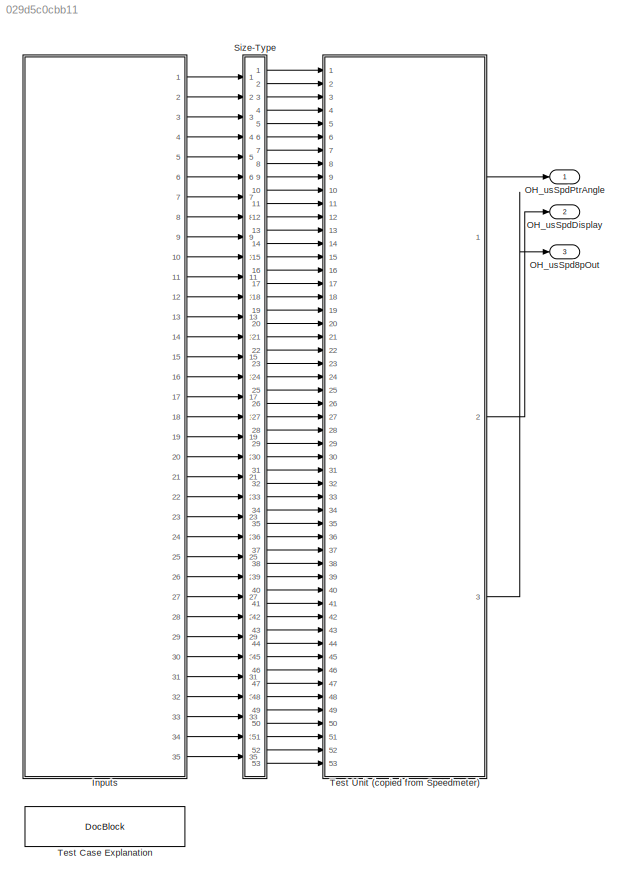
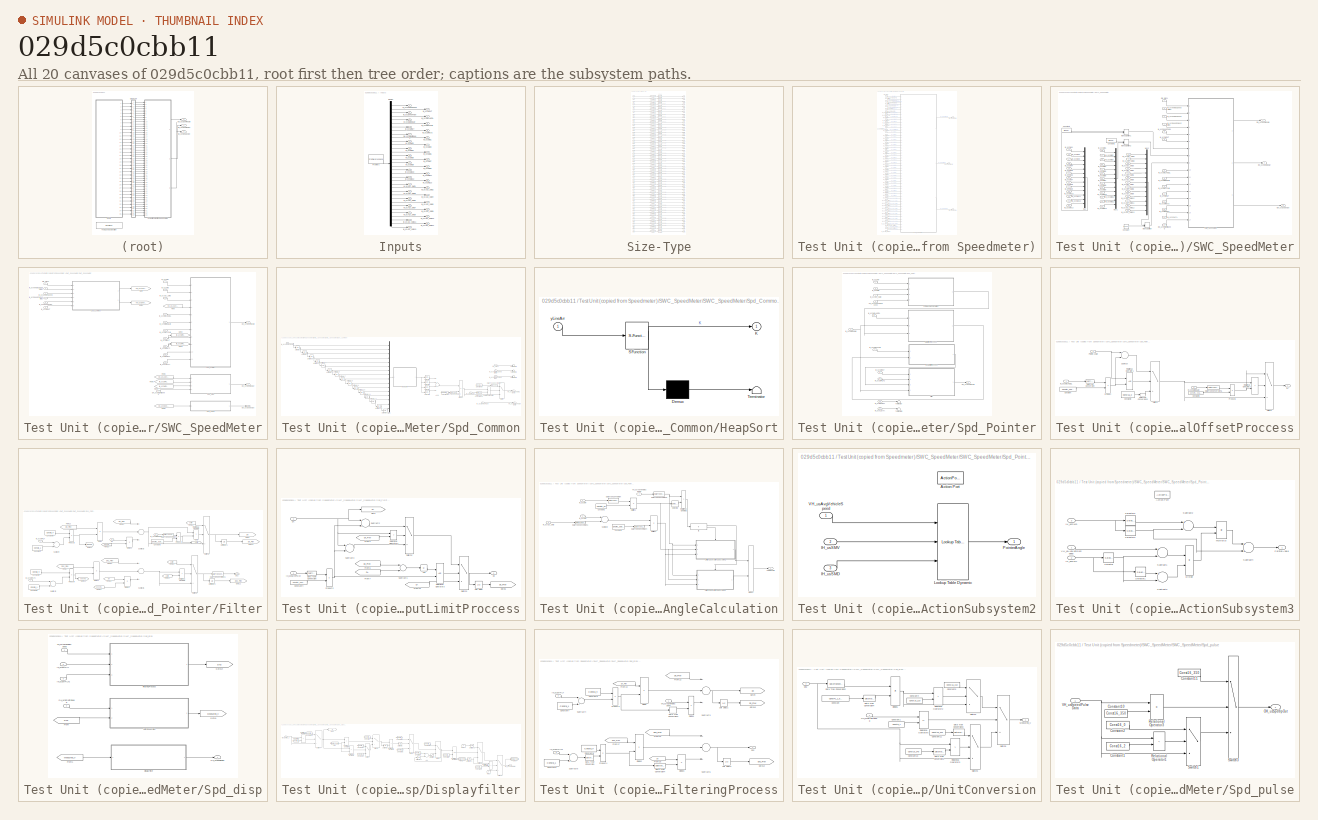
[diagram: thumbnail index - all 20 canvases of the model, root first then tree order]
MODEL slx_029d5c0cbb11
KIND model
CONFIG AbsTol = auto
CONFIG EnableMultiTasking = off
CONFIG FixedStep = 0.01
CONFIG MaxStep = auto
CONFIG MinStep = auto
CONFIG RelTol = 1e-3
CONFIG SampleTimeConstraint = Unconstrained
CONFIG Solver = FixedStepDiscrete
CONFIG SolverName = FixedStepDiscrete
CONFIG StartTime = 0
CONFIG StopTime = 0.58999999999999997
BLOCK [SubSystem] Inputs
  ClipboardFcn = sigbuilder_block('clipboard');
  CloseFcn = sigbuilder_block('close');
  ContinueFcn = sigbuilder_block('continue');
  CopyFcn = sigbuilder_block('copy');
  DeleteFcn = sigbuilder_block('delete');
  LoadFcn = sigbuilder_block('load',[50 50 520 400 ]);
  MaskHideContents = on
  ModelCloseFcn = sigbuilder_block('modelClose');
  NameChangeFcn = sigbuilder_block('namechange');
  OpenFcn = sigbuilder_block('open');
  PauseFcn = sigbuilder_block('pause');
  Ports = [0, 35]
  PreSaveFcn = sigbuilder_block('preSave');
  RequestExecContextInheritance = off
  StartFcn = sigbuilder_block('start');
  StopFcn = sigbuilder_block('stop');
  Tag = STV Subsys
BLOCK [Demux] Inputs/Demux
  Outputs = 35
  Ports = [1, 35]
  Tag = STV Demux
BLOCK [FromWorkspace] Inputs/FromWs
  SampleTime = 0
  Tag = STV FromWs
  VariableName = tuvar
BLOCK [Outport] Inputs/IH_ucADJ_SMD1
  IconDisplay = Port number
  Port = 23
  Tag = STV Outport
BLOCK [Outport] Inputs/IH_ucADJ_SMD10
  IconDisplay = Port number
  Port = 32
  Tag = STV Outport
BLOCK [Outport] Inputs/IH_ucADJ_SMD11
  IconDisplay = Port number
  Port = 33
  Tag = STV Outport
BLOCK [Outport] Inputs/IH_ucADJ_SMD12
  IconDisplay = Port number
  Port = 34
  Tag = STV Outport
BLOCK [Outport] Inputs/IH_ucADJ_SMD13
  IconDisplay = Port number
  Port = 35
  Tag = STV Outport
BLOCK [Outport] Inputs/IH_ucADJ_SMD2
  IconDisplay = Port number
  Port = 24
  Tag = STV Outport
BLOCK [Outport] Inputs/IH_ucADJ_SMD3
  IconDisplay = Port number
  Port = 25
  Tag = STV Outport
BLOCK [Outport] Inputs/IH_ucADJ_SMD4
  IconDisplay = Port number
  Port = 26
  Tag = STV Outport
BLOCK [Outport] Inputs/IH_ucADJ_SMD5
  IconDisplay = Port number
  Port = 27
  Tag = STV Outport
BLOCK [Outport] Inputs/IH_ucADJ_SMD6
  IconDisplay = Port number
  Port = 28
  Tag = STV Outport
BLOCK [Outport] Inputs/IH_ucADJ_SMD7
  IconDisplay = Port number
  Port = 29
  Tag = STV Outport
BLOCK [Outport] Inputs/IH_ucADJ_SMD8
  IconDisplay = Port number
  Port = 30
  Tag = STV Outport
BLOCK [Outport] Inputs/IH_ucADJ_SMD9
  IconDisplay = Port number
  Port = 31
  Tag = STV Outport
BLOCK [Outport] Inputs/IH_ucSMCANCEL
  IconDisplay = Port number
  Port = 4
  Tag = STV Outport
BLOCK [Outport] Inputs/IH_ucSMCUT
  IconDisplay = Port number
  Port = 2
  Tag = STV Outport
BLOCK [Outport] Inputs/IH_ucSMFILT
  IconDisplay = Port number
  Port = 7
  Tag = STV Outport
BLOCK [Outport] Inputs/IH_ucSMFILT2
  IconDisplay = Port number
  Port = 8
  Tag = STV Outport
BLOCK [Outport] Inputs/IH_usSMD1
  IconDisplay = Port number
  Port = 10
  Tag = STV Outport
BLOCK [Outport] Inputs/IH_usSMD10
  IconDisplay = Port number
  Port = 19
  Tag = STV Outport
BLOCK [Outport] Inputs/IH_usSMD11
  IconDisplay = Port number
  Port = 20
  Tag = STV Outport
BLOCK [Outport] Inputs/IH_usSMD12
  IconDisplay = Port number
  Port = 21
  Tag = STV Outport
BLOCK [Outport] Inputs/IH_usSMD13
  IconDisplay = Port number
  Port = 22
  Tag = STV Outport
BLOCK [Outport] Inputs/IH_usSMD2
  IconDisplay = Port number
  Port = 11
  Tag = STV Outport
BLOCK [Outport] Inputs/IH_usSMD3
  IconDisplay = Port number
  Port = 12
  Tag = STV Outport
BLOCK [Outport] Inputs/IH_usSMD4
  IconDisplay = Port number
  Port = 13
  Tag = STV Outport
BLOCK [Outport] Inputs/IH_usSMD5
  IconDisplay = Port number
  Port = 14
  Tag = STV Outport
BLOCK [Outport] Inputs/IH_usSMD6
  IconDisplay = Port number
  Port = 15
  Tag = STV Outport
BLOCK [Outport] Inputs/IH_usSMD7
  IconDisplay = Port number
  Port = 16
  Tag = STV Outport
BLOCK [Outport] Inputs/IH_usSMD8
  IconDisplay = Port number
  Port = 17
  Tag = STV Outport
BLOCK [Outport] Inputs/IH_usSMD9
  IconDisplay = Port number
  Port = 18
  Tag = STV Outport
BLOCK [Outport] Inputs/IH_usSMDEGLIM
  IconDisplay = Port number
  Port = 5
  Tag = STV Outport
BLOCK [Outport] Inputs/IH_usSMSTPLIM
  IconDisplay = Port number
  Port = 6
  Tag = STV Outport
BLOCK [Outport] Inputs/IH_usSpeedPulse
  IconDisplay = Port number
  Port = 3
  Tag = STV Outport
BLOCK [Outport] Inputs/IH_usVehicleSpeed
  IconDisplay = Port number
  Tag = STV Outport
BLOCK [Outport] Inputs/OH_ucSetUnitSpeed
  IconDisplay = Port number
  Port = 9
  Tag = STV Outport
BLOCK [Outport] OH_usSpd8pOut
  IconDisplay = Port number
  OutDataTypeStr = fixdt(0,16,0.01,0)
  OutMax = 655.34
  OutMin = 0
  Port = 3
  SampleTime = STEP_TIME
  VectorParamsAs1DForOutWhenUnconnected = off
BLOCK [Outport] OH_usSpdDisplay
  IconDisplay = Port number
  OutDataTypeStr = fixdt(0,16,1,0)
  Port = 2
  SampleTime = STEP_TIME
  VectorParamsAs1DForOutWhenUnconnected = off
BLOCK [Outport] OH_usSpdPtrAngle
  IconDisplay = Port number
  OutDataTypeStr = fixdt(0,16,0.0879,0)
  OutMax = 4095
  OutMin = 0
  SampleTime = STEP_TIME
  VectorParamsAs1DForOutWhenUnconnected = off
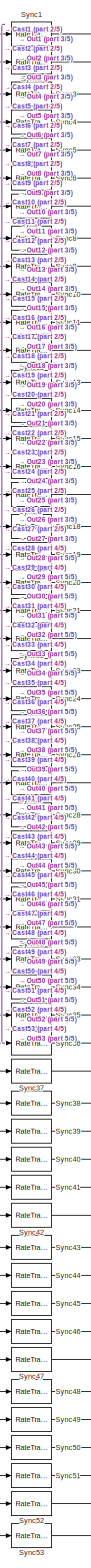
[diagram: Size-Type - part 1/5, center side, full height]
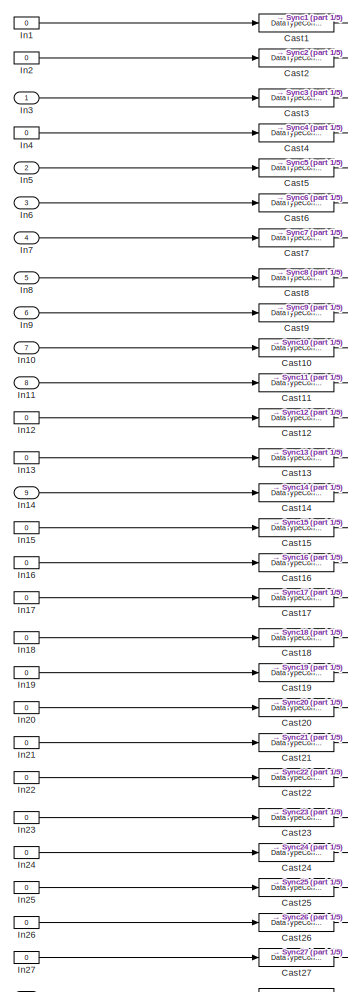
[diagram: Size-Type - part 2/5, top left region]
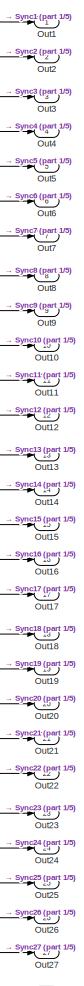
[diagram: Size-Type - part 3/5, top right region]
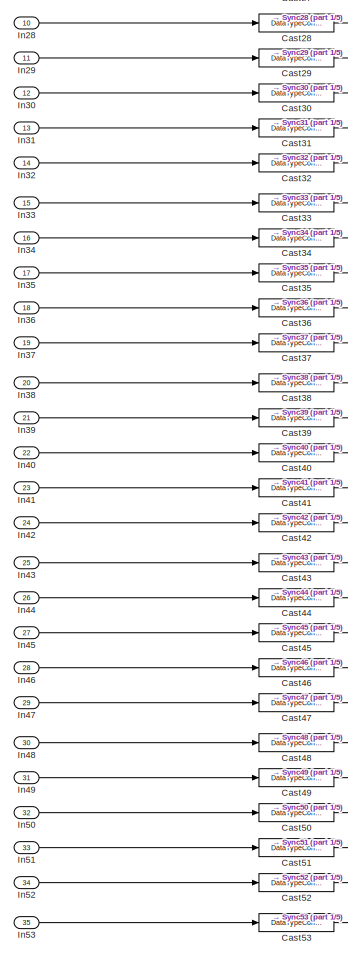
[diagram: Size-Type - part 4/5, bottom left region]
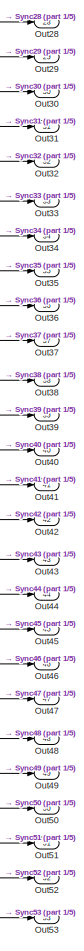
[diagram: Size-Type - part 5/5, bottom right region]
BLOCK [SubSystem] Size-Type
  Ports = [35, 53]
  RequestExecContextInheritance = off
BLOCK [DataTypeConversion] Size-Type/Cast1
  OutDataTypeStr = single
  RndMeth = Nearest
BLOCK [DataTypeConversion] Size-Type/Cast10
  OutDataTypeStr = single
  RndMeth = Nearest
BLOCK [DataTypeConversion] Size-Type/Cast11
  OutDataTypeStr = single
  RndMeth = Nearest
BLOCK [DataTypeConversion] Size-Type/Cast12
  OutDataTypeStr = single
  RndMeth = Nearest
BLOCK [DataTypeConversion] Size-Type/Cast13
  OutDataTypeStr = single
  RndMeth = Nearest
BLOCK [DataTypeConversion] Size-Type/Cast14
  OutDataTypeStr = single
  RndMeth = Nearest
BLOCK [DataTypeConversion] Size-Type/Cast15
  OutDataTypeStr = single
  RndMeth = Nearest
BLOCK [DataTypeConversion] Size-Type/Cast16
  OutDataTypeStr = single
  RndMeth = Nearest
BLOCK [DataTypeConversion] Size-Type/Cast17
  OutDataTypeStr = single
  RndMeth = Nearest
BLOCK [DataTypeConversion] Size-Type/Cast18
  OutDataTypeStr = single
  RndMeth = Nearest
BLOCK [DataTypeConversion] Size-Type/Cast19
  OutDataTypeStr = single
  RndMeth = Nearest
BLOCK [DataTypeConversion] Size-Type/Cast2
  OutDataTypeStr = single
  RndMeth = Nearest
BLOCK [DataTypeConversion] Size-Type/Cast20
  OutDataTypeStr = single
  RndMeth = Nearest
BLOCK [DataTypeConversion] Size-Type/Cast21
  OutDataTypeStr = single
  RndMeth = Nearest
BLOCK [DataTypeConversion] Size-Type/Cast22
  OutDataTypeStr = single
  RndMeth = Nearest
BLOCK [DataTypeConversion] Size-Type/Cast23
  OutDataTypeStr = single
  RndMeth = Nearest
BLOCK [DataTypeConversion] Size-Type/Cast24
  OutDataTypeStr = single
  RndMeth = Nearest
BLOCK [DataTypeConversion] Size-Type/Cast25
  OutDataTypeStr = single
  RndMeth = Nearest
BLOCK [DataTypeConversion] Size-Type/Cast26
  OutDataTypeStr = single
  RndMeth = Nearest
BLOCK [DataTypeConversion] Size-Type/Cast27
  OutDataTypeStr = single
  RndMeth = Nearest
BLOCK [DataTypeConversion] Size-Type/Cast28
  OutDataTypeStr = single
  RndMeth = Nearest
BLOCK [DataTypeConversion] Size-Type/Cast29
  OutDataTypeStr = single
  RndMeth = Nearest
BLOCK [DataTypeConversion] Size-Type/Cast3
  OutDataTypeStr = single
  RndMeth = Nearest
BLOCK [DataTypeConversion] Size-Type/Cast30
  OutDataTypeStr = single
  RndMeth = Nearest
BLOCK [DataTypeConversion] Size-Type/Cast31
  OutDataTypeStr = single
  RndMeth = Nearest
BLOCK [DataTypeConversion] Size-Type/Cast32
  OutDataTypeStr = single
  RndMeth = Nearest
BLOCK [DataTypeConversion] Size-Type/Cast33
  OutDataTypeStr = single
  RndMeth = Nearest
BLOCK [DataTypeConversion] Size-Type/Cast34
  OutDataTypeStr = single
  RndMeth = Nearest
BLOCK [DataTypeConversion] Size-Type/Cast35
  OutDataTypeStr = single
  RndMeth = Nearest
BLOCK [DataTypeConversion] Size-Type/Cast36
  OutDataTypeStr = single
  RndMeth = Nearest
BLOCK [DataTypeConversion] Size-Type/Cast37
  OutDataTypeStr = single
  RndMeth = Nearest
BLOCK [DataTypeConversion] Size-Type/Cast38
  OutDataTypeStr = single
  RndMeth = Nearest
BLOCK [DataTypeConversion] Size-Type/Cast39
  OutDataTypeStr = single
  RndMeth = Nearest
BLOCK [DataTypeConversion] Size-Type/Cast4
  OutDataTypeStr = single
  RndMeth = Nearest
BLOCK [DataTypeConversion] Size-Type/Cast40
  OutDataTypeStr = single
  RndMeth = Nearest
BLOCK [DataTypeConversion] Size-Type/Cast41
  OutDataTypeStr = single
  RndMeth = Nearest
BLOCK [DataTypeConversion] Size-Type/Cast42
  OutDataTypeStr = single
  RndMeth = Nearest
BLOCK [DataTypeConversion] Size-Type/Cast43
  OutDataTypeStr = single
  RndMeth = Nearest
BLOCK [DataTypeConversion] Size-Type/Cast44
  OutDataTypeStr = single
  RndMeth = Nearest
BLOCK [DataTypeConversion] Size-Type/Cast45
  OutDataTypeStr = single
  RndMeth = Nearest
BLOCK [DataTypeConversion] Size-Type/Cast46
  OutDataTypeStr = single
  RndMeth = Nearest
BLOCK [DataTypeConversion] Size-Type/Cast47
  OutDataTypeStr = single
  RndMeth = Nearest
BLOCK [DataTypeConversion] Size-Type/Cast48
  OutDataTypeStr = single
  RndMeth = Nearest
BLOCK [DataTypeConversion] Size-Type/Cast49
  OutDataTypeStr = single
  RndMeth = Nearest
BLOCK [DataTypeConversion] Size-Type/Cast5
  OutDataTypeStr = single
  RndMeth = Nearest
BLOCK [DataTypeConversion] Size-Type/Cast50
  OutDataTypeStr = single
  RndMeth = Nearest
BLOCK [DataTypeConversion] Size-Type/Cast51
  OutDataTypeStr = single
  RndMeth = Nearest
BLOCK [DataTypeConversion] Size-Type/Cast52
  OutDataTypeStr = single
  RndMeth = Nearest
BLOCK [DataTypeConversion] Size-Type/Cast53
  OutDataTypeStr = single
  RndMeth = Nearest
BLOCK [DataTypeConversion] Size-Type/Cast6
  OutDataTypeStr = single
  RndMeth = Nearest
BLOCK [DataTypeConversion] Size-Type/Cast7
  OutDataTypeStr = single
  RndMeth = Nearest
BLOCK [DataTypeConversion] Size-Type/Cast8
  OutDataTypeStr = single
  RndMeth = Nearest
BLOCK [DataTypeConversion] Size-Type/Cast9
  OutDataTypeStr = single
  RndMeth = Nearest
BLOCK [Constant] Size-Type/In1
  OutDataTypeStr = double
  Value = 0
BLOCK [Inport] Size-Type/In10
  IconDisplay = Port number
  Port = 7
BLOCK [Inport] Size-Type/In11
  IconDisplay = Port number
  Port = 8
BLOCK [Constant] Size-Type/In12
  OutDataTypeStr = double
  Value = 0
BLOCK [Constant] Size-Type/In13
  OutDataTypeStr = double
  Value = 0
BLOCK [Inport] Size-Type/In14
  IconDisplay = Port number
  Port = 9
BLOCK [Constant] Size-Type/In15
  OutDataTypeStr = double
  Value = 0
BLOCK [Constant] Size-Type/In16
  OutDataTypeStr = double
  Value = 0
BLOCK [Constant] Size-Type/In17
  OutDataTypeStr = double
  Value = 0
BLOCK [Constant] Size-Type/In18
  OutDataTypeStr = double
  Value = 0
BLOCK [Constant] Size-Type/In19
  OutDataTypeStr = double
  Value = 0
BLOCK [Constant] Size-Type/In2
  OutDataTypeStr = double
  Value = 0
BLOCK [Constant] Size-Type/In20
  OutDataTypeStr = double
  Value = 0
BLOCK [Constant] Size-Type/In21
  OutDataTypeStr = double
  Value = 0
BLOCK [Constant] Size-Type/In22
  OutDataTypeStr = double
  Value = 0
BLOCK [Constant] Size-Type/In23
  OutDataTypeStr = double
  Value = 0
BLOCK [Constant] Size-Type/In24
  OutDataTypeStr = double
  Value = 0
BLOCK [Constant] Size-Type/In25
  OutDataTypeStr = double
  Value = 0
BLOCK [Constant] Size-Type/In26
  OutDataTypeStr = double
  Value = 0
BLOCK [Constant] Size-Type/In27
  OutDataTypeStr = double
  Value = 0
BLOCK [Inport] Size-Type/In28
  IconDisplay = Port number
  Port = 10
BLOCK [Inport] Size-Type/In29
  IconDisplay = Port number
  Port = 11
BLOCK [Inport] Size-Type/In3
  IconDisplay = Port number
BLOCK [Inport] Size-Type/In30
  IconDisplay = Port number
  Port = 12
BLOCK [Inport] Size-Type/In31
  IconDisplay = Port number
  Port = 13
BLOCK [Inport] Size-Type/In32
  IconDisplay = Port number
  Port = 14
BLOCK [Inport] Size-Type/In33
  IconDisplay = Port number
  Port = 15
BLOCK [Inport] Size-Type/In34
  IconDisplay = Port number
  Port = 16
BLOCK [Inport] Size-Type/In35
  IconDisplay = Port number
  Port = 17
BLOCK [Inport] Size-Type/In36
  IconDisplay = Port number
  Port = 18
BLOCK [Inport] Size-Type/In37
  IconDisplay = Port number
  Port = 19
BLOCK [Inport] Size-Type/In38
  IconDisplay = Port number
  Port = 20
BLOCK [Inport] Size-Type/In39
  IconDisplay = Port number
  Port = 21
BLOCK [Constant] Size-Type/In4
  OutDataTypeStr = double
  Value = 0
BLOCK [Inport] Size-Type/In40
  IconDisplay = Port number
  Port = 22
BLOCK [Inport] Size-Type/In41
  IconDisplay = Port number
  Port = 23
BLOCK [Inport] Size-Type/In42
  IconDisplay = Port number
  Port = 24
BLOCK [Inport] Size-Type/In43
  IconDisplay = Port number
  Port = 25
BLOCK [Inport] Size-Type/In44
  IconDisplay = Port number
  Port = 26
BLOCK [Inport] Size-Type/In45
  IconDisplay = Port number
  Port = 27
BLOCK [Inport] Size-Type/In46
  IconDisplay = Port number
  Port = 28
BLOCK [Inport] Size-Type/In47
  IconDisplay = Port number
  Port = 29
BLOCK [Inport] Size-Type/In48
  IconDisplay = Port number
  Port = 30
BLOCK [Inport] Size-Type/In49
  IconDisplay = Port number
  Port = 31
BLOCK [Inport] Size-Type/In5
  IconDisplay = Port number
  Port = 2
BLOCK [Inport] Size-Type/In50
  IconDisplay = Port number
  Port = 32
BLOCK [Inport] Size-Type/In51
  IconDisplay = Port number
  Port = 33
BLOCK [Inport] Size-Type/In52
  IconDisplay = Port number
  Port = 34
BLOCK [Inport] Size-Type/In53
  IconDisplay = Port number
  Port = 35
BLOCK [Inport] Size-Type/In6
  IconDisplay = Port number
  Port = 3
BLOCK [Inport] Size-Type/In7
  IconDisplay = Port number
  Port = 4
BLOCK [Inport] Size-Type/In8
  IconDisplay = Port number
  Port = 5
BLOCK [Inport] Size-Type/In9
  IconDisplay = Port number
  Port = 6
BLOCK [Outport] Size-Type/Out1
  IconDisplay = Port number
BLOCK [Outport] Size-Type/Out10
  IconDisplay = Port number
  Port = 10
BLOCK [Outport] Size-Type/Out11
  IconDisplay = Port number
  Port = 11
BLOCK [Outport] Size-Type/Out12
  IconDisplay = Port number
  Port = 12
BLOCK [Outport] Size-Type/Out13
  IconDisplay = Port number
  Port = 13
BLOCK [Outport] Size-Type/Out14
  IconDisplay = Port number
  Port = 14
BLOCK [Outport] Size-Type/Out15
  IconDisplay = Port number
  Port = 15
BLOCK [Outport] Size-Type/Out16
  IconDisplay = Port number
  Port = 16
BLOCK [Outport] Size-Type/Out17
  IconDisplay = Port number
  Port = 17
BLOCK [Outport] Size-Type/Out18
  IconDisplay = Port number
  Port = 18
BLOCK [Outport] Size-Type/Out19
  IconDisplay = Port number
  Port = 19
BLOCK [Outport] Size-Type/Out2
  IconDisplay = Port number
  Port = 2
BLOCK [Outport] Size-Type/Out20
  IconDisplay = Port number
  Port = 20
BLOCK [Outport] Size-Type/Out21
  IconDisplay = Port number
  Port = 21
BLOCK [Outport] Size-Type/Out22
  IconDisplay = Port number
  Port = 22
BLOCK [Outport] Size-Type/Out23
  IconDisplay = Port number
  Port = 23
BLOCK [Outport] Size-Type/Out24
  IconDisplay = Port number
  Port = 24
BLOCK [Outport] Size-Type/Out25
  IconDisplay = Port number
  Port = 25
BLOCK [Outport] Size-Type/Out26
  IconDisplay = Port number
  Port = 26
BLOCK [Outport] Size-Type/Out27
  IconDisplay = Port number
  Port = 27
BLOCK [Outport] Size-Type/Out28
  IconDisplay = Port number
  Port = 28
BLOCK [Outport] Size-Type/Out29
  IconDisplay = Port number
  Port = 29
BLOCK [Outport] Size-Type/Out3
  IconDisplay = Port number
  Port = 3
BLOCK [Outport] Size-Type/Out30
  IconDisplay = Port number
  Port = 30
BLOCK [Outport] Size-Type/Out31
  IconDisplay = Port number
  Port = 31
BLOCK [Outport] Size-Type/Out32
  IconDisplay = Port number
  Port = 32
BLOCK [Outport] Size-Type/Out33
  IconDisplay = Port number
  Port = 33
BLOCK [Outport] Size-Type/Out34
  IconDisplay = Port number
  Port = 34
BLOCK [Outport] Size-Type/Out35
  IconDisplay = Port number
  Port = 35
BLOCK [Outport] Size-Type/Out36
  IconDisplay = Port number
  Port = 36
BLOCK [Outport] Size-Type/Out37
  IconDisplay = Port number
  Port = 37
BLOCK [Outport] Size-Type/Out38
  IconDisplay = Port number
  Port = 38
BLOCK [Outport] Size-Type/Out39
  IconDisplay = Port number
  Port = 39
BLOCK [Outport] Size-Type/Out4
  IconDisplay = Port number
  Port = 4
BLOCK [Outport] Size-Type/Out40
  IconDisplay = Port number
  Port = 40
BLOCK [Outport] Size-Type/Out41
  IconDisplay = Port number
  Port = 41
BLOCK [Outport] Size-Type/Out42
  IconDisplay = Port number
  Port = 42
BLOCK [Outport] Size-Type/Out43
  IconDisplay = Port number
  Port = 43
BLOCK [Outport] Size-Type/Out44
  IconDisplay = Port number
  Port = 44
BLOCK [Outport] Size-Type/Out45
  IconDisplay = Port number
  Port = 45
BLOCK [Outport] Size-Type/Out46
  IconDisplay = Port number
  Port = 46
BLOCK [Outport] Size-Type/Out47
  IconDisplay = Port number
  Port = 47
BLOCK [Outport] Size-Type/Out48
  IconDisplay = Port number
  Port = 48
BLOCK [Outport] Size-Type/Out49
  IconDisplay = Port number
  Port = 49
BLOCK [Outport] Size-Type/Out5
  IconDisplay = Port number
  Port = 5
BLOCK [Outport] Size-Type/Out50
  IconDisplay = Port number
  Port = 50
BLOCK [Outport] Size-Type/Out51
  IconDisplay = Port number
  Port = 51
BLOCK [Outport] Size-Type/Out52
  IconDisplay = Port number
  Port = 52
BLOCK [Outport] Size-Type/Out53
  IconDisplay = Port number
  Port = 53
BLOCK [Outport] Size-Type/Out6
  IconDisplay = Port number
  Port = 6
BLOCK [Outport] Size-Type/Out7
  IconDisplay = Port number
  Port = 7
BLOCK [Outport] Size-Type/Out8
  IconDisplay = Port number
  Port = 8
BLOCK [Outport] Size-Type/Out9
  IconDisplay = Port number
  Port = 9
BLOCK [RateTransition] Size-Type/Sync1
  OutPortSampleTime = [0.01,0]
BLOCK [RateTransition] Size-Type/Sync10
  OutPortSampleTime = [0.01,0]
BLOCK [RateTransition] Size-Type/Sync11
  OutPortSampleTime = [0.01,0]
BLOCK [RateTransition] Size-Type/Sync12
  OutPortSampleTime = [0.01,0]
BLOCK [RateTransition] Size-Type/Sync13
  OutPortSampleTime = [0.01,0]
BLOCK [RateTransition] Size-Type/Sync14
  OutPortSampleTime = [0.01,0]
BLOCK [RateTransition] Size-Type/Sync15
  OutPortSampleTime = [0.01,0]
BLOCK [RateTransition] Size-Type/Sync16
  OutPortSampleTime = [0.01,0]
BLOCK [RateTransition] Size-Type/Sync17
  OutPortSampleTime = [0.01,0]
BLOCK [RateTransition] Size-Type/Sync18
  OutPortSampleTime = [0.01,0]
BLOCK [RateTransition] Size-Type/Sync19
  OutPortSampleTime = [0.01,0]
BLOCK [RateTransition] Size-Type/Sync2
  OutPortSampleTime = [0.01,0]
BLOCK [RateTransition] Size-Type/Sync20
  OutPortSampleTime = [0.01,0]
BLOCK [RateTransition] Size-Type/Sync21
  OutPortSampleTime = [0.01,0]
BLOCK [RateTransition] Size-Type/Sync22
  OutPortSampleTime = [0.01,0]
BLOCK [RateTransition] Size-Type/Sync23
  OutPortSampleTime = [0.01,0]
BLOCK [RateTransition] Size-Type/Sync24
  OutPortSampleTime = [0.01,0]
BLOCK [RateTransition] Size-Type/Sync25
  OutPortSampleTime = [0.01,0]
BLOCK [RateTransition] Size-Type/Sync26
  OutPortSampleTime = [0.01,0]
BLOCK [RateTransition] Size-Type/Sync27
  OutPortSampleTime = [0.01,0]
BLOCK [RateTransition] Size-Type/Sync28
  OutPortSampleTime = [0.01,0]
BLOCK [RateTransition] Size-Type/Sync29
  OutPortSampleTime = [0.01,0]
BLOCK [RateTransition] Size-Type/Sync3
  OutPortSampleTime = [0.01,0]
BLOCK [RateTransition] Size-Type/Sync30
  OutPortSampleTime = [0.01,0]
BLOCK [RateTransition] Size-Type/Sync31
  OutPortSampleTime = [0.01,0]
BLOCK [RateTransition] Size-Type/Sync32
  OutPortSampleTime = [0.01,0]
BLOCK [RateTransition] Size-Type/Sync33
  OutPortSampleTime = [0.01,0]
BLOCK [RateTransition] Size-Type/Sync34
  OutPortSampleTime = [0.01,0]
BLOCK [RateTransition] Size-Type/Sync35
  OutPortSampleTime = [0.01,0]
BLOCK [RateTransition] Size-Type/Sync36
  OutPortSampleTime = [0.01,0]
BLOCK [RateTransition] Size-Type/Sync37
  OutPortSampleTime = [0.01,0]
BLOCK [RateTransition] Size-Type/Sync38
  OutPortSampleTime = [0.01,0]
BLOCK [RateTransition] Size-Type/Sync39
  OutPortSampleTime = [0.01,0]
BLOCK [RateTransition] Size-Type/Sync4
  OutPortSampleTime = [0.01,0]
BLOCK [RateTransition] Size-Type/Sync40
  OutPortSampleTime = [0.01,0]
BLOCK [RateTransition] Size-Type/Sync41
  OutPortSampleTime = [0.01,0]
BLOCK [RateTransition] Size-Type/Sync42
  OutPortSampleTime = [0.01,0]
BLOCK [RateTransition] Size-Type/Sync43
  OutPortSampleTime = [0.01,0]
BLOCK [RateTransition] Size-Type/Sync44
  OutPortSampleTime = [0.01,0]
BLOCK [RateTransition] Size-Type/Sync45
  OutPortSampleTime = [0.01,0]
BLOCK [RateTransition] Size-Type/Sync46
  OutPortSampleTime = [0.01,0]
BLOCK [RateTransition] Size-Type/Sync47
  OutPortSampleTime = [0.01,0]
BLOCK [RateTransition] Size-Type/Sync48
  OutPortSampleTime = [0.01,0]
BLOCK [RateTransition] Size-Type/Sync49
  OutPortSampleTime = [0.01,0]
BLOCK [RateTransition] Size-Type/Sync5
  OutPortSampleTime = [0.01,0]
BLOCK [RateTransition] Size-Type/Sync50
  OutPortSampleTime = [0.01,0]
BLOCK [RateTransition] Size-Type/Sync51
  OutPortSampleTime = [0.01,0]
BLOCK [RateTransition] Size-Type/Sync52
  OutPortSampleTime = [0.01,0]
BLOCK [RateTransition] Size-Type/Sync53
  OutPortSampleTime = [0.01,0]
BLOCK [RateTransition] Size-Type/Sync6
  OutPortSampleTime = [0.01,0]
BLOCK [RateTransition] Size-Type/Sync7
  OutPortSampleTime = [0.01,0]
BLOCK [RateTransition] Size-Type/Sync8
  OutPortSampleTime = [0.01,0]
BLOCK [RateTransition] Size-Type/Sync9
  OutPortSampleTime = [0.01,0]
BLOCK [Reference] Test Case Explanation  REF=simulink/Model-Wide
Utilities/DocBlock
  Ports = []
  SourceBlock = simulink/Model-Wide\nUtilities/DocBlock
  SourceProductBaseCode = SL
  SourceProductName = Simulink
  SourceType = DocBlock
  UserDataPersistent = on
BLOCK [SubSystem] Test Unit (copied from Speedmeter)
  Permissions = ReadOnly
  Ports = [53, 3]
  RequestExecContextInheritance = off
BLOCK [Inport] Test Unit (copied from Speedmeter)/GB_bIgn1
  IconDisplay = Port number
  OutDataTypeStr = uint8
  OutMax = 1
  OutMin = 0
  SampleTime = STEP_TIME
BLOCK [Inport] Test Unit (copied from Speedmeter)/IH_uc01DATA
  IconDisplay = Port number
  OutDataTypeStr = fixdt(0,8,1,0)
  OutMax = 1
  OutMin = 0
  Port = 13
  SampleTime = STEP_TIME
BLOCK [Inport] Test Unit (copied from Speedmeter)/IH_ucADJ_SMD1
  IconDisplay = Port number
  OutDataTypeStr = fixdt(0,8,0.0879,0)
  OutMax = 22.4145
  OutMin = 0
  Port = 41
  SampleTime = STEP_TIME
BLOCK [Inport] Test Unit (copied from Speedmeter)/IH_ucADJ_SMD10
  IconDisplay = Port number
  OutDataTypeStr = fixdt(0,8,0.0879,0)
  OutMax = 22.4145
  OutMin = 0
  Port = 50
  SampleTime = STEP_TIME
BLOCK [Inport] Test Unit (copied from Speedmeter)/IH_ucADJ_SMD11
  IconDisplay = Port number
  OutDataTypeStr = fixdt(0,8,0.0879,0)
  OutMax = 22.4145
  OutMin = 0
  Port = 51
  SampleTime = STEP_TIME
BLOCK [Inport] Test Unit (copied from Speedmeter)/IH_ucADJ_SMD12
  IconDisplay = Port number
  OutDataTypeStr = fixdt(0,8,0.0879,0)
  OutMax = 22.4145
  OutMin = 0
  Port = 52
  SampleTime = STEP_TIME
BLOCK [Inport] Test Unit (copied from Speedmeter)/IH_ucADJ_SMD13
  IconDisplay = Port number
  OutDataTypeStr = fixdt(0,8,0.0879,0)
  OutMax = 22.4145
  OutMin = 0
  Port = 53
  SampleTime = STEP_TIME
BLOCK [Inport] Test Unit (copied from Speedmeter)/IH_ucADJ_SMD2
  IconDisplay = Port number
  OutDataTypeStr = fixdt(0,8,0.0879,0)
  OutMax = 22.4145
  OutMin = 0
  Port = 42
  SampleTime = STEP_TIME
BLOCK [Inport] Test Unit (copied from Speedmeter)/IH_ucADJ_SMD3
  IconDisplay = Port number
  OutDataTypeStr = fixdt(0,8,0.0879,0)
  OutMax = 22.4145
  OutMin = 0
  Port = 43
  SampleTime = STEP_TIME
BLOCK [Inport] Test Unit (copied from Speedmeter)/IH_ucADJ_SMD4
  IconDisplay = Port number
  OutDataTypeStr = fixdt(0,8,0.0879,0)
  OutMax = 22.4145
  OutMin = 0
  Port = 44
  SampleTime = STEP_TIME
BLOCK [Inport] Test Unit (copied from Speedmeter)/IH_ucADJ_SMD5
  IconDisplay = Port number
  OutDataTypeStr = fixdt(0,8,0.0879,0)
  OutMax = 22.4145
  OutMin = 0
  Port = 45
  SampleTime = STEP_TIME
BLOCK [Inport] Test Unit (copied from Speedmeter)/IH_ucADJ_SMD6
  IconDisplay = Port number
  OutDataTypeStr = fixdt(0,8,0.0879,0)
  OutMax = 22.4145
  OutMin = 0
  Port = 46
  SampleTime = STEP_TIME
BLOCK [Inport] Test Unit (copied from Speedmeter)/IH_ucADJ_SMD7
  IconDisplay = Port number
  OutDataTypeStr = fixdt(0,8,0.0879,0)
  OutMax = 22.4145
  OutMin = 0
  Port = 47
  SampleTime = STEP_TIME
BLOCK [Inport] Test Unit (copied from Speedmeter)/IH_ucADJ_SMD8
  IconDisplay = Port number
  OutDataTypeStr = fixdt(0,8,0.0879,0)
  OutMax = 22.4145
  OutMin = 0
  Port = 48
  SampleTime = STEP_TIME
BLOCK [Inport] Test Unit (copied from Speedmeter)/IH_ucADJ_SMD9
  IconDisplay = Port number
  OutDataTypeStr = fixdt(0,8,0.0879,0)
  OutMax = 22.4145
  OutMin = 0
  Port = 49
  SampleTime = STEP_TIME
BLOCK [Inport] Test Unit (copied from Speedmeter)/IH_ucMOVE01
  IconDisplay = Port number
  OutDataTypeStr = fixdt(0,8,1,0)
  OutMax = 3
  OutMin = 0
  Port = 12
  SampleTime = STEP_TIME
BLOCK [Inport] Test Unit (copied from Speedmeter)/IH_ucSMCANCEL
  IconDisplay = Port number
  OutDataTypeStr = fixdt(0,8,0.3516,0)
  OutMax = 10.8996
  OutMin = 0
  Port = 7
  SampleTime = STEP_TIME
BLOCK [Inport] Test Unit (copied from Speedmeter)/IH_ucSMCUT
  IconDisplay = Port number
  OutDataTypeStr = fixdt(0,8,1,0)
  OutMax = 3
  OutMin = 0
  Port = 5
  SampleTime = STEP_TIME
BLOCK [Inport] Test Unit (copied from Speedmeter)/IH_ucSMFILT
  IconDisplay = Port number
  OutDataTypeStr = fixdt(0,8,1,0)
  OutMax = 7
  OutMin = 0
  Port = 10
  SampleTime = STEP_TIME
BLOCK [Inport] Test Unit (copied from Speedmeter)/IH_ucSMFILT2
  IconDisplay = Port number
  OutDataTypeStr = fixdt(0,8,1,0)
  OutMax = 7
  OutMin = 0
  Port = 11
  SampleTime = STEP_TIME
BLOCK [Inport] Test Unit (copied from Speedmeter)/IH_ucSpeedPulseStatus
  IconDisplay = Port number
  OutDataTypeStr = fixdt(0,8,1,0)
  OutMax = 3
  OutMin = 0
  Port = 4
  SampleTime = STEP_TIME
BLOCK [Inport] Test Unit (copied from Speedmeter)/IH_ucVehicleSpeedStatus
  IconDisplay = Port number
  OutDataTypeStr = fixdt(0,8,1,0)
  OutMax = 3
  OutMin = 0
  Port = 2
  SampleTime = STEP_TIME
BLOCK [Inport] Test Unit (copied from Speedmeter)/IH_usSMD1
  IconDisplay = Port number
  OutDataTypeStr = fixdt(0,16,0.0879,0)
  OutMax = 359.9505
  OutMin = 0
  Port = 28
  SampleTime = STEP_TIME
BLOCK [Inport] Test Unit (copied from Speedmeter)/IH_usSMD10
  IconDisplay = Port number
  OutDataTypeStr = fixdt(0,16,0.0879,0)
  OutMax = 359.9505
  OutMin = 0
  Port = 37
  SampleTime = STEP_TIME
BLOCK [Inport] Test Unit (copied from Speedmeter)/IH_usSMD11
  IconDisplay = Port number
  OutDataTypeStr = fixdt(0,16,0.0879,0)
  OutMax = 359.9505
  OutMin = 0
  Port = 38
  SampleTime = STEP_TIME
BLOCK [Inport] Test Unit (copied from Speedmeter)/IH_usSMD12
  IconDisplay = Port number
  OutDataTypeStr = fixdt(0,16,0.0879,0)
  OutMax = 359.9505
  OutMin = 0
  Port = 39
  SampleTime = STEP_TIME
BLOCK [Inport] Test Unit (copied from Speedmeter)/IH_usSMD13
  IconDisplay = Port number
  OutDataTypeStr = fixdt(0,16,0.0879,0)
  OutMax = 359.9505
  OutMin = 0
  Port = 40
  SampleTime = STEP_TIME
BLOCK [Inport] Test Unit (copied from Speedmeter)/IH_usSMD2
  IconDisplay = Port number
  OutDataTypeStr = fixdt(0,16,0.0879,0)
  OutMax = 359.9505
  OutMin = 0
  Port = 29
  SampleTime = STEP_TIME
BLOCK [Inport] Test Unit (copied from Speedmeter)/IH_usSMD3
  IconDisplay = Port number
  OutDataTypeStr = fixdt(0,16,0.0879,0)
  OutMax = 359.9505
  OutMin = 0
  Port = 30
  SampleTime = STEP_TIME
BLOCK [Inport] Test Unit (copied from Speedmeter)/IH_usSMD4
  IconDisplay = Port number
  OutDataTypeStr = fixdt(0,16,0.0879,0)
  OutMax = 359.9505
  OutMin = 0
  Port = 31
  SampleTime = STEP_TIME
BLOCK [Inport] Test Unit (copied from Speedmeter)/IH_usSMD5
  IconDisplay = Port number
  OutDataTypeStr = fixdt(0,16,0.0879,0)
  OutMax = 359.9505
  OutMin = 0
  Port = 32
  SampleTime = STEP_TIME
BLOCK [Inport] Test Unit (copied from Speedmeter)/IH_usSMD6
  IconDisplay = Port number
  OutDataTypeStr = fixdt(0,16,0.0879,0)
  OutMax = 359.9505
  OutMin = 0
  Port = 33
  SampleTime = STEP_TIME
BLOCK [Inport] Test Unit (copied from Speedmeter)/IH_usSMD7
  IconDisplay = Port number
  OutDataTypeStr = fixdt(0,16,0.0879,0)
  OutMax = 359.9505
  OutMin = 0
  Port = 34
  SampleTime = STEP_TIME
BLOCK [Inport] Test Unit (copied from Speedmeter)/IH_usSMD8
  IconDisplay = Port number
  OutDataTypeStr = fixdt(0,16,0.0879,0)
  OutMax = 359.9505
  OutMin = 0
  Port = 35
  SampleTime = STEP_TIME
BLOCK [Inport] Test Unit (copied from Speedmeter)/IH_usSMD9
  IconDisplay = Port number
  OutDataTypeStr = fixdt(0,16,0.0879,0)
  OutMax = 359.9505
  OutMin = 0
  Port = 36
  SampleTime = STEP_TIME
BLOCK [Inport] Test Unit (copied from Speedmeter)/IH_usSMDEGLIM
  IconDisplay = Port number
  OutDataTypeStr = fixdt(0,16,0.3516,0)
  OutMax = 359.6868
  OutMin = 0
  Port = 8
  SampleTime = STEP_TIME
BLOCK [Inport] Test Unit (copied from Speedmeter)/IH_usSMSTPLIM
  IconDisplay = Port number
  OutDataTypeStr = fixdt(0,16,0.0879,0)
  OutMax = 5.5377
  OutMin = 0
  Port = 9
  SampleTime = STEP_TIME
BLOCK [Inport] Test Unit (copied from Speedmeter)/IH_usSMV1
  IconDisplay = Port number
  OutDataTypeStr = fixdt(0,16,0.1,0)
  OutMax = 409.5
  OutMin = 0
  Port = 15
  SampleTime = STEP_TIME
BLOCK [Inport] Test Unit (copied from Speedmeter)/IH_usSMV10
  IconDisplay = Port number
  OutDataTypeStr = fixdt(0,16,0.1,0)
  OutMax = 409.5
  OutMin = 0
  Port = 24
  SampleTime = STEP_TIME
BLOCK [Inport] Test Unit (copied from Speedmeter)/IH_usSMV11
  IconDisplay = Port number
  OutDataTypeStr = fixdt(0,16,0.1,0)
  OutMax = 409.5
  OutMin = 0
  Port = 25
  SampleTime = STEP_TIME
BLOCK [Inport] Test Unit (copied from Speedmeter)/IH_usSMV12
  IconDisplay = Port number
  OutDataTypeStr = fixdt(0,16,0.1,0)
  OutMax = 409.5
  OutMin = 0
  Port = 26
  SampleTime = STEP_TIME
BLOCK [Inport] Test Unit (copied from Speedmeter)/IH_usSMV13
  IconDisplay = Port number
  OutDataTypeStr = fixdt(0,16,0.1,0)
  OutMax = 409.5
  OutMin = 0
  Port = 27
  SampleTime = STEP_TIME
BLOCK [Inport] Test Unit (copied from Speedmeter)/IH_usSMV2
  IconDisplay = Port number
  OutDataTypeStr = fixdt(0,16,0.1,0)
  OutMax = 409.5
  OutMin = 0
  Port = 16
  SampleTime = STEP_TIME
BLOCK [Inport] Test Unit (copied from Speedmeter)/IH_usSMV3
  IconDisplay = Port number
  OutDataTypeStr = fixdt(0,16,0.1,0)
  OutMax = 409.5
  OutMin = 0
  Port = 17
  SampleTime = STEP_TIME
BLOCK [Inport] Test Unit (copied from Speedmeter)/IH_usSMV4
  IconDisplay = Port number
  OutDataTypeStr = fixdt(0,16,0.1,0)
  OutMax = 409.5
  OutMin = 0
  Port = 18
  SampleTime = STEP_TIME
BLOCK [Inport] Test Unit (copied from Speedmeter)/IH_usSMV5
  IconDisplay = Port number
  OutDataTypeStr = fixdt(0,16,0.1,0)
  OutMax = 409.5
  OutMin = 0
  Port = 19
  SampleTime = STEP_TIME
BLOCK [Inport] Test Unit (copied from Speedmeter)/IH_usSMV6
  IconDisplay = Port number
  OutDataTypeStr = fixdt(0,16,0.1,0)
  OutMax = 409.5
  OutMin = 0
  Port = 20
  SampleTime = STEP_TIME
BLOCK [Inport] Test Unit (copied from Speedmeter)/IH_usSMV7
  IconDisplay = Port number
  OutDataTypeStr = fixdt(0,16,0.1,0)
  OutMax = 409.5
  OutMin = 0
  Port = 21
  SampleTime = STEP_TIME
BLOCK [Inport] Test Unit (copied from Speedmeter)/IH_usSMV8
  IconDisplay = Port number
  OutDataTypeStr = fixdt(0,16,0.1,0)
  OutMax = 409.5
  OutMin = 0
  Port = 22
  SampleTime = STEP_TIME
BLOCK [Inport] Test Unit (copied from Speedmeter)/IH_usSMV9
  IconDisplay = Port number
  OutDataTypeStr = fixdt(0,16,0.1,0)
  OutMax = 409.5
  OutMin = 0
  Port = 23
  SampleTime = STEP_TIME
BLOCK [Inport] Test Unit (copied from Speedmeter)/IH_usSpeedPulse
  IconDisplay = Port number
  OutDataTypeStr = fixdt(0,16,0.01,0)
  OutMax = 655.35
  OutMin = 0
  Port = 6
  SampleTime = STEP_TIME
BLOCK [Inport] Test Unit (copied from Speedmeter)/IH_usVehicleSpeed
  IconDisplay = Port number
  OutDataTypeStr = fixdt(0,16,0.01,0)
  OutMax = 655.35
  OutMin = 0
  Port = 3
  SampleTime = STEP_TIME
BLOCK [Inport] Test Unit (copied from Speedmeter)/OH_ucSetUnitSpeed
  IconDisplay = Port number
  OutDataTypeStr = fixdt(0,8,1,0)
  OutMax = 1
  OutMin = 0
  Port = 14
  SampleTime = STEP_TIME
BLOCK [Outport] Test Unit (copied from Speedmeter)/OH_usSpd8pOut
  IconDisplay = Port number
  OutDataTypeStr = fixdt(0,16,0.01,0)
  OutMax = 655.34
  OutMin = 0
  Port = 3
  SampleTime = STEP_TIME
  VectorParamsAs1DForOutWhenUnconnected = off
BLOCK [Outport] Test Unit (copied from Speedmeter)/OH_usSpdDisplay
  IconDisplay = Port number
  OutDataTypeStr = fixdt(0,16,1,0)
  Port = 2
  SampleTime = STEP_TIME
  VectorParamsAs1DForOutWhenUnconnected = off
BLOCK [Outport] Test Unit (copied from Speedmeter)/OH_usSpdPtrAngle
  IconDisplay = Port number
  OutDataTypeStr = fixdt(0,16,0.0879,0)
  OutMax = 4095
  OutMin = 0
  SampleTime = STEP_TIME
  VectorParamsAs1DForOutWhenUnconnected = off
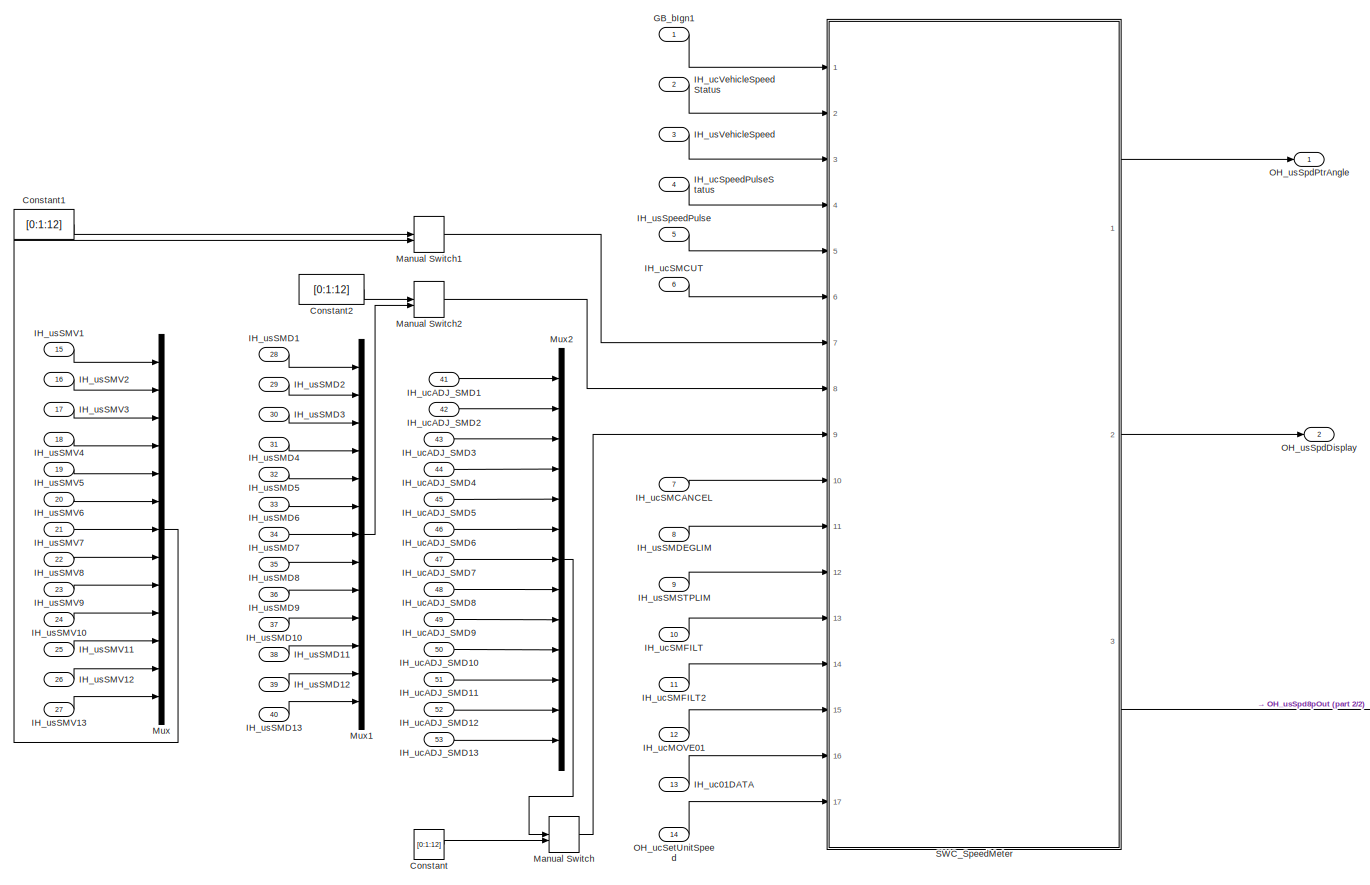
[diagram: Test Unit (copied from Speedmeter)/SWC_SpeedMeter - part 1/2, most of the canvas]
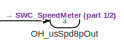
[diagram: Test Unit (copied from Speedmeter)/SWC_SpeedMeter - part 2/2, bottom right region]
BLOCK [SubSystem] Test Unit (copied from Speedmeter)/SWC_SpeedMeter
  LoadFcn = set_param('Speedmeter', 'DataTypeOverride','Single')
  Ports = [53, 3]
  RequestExecContextInheritance = off
  TreatAsAtomicUnit = on
BLOCK [Constant] Test Unit (copied from Speedmeter)/SWC_SpeedMeter/Constant
  OutDataTypeStr = fixdt(0,8,0.0879,0)
  Value = [0:1:12]
BLOCK [Constant] Test Unit (copied from Speedmeter)/SWC_SpeedMeter/Constant1
  OutDataTypeStr = fixdt(0,16,0.1,0)
  Value = [0:1:12]
BLOCK [Constant] Test Unit (copied from Speedmeter)/SWC_SpeedMeter/Constant2
  OutDataTypeStr = fixdt(0,16,0.0879,0)
  Value = [0:1:12]
BLOCK [Inport] Test Unit (copied from Speedmeter)/SWC_SpeedMeter/GB_bIgn1
  IconDisplay = Port number
  SampleTime = STEP_TIME
BLOCK [Inport] Test Unit (copied from Speedmeter)/SWC_SpeedMeter/IH_uc01DATA
  IconDisplay = Port number
  OutDataTypeStr = fixdt(0,8,1,0)
  Port = 13
  SampleTime = STEP_TIME
BLOCK [Inport] Test Unit (copied from Speedmeter)/SWC_SpeedMeter/IH_ucADJ_SMD1
  IconDisplay = Port number
  Port = 41
  SampleTime = STEP_TIME
BLOCK [Inport] Test Unit (copied from Speedmeter)/SWC_SpeedMeter/IH_ucADJ_SMD10
  IconDisplay = Port number
  Port = 50
  SampleTime = STEP_TIME
BLOCK [Inport] Test Unit (copied from Speedmeter)/SWC_SpeedMeter/IH_ucADJ_SMD11
  IconDisplay = Port number
  Port = 51
  SampleTime = STEP_TIME
BLOCK [Inport] Test Unit (copied from Speedmeter)/SWC_SpeedMeter/IH_ucADJ_SMD12
  IconDisplay = Port number
  Port = 52
  SampleTime = STEP_TIME
BLOCK [Inport] Test Unit (copied from Speedmeter)/SWC_SpeedMeter/IH_ucADJ_SMD13
  IconDisplay = Port number
  Port = 53
  SampleTime = STEP_TIME
BLOCK [Inport] Test Unit (copied from Speedmeter)/SWC_SpeedMeter/IH_ucADJ_SMD2
  IconDisplay = Port number
  Port = 42
  SampleTime = STEP_TIME
BLOCK [Inport] Test Unit (copied from Speedmeter)/SWC_SpeedMeter/IH_ucADJ_SMD3
  IconDisplay = Port number
  Port = 43
  SampleTime = STEP_TIME
BLOCK [Inport] Test Unit (copied from Speedmeter)/SWC_SpeedMeter/IH_ucADJ_SMD4
  IconDisplay = Port number
  Port = 44
  SampleTime = STEP_TIME
BLOCK [Inport] Test Unit (copied from Speedmeter)/SWC_SpeedMeter/IH_ucADJ_SMD5
  IconDisplay = Port number
  Port = 45
  SampleTime = STEP_TIME
BLOCK [Inport] Test Unit (copied from Speedmeter)/SWC_SpeedMeter/IH_ucADJ_SMD6
  IconDisplay = Port number
  Port = 46
  SampleTime = STEP_TIME
BLOCK [Inport] Test Unit (copied from Speedmeter)/SWC_SpeedMeter/IH_ucADJ_SMD7
  IconDisplay = Port number
  Port = 47
  SampleTime = STEP_TIME
BLOCK [Inport] Test Unit (copied from Speedmeter)/SWC_SpeedMeter/IH_ucADJ_SMD8
  IconDisplay = Port number
  Port = 48
  SampleTime = STEP_TIME
BLOCK [Inport] Test Unit (copied from Speedmeter)/SWC_SpeedMeter/IH_ucADJ_SMD9
  IconDisplay = Port number
  Port = 49
  SampleTime = STEP_TIME
BLOCK [Inport] Test Unit (copied from Speedmeter)/SWC_SpeedMeter/IH_ucMOVE01
  IconDisplay = Port number
  OutDataTypeStr = fixdt(0,8,1,0)
  Port = 12
  SampleTime = STEP_TIME
BLOCK [Inport] Test Unit (copied from Speedmeter)/SWC_SpeedMeter/IH_ucSMCANCEL
  IconDisplay = Port number
  Port = 7
  SampleTime = STEP_TIME
BLOCK [Inport] Test Unit (copied from Speedmeter)/SWC_SpeedMeter/IH_ucSMCUT
  IconDisplay = Port number
  OutDataTypeStr = fixdt(0,8,1,0)
  Port = 6
  SampleTime = STEP_TIME
BLOCK [Inport] Test Unit (copied from Speedmeter)/SWC_SpeedMeter/IH_ucSMFILT
  IconDisplay = Port number
  OutDataTypeStr = fixdt(0,8,1,0)
  Port = 10
  SampleTime = STEP_TIME
BLOCK [Inport] Test Unit (copied from Speedmeter)/SWC_SpeedMeter/IH_ucSMFILT2
  IconDisplay = Port number
  OutDataTypeStr = fixdt(0,8,1,0)
  Port = 11
  SampleTime = STEP_TIME
BLOCK [Inport] Test Unit (copied from Speedmeter)/SWC_SpeedMeter/IH_ucSpeedPulseStatus
  IconDisplay = Port number
  OutDataTypeStr = fixdt(0,8,1,0)
  Port = 4
  SampleTime = STEP_TIME
BLOCK [Inport] Test Unit (copied from Speedmeter)/SWC_SpeedMeter/IH_ucVehicleSpeedStatus
  IconDisplay = Port number
  OutDataTypeStr = fixdt(0,8,1,0)
  Port = 2
  SampleTime = STEP_TIME
BLOCK [Inport] Test Unit (copied from Speedmeter)/SWC_SpeedMeter/IH_usSMD1
  IconDisplay = Port number
  Port = 28
  SampleTime = STEP_TIME
BLOCK [Inport] Test Unit (copied from Speedmeter)/SWC_SpeedMeter/IH_usSMD10
  IconDisplay = Port number
  Port = 37
  SampleTime = STEP_TIME
BLOCK [Inport] Test Unit (copied from Speedmeter)/SWC_SpeedMeter/IH_usSMD11
  IconDisplay = Port number
  Port = 38
  SampleTime = STEP_TIME
BLOCK [Inport] Test Unit (copied from Speedmeter)/SWC_SpeedMeter/IH_usSMD12
  IconDisplay = Port number
  Port = 39
  SampleTime = STEP_TIME
BLOCK [Inport] Test Unit (copied from Speedmeter)/SWC_SpeedMeter/IH_usSMD13
  IconDisplay = Port number
  Port = 40
  SampleTime = STEP_TIME
BLOCK [Inport] Test Unit (copied from Speedmeter)/SWC_SpeedMeter/IH_usSMD2
  IconDisplay = Port number
  Port = 29
  SampleTime = STEP_TIME
BLOCK [Inport] Test Unit (copied from Speedmeter)/SWC_SpeedMeter/IH_usSMD3
  IconDisplay = Port number
  Port = 30
  SampleTime = STEP_TIME
BLOCK [Inport] Test Unit (copied from Speedmeter)/SWC_SpeedMeter/IH_usSMD4
  IconDisplay = Port number
  Port = 31
  SampleTime = STEP_TIME
BLOCK [Inport] Test Unit (copied from Speedmeter)/SWC_SpeedMeter/IH_usSMD5
  IconDisplay = Port number
  Port = 32
  SampleTime = STEP_TIME
BLOCK [Inport] Test Unit (copied from Speedmeter)/SWC_SpeedMeter/IH_usSMD6
  IconDisplay = Port number
  Port = 33
  SampleTime = STEP_TIME
BLOCK [Inport] Test Unit (copied from Speedmeter)/SWC_SpeedMeter/IH_usSMD7
  IconDisplay = Port number
  Port = 34
  SampleTime = STEP_TIME
BLOCK [Inport] Test Unit (copied from Speedmeter)/SWC_SpeedMeter/IH_usSMD8
  IconDisplay = Port number
  Port = 35
  SampleTime = STEP_TIME
BLOCK [Inport] Test Unit (copied from Speedmeter)/SWC_SpeedMeter/IH_usSMD9
  IconDisplay = Port number
  Port = 36
  SampleTime = STEP_TIME
BLOCK [Inport] Test Unit (copied from Speedmeter)/SWC_SpeedMeter/IH_usSMDEGLIM
  IconDisplay = Port number
  Port = 8
  SampleTime = STEP_TIME
BLOCK [Inport] Test Unit (copied from Speedmeter)/SWC_SpeedMeter/IH_usSMSTPLIM
  IconDisplay = Port number
  Port = 9
  SampleTime = STEP_TIME
BLOCK [Inport] Test Unit (copied from Speedmeter)/SWC_SpeedMeter/IH_usSMV1
  IconDisplay = Port number
  Port = 15
  SampleTime = STEP_TIME
BLOCK [Inport] Test Unit (copied from Speedmeter)/SWC_SpeedMeter/IH_usSMV10
  IconDisplay = Port number
  Port = 24
  SampleTime = STEP_TIME
BLOCK [Inport] Test Unit (copied from Speedmeter)/SWC_SpeedMeter/IH_usSMV11
  IconDisplay = Port number
  Port = 25
  SampleTime = STEP_TIME
BLOCK [Inport] Test Unit (copied from Speedmeter)/SWC_SpeedMeter/IH_usSMV12
  IconDisplay = Port number
  Port = 26
  SampleTime = STEP_TIME
BLOCK [Inport] Test Unit (copied from Speedmeter)/SWC_SpeedMeter/IH_usSMV13
  IconDisplay = Port number
  Port = 27
  SampleTime = STEP_TIME
BLOCK [Inport] Test Unit (copied from Speedmeter)/SWC_SpeedMeter/IH_usSMV2
  IconDisplay = Port number
  Port = 16
  SampleTime = STEP_TIME
BLOCK [Inport] Test Unit (copied from Speedmeter)/SWC_SpeedMeter/IH_usSMV3
  IconDisplay = Port number
  Port = 17
  SampleTime = STEP_TIME
BLOCK [Inport] Test Unit (copied from Speedmeter)/SWC_SpeedMeter/IH_usSMV4
  IconDisplay = Port number
  Port = 18
  SampleTime = STEP_TIME
BLOCK [Inport] Test Unit (copied from Speedmeter)/SWC_SpeedMeter/IH_usSMV5
  IconDisplay = Port number
  Port = 19
  SampleTime = STEP_TIME
BLOCK [Inport] Test Unit (copied from Speedmeter)/SWC_SpeedMeter/IH_usSMV6
  IconDisplay = Port number
  Port = 20
  SampleTime = STEP_TIME
BLOCK [Inport] Test Unit (copied from Speedmeter)/SWC_SpeedMeter/IH_usSMV7
  IconDisplay = Port number
  Port = 21
  SampleTime = STEP_TIME
BLOCK [Inport] Test Unit (copied from Speedmeter)/SWC_SpeedMeter/IH_usSMV8
  IconDisplay = Port number
  Port = 22
  SampleTime = STEP_TIME
BLOCK [Inport] Test Unit (copied from Speedmeter)/SWC_SpeedMeter/IH_usSMV9
  IconDisplay = Port number
  Port = 23
  SampleTime = STEP_TIME
BLOCK [Inport] Test Unit (copied from Speedmeter)/SWC_SpeedMeter/IH_usSpeedPulse
  IconDisplay = Port number
  OutDataTypeStr = fixdt(0,16,0.01,0)
  Port = 5
  SampleTime = STEP_TIME
BLOCK [Inport] Test Unit (copied from Speedmeter)/SWC_SpeedMeter/IH_usVehicleSpeed
  IconDisplay = Port number
  OutDataTypeStr = fixdt(0,16,0.01,0)
  Port = 3
  SampleTime = STEP_TIME
BLOCK [ManualSwitch] Test Unit (copied from Speedmeter)/SWC_SpeedMeter/Manual Switch
BLOCK [ManualSwitch] Test Unit (copied from Speedmeter)/SWC_SpeedMeter/Manual Switch1
BLOCK [ManualSwitch] Test Unit (copied from Speedmeter)/SWC_SpeedMeter/Manual Switch2
  CurrentSetting = 0
BLOCK [Mux] Test Unit (copied from Speedmeter)/SWC_SpeedMeter/Mux
  DisplayOption = bar
  Inputs = 13
  Ports = [13, 1]
BLOCK [Mux] Test Unit (copied from Speedmeter)/SWC_SpeedMeter/Mux1
  DisplayOption = bar
  Inputs = 13
  Ports = [13, 1]
BLOCK [Mux] Test Unit (copied from Speedmeter)/SWC_SpeedMeter/Mux2
  DisplayOption = bar
  Inputs = 13
  Ports = [13, 1]
BLOCK [Inport] Test Unit (copied from Speedmeter)/SWC_SpeedMeter/OH_ucSetUnitSpeed
  IconDisplay = Port number
  OutDataTypeStr = fixdt(0,8,1,0)
  Port = 14
  SampleTime = STEP_TIME
BLOCK [Outport] Test Unit (copied from Speedmeter)/SWC_SpeedMeter/OH_usSpd8pOut
  IconDisplay = Port number
  OutDataTypeStr = fixdt(0,16,0.01,0)
  OutMax = 655.34
  OutMin = 0
  Port = 3
  SampleTime = STEP_TIME
  VectorParamsAs1DForOutWhenUnconnected = off
BLOCK [Outport] Test Unit (copied from Speedmeter)/SWC_SpeedMeter/OH_usSpdDisplay
  IconDisplay = Port number
  Port = 2
  SampleTime = STEP_TIME
  VectorParamsAs1DForOutWhenUnconnected = off
BLOCK [Outport] Test Unit (copied from Speedmeter)/SWC_SpeedMeter/OH_usSpdPtrAngle
  IconDisplay = Port number
  OutDataTypeStr = fixdt(0,16,0.0879,0)
  OutMax = 4095
  OutMin = 0
  SampleTime = STEP_TIME
  VectorParamsAs1DForOutWhenUnconnected = off
BLOCK [SubSystem] Test Unit (copied from Speedmeter)/SWC_SpeedMeter/SWC_SpeedMeter
  Ports = [17, 3]
  RequestExecContextInheritance = off
  TreatAsAtomicUnit = on
BLOCK [From] Test Unit (copied from Speedmeter)/SWC_SpeedMeter/SWC_SpeedMeter/From
  GotoTag = VH_usAvgVehicleSpeed
BLOCK [From] Test Unit (copied from Speedmeter)/SWC_SpeedMeter/SWC_SpeedMeter/From1
  GotoTag = VH_usSpeedPulseData
BLOCK [From] Test Unit (copied from Speedmeter)/SWC_SpeedMeter/SWC_SpeedMeter/From2
  GotoTag = VH_usAvgVehicleSpeed
BLOCK [From] Test Unit (copied from Speedmeter)/SWC_SpeedMeter/SWC_SpeedMeter/From3
  GotoTag = IH_ucSMFILT
BLOCK [From] Test Unit (copied from Speedmeter)/SWC_SpeedMeter/SWC_SpeedMeter/From4
  GotoTag = IH_ucSMFILT2
BLOCK [Inport] Test Unit (copied from Speedmeter)/SWC_SpeedMeter/SWC_SpeedMeter/GB_bIgn1
  IconDisplay = Port number
  SampleTime = STEP_TIME
BLOCK [Goto] Test Unit (copied from Speedmeter)/SWC_SpeedMeter/SWC_SpeedMeter/Goto
  GotoTag = VH_usAvgVehicleSpeed
BLOCK [Goto] Test Unit (copied from Speedmeter)/SWC_SpeedMeter/SWC_SpeedMeter/Goto1
  GotoTag = VH_usSpeedPulseData
BLOCK [Goto] Test Unit (copied from Speedmeter)/SWC_SpeedMeter/SWC_SpeedMeter/Goto2
  GotoTag = IH_ucSMFILT
BLOCK [Goto] Test Unit (copied from Speedmeter)/SWC_SpeedMeter/SWC_SpeedMeter/Goto3
  GotoTag = IH_ucSMFILT2
BLOCK [Inport] Test Unit (copied from Speedmeter)/SWC_SpeedMeter/SWC_SpeedMeter/IH_uc01DATA
  IconDisplay = Port number
  OutDataTypeStr = fixdt(0,8,1,0)
  Port = 16
  SampleTime = STEP_TIME
BLOCK [Inport] Test Unit (copied from Speedmeter)/SWC_SpeedMeter/SWC_SpeedMeter/IH_ucADJ_SMD
  IconDisplay = Port number
  Port = 9
  SampleTime = STEP_TIME
BLOCK [Inport] Test Unit (copied from Speedmeter)/SWC_SpeedMeter/SWC_SpeedMeter/IH_ucMOVE01
  IconDisplay = Port number
  OutDataTypeStr = fixdt(0,8,1,0)
  Port = 15
  SampleTime = STEP_TIME
BLOCK [Inport] Test Unit (copied from Speedmeter)/SWC_SpeedMeter/SWC_SpeedMeter/IH_ucSMCANCEL
  IconDisplay = Port number
  Port = 10
  SampleTime = STEP_TIME
BLOCK [Inport] Test Unit (copied from Speedmeter)/SWC_SpeedMeter/SWC_SpeedMeter/IH_ucSMCUT
  IconDisplay = Port number
  OutDataTypeStr = fixdt(0,8,1,0)
  Port = 6
  SampleTime = STEP_TIME
BLOCK [Inport] Test Unit (copied from Speedmeter)/SWC_SpeedMeter/SWC_SpeedMeter/IH_ucSMFILT
  IconDisplay = Port number
  OutDataTypeStr = fixdt(0,8,1,0)
  Port = 13
  SampleTime = STEP_TIME
BLOCK [Inport] Test Unit (copied from Speedmeter)/SWC_SpeedMeter/SWC_SpeedMeter/IH_ucSMFILT2
  IconDisplay = Port number
  OutDataTypeStr = fixdt(0,8,1,0)
  Port = 14
  SampleTime = STEP_TIME
BLOCK [Inport] Test Unit (copied from Speedmeter)/SWC_SpeedMeter/SWC_SpeedMeter/IH_ucSpeedPulseStatus
  IconDisplay = Port number
  OutDataTypeStr = fixdt(0,8,1,0)
  Port = 4
  SampleTime = STEP_TIME
BLOCK [Inport] Test Unit (copied from Speedmeter)/SWC_SpeedMeter/SWC_SpeedMeter/IH_ucVehicleSpeedStatus
  IconDisplay = Port number
  OutDataTypeStr = fixdt(0,8,1,0)
  Port = 2
  SampleTime = STEP_TIME
BLOCK [Inport] Test Unit (copied from Speedmeter)/SWC_SpeedMeter/SWC_SpeedMeter/IH_usSMD
  IconDisplay = Port number
  Port = 8
  SampleTime = STEP_TIME
BLOCK [Inport] Test Unit (copied from Speedmeter)/SWC_SpeedMeter/SWC_SpeedMeter/IH_usSMDEGLIM
  IconDisplay = Port number
  Port = 11
  SampleTime = STEP_TIME
BLOCK [Inport] Test Unit (copied from Speedmeter)/SWC_SpeedMeter/SWC_SpeedMeter/IH_usSMSTPLIM
  IconDisplay = Port number
  Port = 12
  SampleTime = STEP_TIME
BLOCK [Inport] Test Unit (copied from Speedmeter)/SWC_SpeedMeter/SWC_SpeedMeter/IH_usSMV
  IconDisplay = Port number
  Port = 7
  SampleTime = STEP_TIME
BLOCK [Inport] Test Unit (copied from Speedmeter)/SWC_SpeedMeter/SWC_SpeedMeter/IH_usSpeedPulse
  IconDisplay = Port number
  OutDataTypeStr = fixdt(0,16,0.01,0)
  Port = 5
  SampleTime = STEP_TIME
BLOCK [Inport] Test Unit (copied from Speedmeter)/SWC_SpeedMeter/SWC_SpeedMeter/IH_usVehicleSpeed
  IconDisplay = Port number
  OutDataTypeStr = fixdt(0,16,0.01,0)
  Port = 3
  SampleTime = STEP_TIME
BLOCK [Inport] Test Unit (copied from Speedmeter)/SWC_SpeedMeter/SWC_SpeedMeter/OH_ucSetUnitSpeed
  IconDisplay = Port number
  OutDataTypeStr = fixdt(0,8,1,0)
  Port = 17
  SampleTime = STEP_TIME
BLOCK [Outport] Test Unit (copied from Speedmeter)/SWC_SpeedMeter/SWC_SpeedMeter/OH_usSpd8pOut
  IconDisplay = Port number
  OutDataTypeStr = fixdt(0,16,0.01,0)
  OutMax = 655.34
  OutMin = 0
  Port = 3
  SampleTime = STEP_TIME
  VectorParamsAs1DForOutWhenUnconnected = off
BLOCK [Outport] Test Unit (copied from Speedmeter)/SWC_SpeedMeter/SWC_SpeedMeter/OH_usSpdDisplay
  IconDisplay = Port number
  Port = 2
  SampleTime = STEP_TIME
  VectorParamsAs1DForOutWhenUnconnected = off
BLOCK [Outport] Test Unit (copied from Speedmeter)/SWC_SpeedMeter/SWC_SpeedMeter/OH_usSpdPtrAngle
  IconDisplay = Port number
  SampleTime = STEP_TIME
  VectorParamsAs1DForOutWhenUnconnected = off
BLOCK [SubSystem] Test Unit (copied from Speedmeter)/SWC_SpeedMeter/SWC_SpeedMeter/Spd_Common
  Ports = [6, 2]
  RequestExecContextInheritance = off
  TreatAsAtomicUnit = on
BLOCK [Sum] Test Unit (copied from Speedmeter)/SWC_SpeedMeter/SWC_SpeedMeter/Spd_Common/Add1
  Inputs = ++++
  OutDataTypeStr = fixdt(0,32,0.01,0)
  Ports = [4, 1]
  SaturateOnIntegerOverflow = off
BLOCK [Constant] Test Unit (copied from Speedmeter)/SWC_SpeedMeter/SWC_SpeedMeter/Spd_Common/Constant1
  SampleTime = STEP_TIME
  Value = Const16_0
BLOCK [Constant] Test Unit (copied from Speedmeter)/SWC_SpeedMeter/SWC_SpeedMeter/Spd_Common/Constant3
  OutDataTypeStr = uint16
  SampleTime = STEP_TIME
  Value = Const16_4
BLOCK [DataTypeConversion] Test Unit (copied from Speedmeter)/SWC_SpeedMeter/SWC_SpeedMeter/Spd_Common/Data Type Conversion1
  RndMeth = Floor
  SaturateOnIntegerOverflow = off
BLOCK [DataTypeConversion] Test Unit (copied from Speedmeter)/SWC_SpeedMeter/SWC_SpeedMeter/Spd_Common/Data Type Conversion2
  RndMeth = Floor
  SaturateOnIntegerOverflow = off
BLOCK [DataTypeConversion] Test Unit (copied from Speedmeter)/SWC_SpeedMeter/SWC_SpeedMeter/Spd_Common/Data Type Conversion3
  RndMeth = Floor
  SaturateOnIntegerOverflow = off
BLOCK [Product] Test Unit (copied from Speedmeter)/SWC_SpeedMeter/SWC_SpeedMeter/Spd_Common/Divide1
  Inputs = */
  OutDataTypeStr = Inherit: Inherit via back propagation
  Ports = [2, 1]
  RndMeth = Floor
  SaturateOnIntegerOverflow = off
BLOCK [Inport] Test Unit (copied from Speedmeter)/SWC_SpeedMeter/SWC_SpeedMeter/Spd_Common/GB_bIgn1
  IconDisplay = Port number
  SampleTime = STEP_TIME
BLOCK [SubSystem] Test Unit (copied from Speedmeter)/SWC_SpeedMeter/SWC_SpeedMeter/Spd_Common/HeapSort
  ErrorFcn = Stateflow.Translate.translate
  PermitHierarchicalResolution = ExplicitOnly
  Ports = [1, 1]
  RequestExecContextInheritance = off
  SFBlockType = Chart
  TreatAsAtomicUnit = on
BLOCK [Demux] Test Unit (copied from Speedmeter)/SWC_SpeedMeter/SWC_SpeedMeter/Spd_Common/HeapSort/ Demux 
  Outputs = 1
  Ports = [1, 1]
BLOCK [S-Function] Test Unit (copied from Speedmeter)/SWC_SpeedMeter/SWC_SpeedMeter/Spd_Common/HeapSort/ SFunction 
  EnableBusSupport = on
  FunctionName = sf_sfun
  PortCounts = [1 2]
  Ports = [1, 2]
  SFcnIsStateOwnerBlock = off
  SFunctionDeploymentMode = off
  Tag = Stateflow S-Function 4
BLOCK [Terminator] Test Unit (copied from Speedmeter)/SWC_SpeedMeter/SWC_SpeedMeter/Spd_Common/HeapSort/ Terminator 
BLOCK [Outport] Test Unit (copied from Speedmeter)/SWC_SpeedMeter/SWC_SpeedMeter/Spd_Common/HeapSort/K
  IconDisplay = Port number
  VectorParamsAs1DForOutWhenUnconnected = off
BLOCK [Inport] Test Unit (copied from Speedmeter)/SWC_SpeedMeter/SWC_SpeedMeter/Spd_Common/HeapSort/yLineArr
  IconDisplay = Port number
BLOCK [Inport] Test Unit (copied from Speedmeter)/SWC_SpeedMeter/SWC_SpeedMeter/Spd_Common/IH_ucSMCUT
  IconDisplay = Port number
  OutDataTypeStr = fixdt(0,8,1,0)
  Port = 6
  SampleTime = STEP_TIME
BLOCK [Inport] Test Unit (copied from Speedmeter)/SWC_SpeedMeter/SWC_SpeedMeter/Spd_Common/IH_ucSpeedPulseStatus
  IconDisplay = Port number
  OutDataTypeStr = fixdt(0,8,1,0)
  Port = 4
  SampleTime = STEP_TIME
BLOCK [Inport] Test Unit (copied from Speedmeter)/SWC_SpeedMeter/SWC_SpeedMeter/Spd_Common/IH_ucVehicleSpeedStatus
  IconDisplay = Port number
  OutDataTypeStr = fixdt(0,8,1,0)
  Port = 2
  SampleTime = STEP_TIME
BLOCK [Inport] Test Unit (copied from Speedmeter)/SWC_SpeedMeter/SWC_SpeedMeter/Spd_Common/IH_usSpeedPulse
  IconDisplay = Port number
  OutDataTypeStr = fixdt(0,16,0.01,0)
  Port = 5
  SampleTime = STEP_TIME
BLOCK [Inport] Test Unit (copied from Speedmeter)/SWC_SpeedMeter/SWC_SpeedMeter/Spd_Common/IH_usVehicleSpeed
  IconDisplay = Port number
  OutDataTypeStr = fixdt(0,16,0.01,0)
  Port = 3
  SampleTime = STEP_TIME
BLOCK [Mux] Test Unit (copied from Speedmeter)/SWC_SpeedMeter/SWC_SpeedMeter/Spd_Common/Mux
  DisplayOption = bar
  Inputs = 16
  Ports = [16, 1]
BLOCK [RelationalOperator] Test Unit (copied from Speedmeter)/SWC_SpeedMeter/SWC_SpeedMeter/Spd_Common/Relational Operator
  Operator = <
  OutDataTypeStr = boolean
  Ports = [2, 1]
  RndMeth = Simplest
BLOCK [Selector] Test Unit (copied from Speedmeter)/SWC_SpeedMeter/SWC_SpeedMeter/Spd_Common/Selector1
  IndexMode = Zero-based
  IndexOptions = Index vector (dialog)
  Indices = [6]
  InputPortWidth = 16
  OutputSizes = 1
  Ports = [1, 1]
BLOCK [Selector] Test Unit (copied from Speedmeter)/SWC_SpeedMeter/SWC_SpeedMeter/Spd_Common/Selector6
  IndexMode = Zero-based
  IndexOptions = Index vector (dialog)
  Indices = [7]
  InputPortWidth = 16
  OutputSizes = 1
  Ports = [1, 1]
BLOCK [Selector] Test Unit (copied from Speedmeter)/SWC_SpeedMeter/SWC_SpeedMeter/Spd_Common/Selector7
  IndexMode = Zero-based
  IndexOptions = Index vector (dialog)
  Indices = [8]
  InputPortWidth = 16
  OutputSizes = 1
  Ports = [1, 1]
BLOCK [Selector] Test Unit (copied from Speedmeter)/SWC_SpeedMeter/SWC_SpeedMeter/Spd_Common/Selector8
  IndexMode = Zero-based
  IndexOptions = Index vector (dialog)
  Indices = [9]
  InputPortWidth = 16
  OutputSizes = 1
  Ports = [1, 1]
BLOCK [Switch] Test Unit (copied from Speedmeter)/SWC_SpeedMeter/SWC_SpeedMeter/Spd_Common/Switch
  Criteria = u2 ~= 0
  SaturateOnIntegerOverflow = off
BLOCK [Terminator] Test Unit (copied from Speedmeter)/SWC_SpeedMeter/SWC_SpeedMeter/Spd_Common/Terminator1
BLOCK [Terminator] Test Unit (copied from Speedmeter)/SWC_SpeedMeter/SWC_SpeedMeter/Spd_Common/Terminator2
BLOCK [Terminator] Test Unit (copied from Speedmeter)/SWC_SpeedMeter/SWC_SpeedMeter/Spd_Common/Terminator3
BLOCK [UnitDelay] Test Unit (copied from Speedmeter)/SWC_SpeedMeter/SWC_SpeedMeter/Spd_Common/Unit Delay
  HasFrameUpgradeWarning = on
  SampleTime = -1
BLOCK [UnitDelay] Test Unit (copied from Speedmeter)/SWC_SpeedMeter/SWC_SpeedMeter/Spd_Common/Unit Delay1
  HasFrameUpgradeWarning = on
  SampleTime = -1
BLOCK [UnitDelay] Test Unit (copied from Speedmeter)/SWC_SpeedMeter/SWC_SpeedMeter/Spd_Common/Unit Delay10
  HasFrameUpgradeWarning = on
  SampleTime = -1
BLOCK [UnitDelay] Test Unit (copied from Speedmeter)/SWC_SpeedMeter/SWC_SpeedMeter/Spd_Common/Unit Delay11
  HasFrameUpgradeWarning = on
  SampleTime = -1
BLOCK [UnitDelay] Test Unit (copied from Speedmeter)/SWC_SpeedMeter/SWC_SpeedMeter/Spd_Common/Unit Delay12
  HasFrameUpgradeWarning = on
  SampleTime = -1
BLOCK [UnitDelay] Test Unit (copied from Speedmeter)/SWC_SpeedMeter/SWC_SpeedMeter/Spd_Common/Unit Delay13
  HasFrameUpgradeWarning = on
  SampleTime = -1
BLOCK [UnitDelay] Test Unit (copied from Speedmeter)/SWC_SpeedMeter/SWC_SpeedMeter/Spd_Common/Unit Delay14
  HasFrameUpgradeWarning = on
  SampleTime = -1
BLOCK [UnitDelay] Test Unit (copied from Speedmeter)/SWC_SpeedMeter/SWC_SpeedMeter/Spd_Common/Unit Delay2
  HasFrameUpgradeWarning = on
  SampleTime = -1
BLOCK [UnitDelay] Test Unit (copied from Speedmeter)/SWC_SpeedMeter/SWC_SpeedMeter/Spd_Common/Unit Delay3
  HasFrameUpgradeWarning = on
  SampleTime = -1
BLOCK [UnitDelay] Test Unit (copied from Speedmeter)/SWC_SpeedMeter/SWC_SpeedMeter/Spd_Common/Unit Delay4
  HasFrameUpgradeWarning = on
  SampleTime = -1
BLOCK [UnitDelay] Test Unit (copied from Speedmeter)/SWC_SpeedMeter/SWC_SpeedMeter/Spd_Common/Unit Delay5
  HasFrameUpgradeWarning = on
  SampleTime = -1
BLOCK [UnitDelay] Test Unit (copied from Speedmeter)/SWC_SpeedMeter/SWC_SpeedMeter/Spd_Common/Unit Delay6
  HasFrameUpgradeWarning = on
  SampleTime = -1
BLOCK [UnitDelay] Test Unit (copied from Speedmeter)/SWC_SpeedMeter/SWC_SpeedMeter/Spd_Common/Unit Delay7
  HasFrameUpgradeWarning = on
  SampleTime = -1
BLOCK [UnitDelay] Test Unit (copied from Speedmeter)/SWC_SpeedMeter/SWC_SpeedMeter/Spd_Common/Unit Delay8
  HasFrameUpgradeWarning = on
  SampleTime = -1
BLOCK [UnitDelay] Test Unit (copied from Speedmeter)/SWC_SpeedMeter/SWC_SpeedMeter/Spd_Common/Unit Delay9
  HasFrameUpgradeWarning = on
  SampleTime = -1
BLOCK [Outport] Test Unit (copied from Speedmeter)/SWC_SpeedMeter/SWC_SpeedMeter/Spd_Common/VH_usAvgVehicleSpeed
  IconDisplay = Port number
  OutDataTypeStr = fixdt(0,16,0.01,0)
  SampleTime = STEP_TIME
  VectorParamsAs1DForOutWhenUnconnected = off
BLOCK [Outport] Test Unit (copied from Speedmeter)/SWC_SpeedMeter/SWC_SpeedMeter/Spd_Common/VH_usSpeedPulseData
  IconDisplay = Port number
  OutDataTypeStr = fixdt(0,16,0.01,0)
  Port = 2
  SampleTime = STEP_TIME
  VectorParamsAs1DForOutWhenUnconnected = off
BLOCK [SubSystem] Test Unit (copied from Speedmeter)/SWC_SpeedMeter/SWC_SpeedMeter/Spd_Pointer
  Ports = [11, 1]
  RequestExecContextInheritance = off
  TreatAsAtomicUnit = on
BLOCK [SubSystem] Test Unit (copied from Speedmeter)/SWC_SpeedMeter/SWC_SpeedMeter/Spd_Pointer/DialOffsetProccess
  Ports = [3, 1]
  RequestExecContextInheritance = off
  TreatAsAtomicUnit = on
BLOCK [Constant] Test Unit (copied from Speedmeter)/SWC_SpeedMeter/SWC_SpeedMeter/Spd_Pointer/DialOffsetProccess/Constant
  OutDataTypeStr = fixdt(0,32,0.0001,0)
  SampleTime = STEP_TIME
  Value = ConstFL_03516
BLOCK [Constant] Test Unit (copied from Speedmeter)/SWC_SpeedMeter/SWC_SpeedMeter/Spd_Pointer/DialOffsetProccess/Constant2
  SampleTime = STEP_TIME
  Value = Const16_0
BLOCK [Constant] Test Unit (copied from Speedmeter)/SWC_SpeedMeter/SWC_SpeedMeter/Spd_Pointer/DialOffsetProccess/Constant3
  OutDataTypeStr = fixdt(1,32,0.0001,0)
  SampleTime = STEP_TIME
  Value = ConstFL_03516
BLOCK [Outport] Test Unit (copied from Speedmeter)/SWC_SpeedMeter/SWC_SpeedMeter/Spd_Pointer/DialOffsetProccess/DA
  IconDisplay = Port number
  SampleTime = STEP_TIME
  VectorParamsAs1DForOutWhenUnconnected = off
BLOCK [DataTypeConversion] Test Unit (copied from Speedmeter)/SWC_SpeedMeter/SWC_SpeedMeter/Spd_Pointer/DialOffsetProccess/Data Type Conversion
  RndMeth = Floor
  SaturateOnIntegerOverflow = off
BLOCK [DataTypeConversion] Test Unit (copied from Speedmeter)/SWC_SpeedMeter/SWC_SpeedMeter/Spd_Pointer/DialOffsetProccess/Data Type Conversion5
  RndMeth = Floor
  SaturateOnIntegerOverflow = off
BLOCK [DataTypeConversion] Test Unit (copied from Speedmeter)/SWC_SpeedMeter/SWC_SpeedMeter/Spd_Pointer/DialOffsetProccess/Data Type Conversion6
  RndMeth = Floor
  SaturateOnIntegerOverflow = off
BLOCK [Inport] Test Unit (copied from Speedmeter)/SWC_SpeedMeter/SWC_SpeedMeter/Spd_Pointer/DialOffsetProccess/IH_ucSMCANCEL
  IconDisplay = Port number
  SampleTime = STEP_TIME
BLOCK [Inport] Test Unit (copied from Speedmeter)/SWC_SpeedMeter/SWC_SpeedMeter/Spd_Pointer/DialOffsetProccess/IH_usSMDEGLIM
  IconDisplay = Port number
  Port = 2
  SampleTime = STEP_TIME
BLOCK [Inport] Test Unit (copied from Speedmeter)/SWC_SpeedMeter/SWC_SpeedMeter/Spd_Pointer/DialOffsetProccess/PointerAngle
  IconDisplay = Port number
  OutDataTypeStr = fixdt(1,32,0.0001,0)
  Port = 3
  SampleTime = STEP_TIME
BLOCK [Product] Test Unit (copied from Speedmeter)/SWC_SpeedMeter/SWC_SpeedMeter/Spd_Pointer/DialOffsetProccess/Product
  OutDataTypeStr = fixdt(1,32,0.0001,0)
  Ports = [2, 1]
  RndMeth = Floor
  SaturateOnIntegerOverflow = off
BLOCK [Product] Test Unit (copied from Speedmeter)/SWC_SpeedMeter/SWC_SpeedMeter/Spd_Pointer/DialOffsetProccess/Product1
  OutDataTypeStr = fixdt(1,32,0.0001,0)
  Ports = [2, 1]
  RndMeth = Floor
  SaturateOnIntegerOverflow = off
BLOCK [RelationalOperator] Test Unit (copied from Speedmeter)/SWC_SpeedMeter/SWC_SpeedMeter/Spd_Pointer/DialOffsetProccess/Relational Operator1
  OutDataTypeStr = boolean
  Ports = [2, 1]
  RndMeth = Simplest
BLOCK [RelationalOperator] Test Unit (copied from Speedmeter)/SWC_SpeedMeter/SWC_SpeedMeter/Spd_Pointer/DialOffsetProccess/Relational Operator2
  Operator = >
  OutDataTypeStr = boolean
  Ports = [2, 1]
  RndMeth = Simplest
BLOCK [Sum] Test Unit (copied from Speedmeter)/SWC_SpeedMeter/SWC_SpeedMeter/Spd_Pointer/DialOffsetProccess/Subtract
  Inputs = +-
  OutDataTypeStr = Inherit: Inherit via internal rule
  Ports = [2, 1]
  SaturateOnIntegerOverflow = off
BLOCK [Switch] Test Unit (copied from Speedmeter)/SWC_SpeedMeter/SWC_SpeedMeter/Spd_Pointer/DialOffsetProccess/Switch1
  Criteria = u2 ~= 0
  SaturateOnIntegerOverflow = off
BLOCK [Switch] Test Unit (copied from Speedmeter)/SWC_SpeedMeter/SWC_SpeedMeter/Spd_Pointer/DialOffsetProccess/Switch2
  Criteria = u2 ~= 0
  SaturateOnIntegerOverflow = off
BLOCK [SubSystem] Test Unit (copied from Speedmeter)/SWC_SpeedMeter/SWC_SpeedMeter/Spd_Pointer/Filter
  Ports = [4, 1]
  RequestExecContextInheritance = off
  TreatAsAtomicUnit = on
BLOCK [Constant] Test Unit (copied from Speedmeter)/SWC_SpeedMeter/SWC_SpeedMeter/Spd_Pointer/Filter/Constant3
  OutDataTypeStr = fixdt(0,32,0.0001,0)
  SampleTime = STEP_TIME
  Value = ConstFL_03516
BLOCK [Constant] Test Unit (copied from Speedmeter)/SWC_SpeedMeter/SWC_SpeedMeter/Spd_Pointer/Filter/Constant6
  SampleTime = STEP_TIME
  Value = Const8_4
BLOCK [Constant] Test Unit (copied from Speedmeter)/SWC_SpeedMeter/SWC_SpeedMeter/Spd_Pointer/Filter/Constant7
  OutDataTypeStr = uint8
  SampleTime = STEP_TIME
  Value = Const8_1
BLOCK [Constant] Test Unit (copied from Speedmeter)/SWC_SpeedMeter/SWC_SpeedMeter/Spd_Pointer/Filter/Constant8
  SampleTime = STEP_TIME
  Value = Const8_4
BLOCK [Constant] Test Unit (copied from Speedmeter)/SWC_SpeedMeter/SWC_SpeedMeter/Spd_Pointer/Filter/Constant9
  SampleTime = STEP_TIME
  Value = Const8_1
BLOCK [DataTypeConversion] Test Unit (copied from Speedmeter)/SWC_SpeedMeter/SWC_SpeedMeter/Spd_Pointer/Filter/Data Type Conversion
  RndMeth = Floor
  SaturateOnIntegerOverflow = off
BLOCK [DataTypeConversion] Test Unit (copied from Speedmeter)/SWC_SpeedMeter/SWC_SpeedMeter/Spd_Pointer/Filter/Data Type Conversion1
  RndMeth = Floor
BLOCK [Product] Test Unit (copied from Speedmeter)/SWC_SpeedMeter/SWC_SpeedMeter/Spd_Pointer/Filter/Divide
  Inputs = */
  OutDataTypeStr = Inherit: Inherit via back propagation
  Ports = [2, 1]
  RndMeth = Floor
  SaturateOnIntegerOverflow = off
BLOCK [Product] Test Unit (copied from Speedmeter)/SWC_SpeedMeter/SWC_SpeedMeter/Spd_Pointer/Filter/Divide1
  Inputs = */
  OutDataTypeStr = Inherit: Inherit via back propagation
  Ports = [2, 1]
  RndMeth = Floor
  SaturateOnIntegerOverflow = off
BLOCK [Product] Test Unit (copied from Speedmeter)/SWC_SpeedMeter/SWC_SpeedMeter/Spd_Pointer/Filter/Divide2
  Inputs = */
  OutDataTypeStr = Inherit: Inherit via back propagation
  Ports = [2, 1]
  RndMeth = Floor
  SaturateOnIntegerOverflow = off
BLOCK [Product] Test Unit (copied from Speedmeter)/SWC_SpeedMeter/SWC_SpeedMeter/Spd_Pointer/Filter/Divide3
  Inputs = */
  OutDataTypeStr = Inherit: Inherit via back propagation
  Ports = [2, 1]
  RndMeth = Floor
  SaturateOnIntegerOverflow = off
BLOCK [Outport] Test Unit (copied from Speedmeter)/SWC_SpeedMeter/SWC_SpeedMeter/Spd_Pointer/Filter/Dn2
  IconDisplay = Port number
  SampleTime = STEP_TIME
  VectorParamsAs1DForOutWhenUnconnected = off
BLOCK [Inport] Test Unit (copied from Speedmeter)/SWC_SpeedMeter/SWC_SpeedMeter/Spd_Pointer/Filter/Dx
  IconDisplay = Port number
  Port = 3
  SampleTime = STEP_TIME
BLOCK [From] Test Unit (copied from Speedmeter)/SWC_SpeedMeter/SWC_SpeedMeter/Spd_Pointer/Filter/From12
  GotoTag = Dn_Prev
BLOCK [From] Test Unit (copied from Speedmeter)/SWC_SpeedMeter/SWC_SpeedMeter/Spd_Pointer/Filter/From13
  GotoTag = Dn_Prev
BLOCK [From] Test Unit (copied from Speedmeter)/SWC_SpeedMeter/SWC_SpeedMeter/Spd_Pointer/Filter/From15
  GotoTag = denom
BLOCK [From] Test Unit (copied from Speedmeter)/SWC_SpeedMeter/SWC_SpeedMeter/Spd_Pointer/Filter/From16
  GotoTag = Dn2_Prev
BLOCK [From] Test Unit (copied from Speedmeter)/SWC_SpeedMeter/SWC_SpeedMeter/Spd_Pointer/Filter/From17
  GotoTag = Dn2_Prev
BLOCK [From] Test Unit (copied from Speedmeter)/SWC_SpeedMeter/SWC_SpeedMeter/Spd_Pointer/Filter/From18
  GotoTag = Dn
BLOCK [From] Test Unit (copied from Speedmeter)/SWC_SpeedMeter/SWC_SpeedMeter/Spd_Pointer/Filter/From19
  GotoTag = denom1
BLOCK [From] Test Unit (copied from Speedmeter)/SWC_SpeedMeter/SWC_SpeedMeter/Spd_Pointer/Filter/From21
  GotoTag = uplim
BLOCK [From] Test Unit (copied from Speedmeter)/SWC_SpeedMeter/SWC_SpeedMeter/Spd_Pointer/Filter/From22
  GotoTag = uplim
BLOCK [From] Test Unit (copied from Speedmeter)/SWC_SpeedMeter/SWC_SpeedMeter/Spd_Pointer/Filter/From23
  GotoTag = uplim
BLOCK [Goto] Test Unit (copied from Speedmeter)/SWC_SpeedMeter/SWC_SpeedMeter/Spd_Pointer/Filter/Goto
  GotoTag = uplim
BLOCK [Goto] Test Unit (copied from Speedmeter)/SWC_SpeedMeter/SWC_SpeedMeter/Spd_Pointer/Filter/Goto10
  GotoTag = Dn_Prev
BLOCK [Goto] Test Unit (copied from Speedmeter)/SWC_SpeedMeter/SWC_SpeedMeter/Spd_Pointer/Filter/Goto11
  GotoTag = denom
BLOCK [Goto] Test Unit (copied from Speedmeter)/SWC_SpeedMeter/SWC_SpeedMeter/Spd_Pointer/Filter/Goto12
  GotoTag = Dn2_Prev
BLOCK [Goto] Test Unit (copied from Speedmeter)/SWC_SpeedMeter/SWC_SpeedMeter/Spd_Pointer/Filter/Goto13
  GotoTag = denom1
BLOCK [Goto] Test Unit (copied from Speedmeter)/SWC_SpeedMeter/SWC_SpeedMeter/Spd_Pointer/Filter/Goto9
  GotoTag = Dn
BLOCK [Inport] Test Unit (copied from Speedmeter)/SWC_SpeedMeter/SWC_SpeedMeter/Spd_Pointer/Filter/IH_ucSMFILT
  IconDisplay = Port number
  OutDataTypeStr = fixdt(0,8,1,0)
  OutMax = 7
  OutMin = 0
  SampleTime = STEP_TIME
BLOCK [Inport] Test Unit (copied from Speedmeter)/SWC_SpeedMeter/SWC_SpeedMeter/Spd_Pointer/Filter/IH_ucSMFILT2
  IconDisplay = Port number
  OutDataTypeStr = fixdt(0,8,1,0)
  OutMax = 7
  OutMin = 0
  Port = 2
  SampleTime = STEP_TIME
BLOCK [Inport] Test Unit (copied from Speedmeter)/SWC_SpeedMeter/SWC_SpeedMeter/Spd_Pointer/Filter/IH_usSMDEGLIM
  IconDisplay = Port number
  OutMax = 1023
  OutMin = 0
  Port = 4
  SampleTime = STEP_TIME
BLOCK [Product] Test Unit (copied from Speedmeter)/SWC_SpeedMeter/SWC_SpeedMeter/Spd_Pointer/Filter/Product1
  OutDataTypeStr = fixdt(1,32,0.0001,0)
  Ports = [2, 1]
  RndMeth = Floor
  SaturateOnIntegerOverflow = off
BLOCK [Product] Test Unit (copied from Speedmeter)/SWC_SpeedMeter/SWC_SpeedMeter/Spd_Pointer/Filter/Product3
  OutDataTypeStr = fixdt(1,32,0.0001,0)
  Ports = [2, 1]
  RndMeth = Floor
  SaturateOnIntegerOverflow = off
BLOCK [Product] Test Unit (copied from Speedmeter)/SWC_SpeedMeter/SWC_SpeedMeter/Spd_Pointer/Filter/Product4
  OutDataTypeStr = fixdt(1,32,0.0001,0)
  Ports = [2, 1]
  RndMeth = Floor
  SaturateOnIntegerOverflow = off
BLOCK [RelationalOperator] Test Unit (copied from Speedmeter)/SWC_SpeedMeter/SWC_SpeedMeter/Spd_Pointer/Filter/Relational Operator5
  Operator = >
  OutDataTypeStr = boolean
  Ports = [2, 1]
  RndMeth = Simplest
BLOCK [RelationalOperator] Test Unit (copied from Speedmeter)/SWC_SpeedMeter/SWC_SpeedMeter/Spd_Pointer/Filter/Relational Operator6
  Operator = >
  OutDataTypeStr = boolean
  Ports = [2, 1]
  RndMeth = Simplest
BLOCK [Sum] Test Unit (copied from Speedmeter)/SWC_SpeedMeter/SWC_SpeedMeter/Spd_Pointer/Filter/Subtract3
  Inputs = +-+
  OutDataTypeStr = Inherit: Inherit via internal rule
  Ports = [3, 1]
  SaturateOnIntegerOverflow = off
BLOCK [Sum] Test Unit (copied from Speedmeter)/SWC_SpeedMeter/SWC_SpeedMeter/Spd_Pointer/Filter/Subtract4
  OutDataTypeStr = Inherit: Inherit via internal rule
  Ports = [2, 1]
  SaturateOnIntegerOverflow = off
BLOCK [Sum] Test Unit (copied from Speedmeter)/SWC_SpeedMeter/SWC_SpeedMeter/Spd_Pointer/Filter/Subtract5
  AccumDataTypeStr = Inherit: Same as first input
  Inputs = +-+
  OutDataTypeStr = Inherit: Inherit via back propagation
  Ports = [3, 1]
  SaturateOnIntegerOverflow = off
BLOCK [Sum] Test Unit (copied from Speedmeter)/SWC_SpeedMeter/SWC_SpeedMeter/Spd_Pointer/Filter/Subtract6
  OutDataTypeStr = Inherit: Inherit via internal rule
  Ports = [2, 1]
  SaturateOnIntegerOverflow = off
BLOCK [Switch] Test Unit (copied from Speedmeter)/SWC_SpeedMeter/SWC_SpeedMeter/Spd_Pointer/Filter/Switch5
  Criteria = u2 ~= 0
  SaturateOnIntegerOverflow = off
BLOCK [Switch] Test Unit (copied from Speedmeter)/SWC_SpeedMeter/SWC_SpeedMeter/Spd_Pointer/Filter/Switch6
  Criteria = u2 ~= 0
  OutDataTypeStr = Inherit: Inherit via back propagation
  SaturateOnIntegerOverflow = off
BLOCK [UnitDelay] Test Unit (copied from Speedmeter)/SWC_SpeedMeter/SWC_SpeedMeter/Spd_Pointer/Filter/Unit Delay1
  HasFrameUpgradeWarning = on
  SampleTime = -1
BLOCK [UnitDelay] Test Unit (copied from Speedmeter)/SWC_SpeedMeter/SWC_SpeedMeter/Spd_Pointer/Filter/Unit Delay2
  HasFrameUpgradeWarning = on
  SampleTime = -1
BLOCK [Inport] Test Unit (copied from Speedmeter)/SWC_SpeedMeter/SWC_SpeedMeter/Spd_Pointer/IH_uc01DATA
  IconDisplay = Port number
  OutDataTypeStr = fixdt(0,8,1,0)
  Port = 11
  SampleTime = STEP_TIME
BLOCK [Inport] Test Unit (copied from Speedmeter)/SWC_SpeedMeter/SWC_SpeedMeter/Spd_Pointer/IH_ucADJ_SMD
  IconDisplay = Port number
  Port = 3
  PortDimensions = 13
  SampleTime = STEP_TIME
BLOCK [Inport] Test Unit (copied from Speedmeter)/SWC_SpeedMeter/SWC_SpeedMeter/Spd_Pointer/IH_ucMOVE01
  IconDisplay = Port number
  OutDataTypeStr = fixdt(0,8,1,0)
  Port = 10
  SampleTime = STEP_TIME
BLOCK [Inport] Test Unit (copied from Speedmeter)/SWC_SpeedMeter/SWC_SpeedMeter/Spd_Pointer/IH_ucSMCANCEL
  IconDisplay = Port number
  Port = 5
  SampleTime = STEP_TIME
BLOCK [Inport] Test Unit (copied from Speedmeter)/SWC_SpeedMeter/SWC_SpeedMeter/Spd_Pointer/IH_ucSMFILT
  IconDisplay = Port number
  OutDataTypeStr = fixdt(0,8,1,0)
  Port = 8
  SampleTime = STEP_TIME
BLOCK [Inport] Test Unit (copied from Speedmeter)/SWC_SpeedMeter/SWC_SpeedMeter/Spd_Pointer/IH_ucSMFILT2
  IconDisplay = Port number
  OutDataTypeStr = fixdt(0,8,1,0)
  Port = 9
  SampleTime = STEP_TIME
BLOCK [Inport] Test Unit (copied from Speedmeter)/SWC_SpeedMeter/SWC_SpeedMeter/Spd_Pointer/IH_usSMD
  IconDisplay = Port number
  Port = 2
  PortDimensions = 13
  SampleTime = STEP_TIME
BLOCK [Inport] Test Unit (copied from Speedmeter)/SWC_SpeedMeter/SWC_SpeedMeter/Spd_Pointer/IH_usSMDEGLIM
  IconDisplay = Port number
  Port = 6
  SampleTime = STEP_TIME
BLOCK [Inport] Test Unit (copied from Speedmeter)/SWC_SpeedMeter/SWC_SpeedMeter/Spd_Pointer/IH_usSMSTPLIM
  IconDisplay = Port number
  Port = 7
  SampleTime = STEP_TIME
BLOCK [Inport] Test Unit (copied from Speedmeter)/SWC_SpeedMeter/SWC_SpeedMeter/Spd_Pointer/IH_usSMV
  IconDisplay = Port number
  PortDimensions = 13
  SampleTime = STEP_TIME
BLOCK [SubSystem] Test Unit (copied from Speedmeter)/SWC_SpeedMeter/SWC_SpeedMeter/Spd_Pointer/InputLimitProccess
  Ports = [2, 1]
  RequestExecContextInheritance = off
  TreatAsAtomicUnit = on
BLOCK [Abs] Test Unit (copied from Speedmeter)/SWC_SpeedMeter/SWC_SpeedMeter/Spd_Pointer/InputLimitProccess/Abs
  OutDataTypeStr = fixdt(1,32,0.0001,0)
  SaturateOnIntegerOverflow = off
BLOCK [Constant] Test Unit (copied from Speedmeter)/SWC_SpeedMeter/SWC_SpeedMeter/Spd_Pointer/InputLimitProccess/Constant4
  OutDataTypeStr = fixdt(0,32,0.0001,0)
  SampleTime = STEP_TIME
  Value = ConstFL_00879
BLOCK [Inport] Test Unit (copied from Speedmeter)/SWC_SpeedMeter/SWC_SpeedMeter/Spd_Pointer/InputLimitProccess/DA
  IconDisplay = Port number
  Port = 2
  SampleTime = STEP_TIME
BLOCK [DataTypeConversion] Test Unit (copied from Speedmeter)/SWC_SpeedMeter/SWC_SpeedMeter/Spd_Pointer/InputLimitProccess/Data Type Conversion
  RndMeth = Floor
  SaturateOnIntegerOverflow = off
BLOCK [Outport] Test Unit (copied from Speedmeter)/SWC_SpeedMeter/SWC_SpeedMeter/Spd_Pointer/InputLimitProccess/Dx
  IconDisplay = Port number
  SampleTime = STEP_TIME
  VectorParamsAs1DForOutWhenUnconnected = off
BLOCK [From] Test Unit (copied from Speedmeter)/SWC_SpeedMeter/SWC_SpeedMeter/Spd_Pointer/InputLimitProccess/From10
  GotoTag = DA
BLOCK [From] Test Unit (copied from Speedmeter)/SWC_SpeedMeter/SWC_SpeedMeter/Spd_Pointer/InputLimitProccess/From2
  GotoTag = Dx_Prev
BLOCK [From] Test Unit (copied from Speedmeter)/SWC_SpeedMeter/SWC_SpeedMeter/Spd_Pointer/InputLimitProccess/From6
  GotoTag = Dx_Prev
BLOCK [From] Test Unit (copied from Speedmeter)/SWC_SpeedMeter/SWC_SpeedMeter/Spd_Pointer/InputLimitProccess/From7
  GotoTag = DA
BLOCK [Goto] Test Unit (copied from Speedmeter)/SWC_SpeedMeter/SWC_SpeedMeter/Spd_Pointer/InputLimitProccess/Goto
  GotoTag = DA
BLOCK [Goto] Test Unit (copied from Speedmeter)/SWC_SpeedMeter/SWC_SpeedMeter/Spd_Pointer/InputLimitProccess/Goto6
  GotoTag = Dx_Prev
BLOCK [Inport] Test Unit (copied from Speedmeter)/SWC_SpeedMeter/SWC_SpeedMeter/Spd_Pointer/InputLimitProccess/IH_usSMSTPLIM
  IconDisplay = Port number
  SampleTime = STEP_TIME
BLOCK [Product] Test Unit (copied from Speedmeter)/SWC_SpeedMeter/SWC_SpeedMeter/Spd_Pointer/InputLimitProccess/Product2
  OutDataTypeStr = Inherit: Inherit via back propagation
  Ports = [2, 1]
  RndMeth = Floor
  SaturateOnIntegerOverflow = off
BLOCK [RelationalOperator] Test Unit (copied from Speedmeter)/SWC_SpeedMeter/SWC_SpeedMeter/Spd_Pointer/InputLimitProccess/Relational Operator1
  Operator = >
  OutDataTypeStr = boolean
  Ports = [2, 1]
  RndMeth = Simplest
BLOCK [RelationalOperator] Test Unit (copied from Speedmeter)/SWC_SpeedMeter/SWC_SpeedMeter/Spd_Pointer/InputLimitProccess/Relational Operator3
  OutDataTypeStr = boolean
  Ports = [2, 1]
  RndMeth = Simplest
BLOCK [Sum] Test Unit (copied from Speedmeter)/SWC_SpeedMeter/SWC_SpeedMeter/Spd_Pointer/InputLimitProccess/Subtract1
  Inputs = +-
  OutDataTypeStr = Inherit: Inherit via internal rule
  Ports = [2, 1]
  SaturateOnIntegerOverflow = off
BLOCK [Sum] Test Unit (copied from Speedmeter)/SWC_SpeedMeter/SWC_SpeedMeter/Spd_Pointer/InputLimitProccess/Subtract2
  OutDataTypeStr = Inherit: Inherit via internal rule
  Ports = [2, 1]
  SaturateOnIntegerOverflow = off
BLOCK [Sum] Test Unit (copied from Speedmeter)/SWC_SpeedMeter/SWC_SpeedMeter/Spd_Pointer/InputLimitProccess/Subtract3
  Inputs = +-
  OutDataTypeStr = Inherit: Inherit via internal rule
  Ports = [2, 1]
  SaturateOnIntegerOverflow = off
BLOCK [Switch] Test Unit (copied from Speedmeter)/SWC_SpeedMeter/SWC_SpeedMeter/Spd_Pointer/InputLimitProccess/Switch1
  Criteria = u2 ~= 0
  OutDataTypeStr = Inherit: Inherit via back propagation
  SaturateOnIntegerOverflow = off
BLOCK [Switch] Test Unit (copied from Speedmeter)/SWC_SpeedMeter/SWC_SpeedMeter/Spd_Pointer/InputLimitProccess/Switch3
  Criteria = u2 ~= 0
  OutDataTypeStr = Inherit: Inherit via back propagation
  SaturateOnIntegerOverflow = off
BLOCK [UnitDelay] Test Unit (copied from Speedmeter)/SWC_SpeedMeter/SWC_SpeedMeter/Spd_Pointer/InputLimitProccess/Unit Delay
  HasFrameUpgradeWarning = on
  SampleTime = -1
BLOCK [Outport] Test Unit (copied from Speedmeter)/SWC_SpeedMeter/SWC_SpeedMeter/Spd_Pointer/OH_usSpdPtrAngle
  IconDisplay = Port number
  SampleTime = STEP_TIME
  VectorParamsAs1DForOutWhenUnconnected = off
BLOCK [SubSystem] Test Unit (copied from Speedmeter)/SWC_SpeedMeter/SWC_SpeedMeter/Spd_Pointer/PointerAngleCalculation
  Ports = [4, 1]
  RequestExecContextInheritance = off
  TreatAsAtomicUnit = on
BLOCK [Constant] Test Unit (copied from Speedmeter)/SWC_SpeedMeter/SWC_SpeedMeter/Spd_Pointer/PointerAngleCalculation/Constant2
  SampleTime = STEP_TIME
  Value = ConstFL_01
BLOCK [Constant] Test Unit (copied from Speedmeter)/SWC_SpeedMeter/SWC_SpeedMeter/Spd_Pointer/PointerAngleCalculation/Constant3
  SampleTime = STEP_TIME
  Value = ConstFL_00879
BLOCK [DataTypeConversion] Test Unit (copied from Speedmeter)/SWC_SpeedMeter/SWC_SpeedMeter/Spd_Pointer/PointerAngleCalculation/Data Type Conversion
  OutDataTypeStr = fixdt(0,16,0.1,0)
  RndMeth = Floor
  SaturateOnIntegerOverflow = off
BLOCK [DataTypeConversion] Test Unit (copied from Speedmeter)/SWC_SpeedMeter/SWC_SpeedMeter/Spd_Pointer/PointerAngleCalculation/Data Type Conversion1
  RndMeth = Floor
  SaturateOnIntegerOverflow = off
BLOCK [DataTypeConversion] Test Unit (copied from Speedmeter)/SWC_SpeedMeter/SWC_SpeedMeter/Spd_Pointer/PointerAngleCalculation/Data Type Conversion4
  OutDataTypeStr = fixdt(1,32,0.0001,0)
  RndMeth = Floor
  SaturateOnIntegerOverflow = off
BLOCK [DataTypeConversion] Test Unit (copied from Speedmeter)/SWC_SpeedMeter/SWC_SpeedMeter/Spd_Pointer/PointerAngleCalculation/Data Type Conversion5
  OutDataTypeStr = fixdt(0,32,0.01,0)
  RndMeth = Floor
  SaturateOnIntegerOverflow = off
BLOCK [Inport] Test Unit (copied from Speedmeter)/SWC_SpeedMeter/SWC_SpeedMeter/Spd_Pointer/PointerAngleCalculation/IH_ucADJ_SMD
  IconDisplay = Port number
  Port = 3
  SampleTime = STEP_TIME
BLOCK [Inport] Test Unit (copied from Speedmeter)/SWC_SpeedMeter/SWC_SpeedMeter/Spd_Pointer/PointerAngleCalculation/IH_usSMD
  IconDisplay = Port number
  Port = 2
  SampleTime = STEP_TIME
BLOCK [Inport] Test Unit (copied from Speedmeter)/SWC_SpeedMeter/SWC_SpeedMeter/Spd_Pointer/PointerAngleCalculation/IH_usSMV
  IconDisplay = Port number
  SampleTime = STEP_TIME
BLOCK [If] Test Unit (copied from Speedmeter)/SWC_SpeedMeter/SWC_SpeedMeter/Spd_Pointer/PointerAngleCalculation/If1
  IfExpression = u1 == 1
  Ports = [1, 2]
BLOCK [Merge] Test Unit (copied from Speedmeter)/SWC_SpeedMeter/SWC_SpeedMeter/Spd_Pointer/PointerAngleCalculation/Merge1
  InitialOutput = 0
  Ports = [2, 1]
BLOCK [Product] Test Unit (copied from Speedmeter)/SWC_SpeedMeter/SWC_SpeedMeter/Spd_Pointer/PointerAngleCalculation/Multiply2
  OutDataTypeStr = fixdt(0,32,0.01,0)
  Ports = [2, 1]
  RndMeth = Floor
  SaturateOnIntegerOverflow = off
BLOCK [Product] Test Unit (copied from Speedmeter)/SWC_SpeedMeter/SWC_SpeedMeter/Spd_Pointer/PointerAngleCalculation/Multiply3
  Ports = [2, 1]
  RndMeth = Floor
  SaturateOnIntegerOverflow = off
BLOCK [Outport] Test Unit (copied from Speedmeter)/SWC_SpeedMeter/SWC_SpeedMeter/Spd_Pointer/PointerAngleCalculation/PointerAngle
  IconDisplay = Port number
  SampleTime = STEP_TIME
  VectorParamsAs1DForOutWhenUnconnected = off
BLOCK [RelationalOperator] Test Unit (copied from Speedmeter)/SWC_SpeedMeter/SWC_SpeedMeter/Spd_Pointer/PointerAngleCalculation/Relational Operator2
  InputSameDT = off
  Operator = >
  OutDataTypeStr = boolean
  Ports = [2, 1]
  RndMeth = Simplest
BLOCK [Selector] Test Unit (copied from Speedmeter)/SWC_SpeedMeter/SWC_SpeedMeter/Spd_Pointer/PointerAngleCalculation/Selector1
  IndexMode = Zero-based
  IndexOptions = Index vector (dialog)
  Indices = [12]
  InputPortWidth = 13
  OutputSizes = 1
  Ports = [1, 1]
BLOCK [Sum] Test Unit (copied from Speedmeter)/SWC_SpeedMeter/SWC_SpeedMeter/Spd_Pointer/PointerAngleCalculation/Subtract2
  OutDataTypeStr = Inherit: Inherit via back propagation
  Ports = [2, 1]
  SaturateOnIntegerOverflow = off
BLOCK [SubSystem] Test Unit (copied from Speedmeter)/SWC_SpeedMeter/SWC_SpeedMeter/Spd_Pointer/PointerAngleCalculation/SwitchCaseActionSubsystem2
  Ports = [3, 1, 0, 0, 0, 0, 0, 1]
  RequestExecContextInheritance = off
  TreatAsAtomicUnit = on
BLOCK [ActionPort] Test Unit (copied from Speedmeter)/SWC_SpeedMeter/SWC_SpeedMeter/Spd_Pointer/PointerAngleCalculation/SwitchCaseActionSubsystem2/Action Port
BLOCK [Inport] Test Unit (copied from Speedmeter)/SWC_SpeedMeter/SWC_SpeedMeter/Spd_Pointer/PointerAngleCalculation/SwitchCaseActionSubsystem2/IH_usSMD
  IconDisplay = Port number
  OutMax = 4095
  OutMin = 0
  Port = 3
  SampleTime = STEP_TIME
BLOCK [Inport] Test Unit (copied from Speedmeter)/SWC_SpeedMeter/SWC_SpeedMeter/Spd_Pointer/PointerAngleCalculation/SwitchCaseActionSubsystem2/IH_usSMV
  IconDisplay = Port number
  OutMax = 4095
  OutMin = 0
  Port = 2
  SampleTime = STEP_TIME
BLOCK [Reference] Test Unit (copied from Speedmeter)/SWC_SpeedMeter/SWC_SpeedMeter/Spd_Pointer/PointerAngleCalculation/SwitchCaseActionSubsystem2/Lookup Table Dynamic  REF=simulink/Lookup
Tables/Lookup
Table
Dynamic
  Ports = [3, 1]
  SourceBlock = simulink/Lookup\nTables/Lookup\nTable\nDynamic
  SourceProductBaseCode = SL
  SourceProductName = Simulink
  SourceType = Lookup Table Dynamic
BLOCK [Outport] Test Unit (copied from Speedmeter)/SWC_SpeedMeter/SWC_SpeedMeter/Spd_Pointer/PointerAngleCalculation/SwitchCaseActionSubsystem2/PointerAngle
  IconDisplay = Port number
  SampleTime = STEP_TIME
  VectorParamsAs1DForOutWhenUnconnected = off
BLOCK [Inport] Test Unit (copied from Speedmeter)/SWC_SpeedMeter/SWC_SpeedMeter/Spd_Pointer/PointerAngleCalculation/SwitchCaseActionSubsystem2/VH_usAvgVehicleSpeed
  IconDisplay = Port number
  PortDimensions = 1
  SampleTime = STEP_TIME
BLOCK [SubSystem] Test Unit (copied from Speedmeter)/SWC_SpeedMeter/SWC_SpeedMeter/Spd_Pointer/PointerAngleCalculation/SwitchCaseActionSubsystem3
  Ports = [3, 1, 0, 0, 0, 0, 0, 1]
  RequestExecContextInheritance = off
  TreatAsAtomicUnit = on
BLOCK [ActionPort] Test Unit (copied from Speedmeter)/SWC_SpeedMeter/SWC_SpeedMeter/Spd_Pointer/PointerAngleCalculation/SwitchCaseActionSubsystem3/Action Port
BLOCK [Product] Test Unit (copied from Speedmeter)/SWC_SpeedMeter/SWC_SpeedMeter/Spd_Pointer/PointerAngleCalculation/SwitchCaseActionSubsystem3/Divide
  Inputs = */
  OutDataTypeStr = Inherit: Inherit via back propagation
  Ports = [2, 1]
  RndMeth = Floor
BLOCK [Inport] Test Unit (copied from Speedmeter)/SWC_SpeedMeter/SWC_SpeedMeter/Spd_Pointer/PointerAngleCalculation/SwitchCaseActionSubsystem3/IH_usSMD
  IconDisplay = Port number
  OutMax = 4095
  OutMin = 0
  Port = 3
  SampleTime = STEP_TIME
BLOCK [Inport] Test Unit (copied from Speedmeter)/SWC_SpeedMeter/SWC_SpeedMeter/Spd_Pointer/PointerAngleCalculation/SwitchCaseActionSubsystem3/IH_usSMV
  IconDisplay = Port number
  OutMax = 4095
  OutMin = 0
  Port = 2
  SampleTime = STEP_TIME
BLOCK [Product] Test Unit (copied from Speedmeter)/SWC_SpeedMeter/SWC_SpeedMeter/Spd_Pointer/PointerAngleCalculation/SwitchCaseActionSubsystem3/Multiply3
  OutDataTypeStr = Inherit: Inherit via back propagation
  Ports = [2, 1]
  RndMeth = Floor
  SaturateOnIntegerOverflow = off
BLOCK [Outport] Test Unit (copied from Speedmeter)/SWC_SpeedMeter/SWC_SpeedMeter/Spd_Pointer/PointerAngleCalculation/SwitchCaseActionSubsystem3/PointerAngle
  IconDisplay = Port number
  SampleTime = STEP_TIME
  VectorParamsAs1DForOutWhenUnconnected = off
BLOCK [Selector] Test Unit (copied from Speedmeter)/SWC_SpeedMeter/SWC_SpeedMeter/Spd_Pointer/PointerAngleCalculation/SwitchCaseActionSubsystem3/Selector
  IndexMode = Zero-based
  IndexOptions = Index vector (dialog)
  Indices = [11]
  InputPortWidth = 13
  OutputSizes = 1
  Ports = [1, 1]
BLOCK [Selector] Test Unit (copied from Speedmeter)/SWC_SpeedMeter/SWC_SpeedMeter/Spd_Pointer/PointerAngleCalculation/SwitchCaseActionSubsystem3/Selector1
  IndexMode = Zero-based
  IndexOptions = Index vector (dialog)
  Indices = [12]
  InputPortWidth = 13
  OutputSizes = 1
  Ports = [1, 1]
BLOCK [Selector] Test Unit (copied from Speedmeter)/SWC_SpeedMeter/SWC_SpeedMeter/Spd_Pointer/PointerAngleCalculation/SwitchCaseActionSubsystem3/Selector2
  IndexMode = Zero-based
  IndexOptions = Index vector (dialog)
  Indices = [12]
  InputPortWidth = 13
  OutputSizes = 1
  Ports = [1, 1]
BLOCK [Selector] Test Unit (copied from Speedmeter)/SWC_SpeedMeter/SWC_SpeedMeter/Spd_Pointer/PointerAngleCalculation/SwitchCaseActionSubsystem3/Selector3
  IndexMode = Zero-based
  IndexOptions = Index vector (dialog)
  Indices = [11]
  InputPortWidth = 13
  OutputSizes = 1
  Ports = [1, 1]
BLOCK [Sum] Test Unit (copied from Speedmeter)/SWC_SpeedMeter/SWC_SpeedMeter/Spd_Pointer/PointerAngleCalculation/SwitchCaseActionSubsystem3/Subtract1
  Inputs = +-
  OutDataTypeStr = Inherit: Inherit via back propagation
  Ports = [2, 1]
  SaturateOnIntegerOverflow = off
BLOCK [Sum] Test Unit (copied from Speedmeter)/SWC_SpeedMeter/SWC_SpeedMeter/Spd_Pointer/PointerAngleCalculation/SwitchCaseActionSubsystem3/Subtract2
  Inputs = +-
  Ports = [2, 1]
  SaturateOnIntegerOverflow = off
BLOCK [Sum] Test Unit (copied from Speedmeter)/SWC_SpeedMeter/SWC_SpeedMeter/Spd_Pointer/PointerAngleCalculation/SwitchCaseActionSubsystem3/Subtract3
  AccumDataTypeStr = Inherit: Same as first input
  Inputs = +-
  OutDataTypeStr = Inherit: Inherit via back propagation
  Ports = [2, 1]
  SaturateOnIntegerOverflow = off
BLOCK [Sum] Test Unit (copied from Speedmeter)/SWC_SpeedMeter/SWC_SpeedMeter/Spd_Pointer/PointerAngleCalculation/SwitchCaseActionSubsystem3/Subtract4
  OutDataTypeStr = Inherit: Inherit via back propagation
  Ports = [2, 1]
  SaturateOnIntegerOverflow = off
BLOCK [Inport] Test Unit (copied from Speedmeter)/SWC_SpeedMeter/SWC_SpeedMeter/Spd_Pointer/PointerAngleCalculation/SwitchCaseActionSubsystem3/VH_usAvgVehicleSpeed
  IconDisplay = Port number
  SampleTime = STEP_TIME
BLOCK [Inport] Test Unit (copied from Speedmeter)/SWC_SpeedMeter/SWC_SpeedMeter/Spd_Pointer/PointerAngleCalculation/VH_usAvgVehicleSpeed
  IconDisplay = Port number
  Port = 4
  SampleTime = STEP_TIME
BLOCK [Terminator] Test Unit (copied from Speedmeter)/SWC_SpeedMeter/SWC_SpeedMeter/Spd_Pointer/Terminator
BLOCK [Terminator] Test Unit (copied from Speedmeter)/SWC_SpeedMeter/SWC_SpeedMeter/Spd_Pointer/Terminator1
BLOCK [Inport] Test Unit (copied from Speedmeter)/SWC_SpeedMeter/SWC_SpeedMeter/Spd_Pointer/VH_usAvgVehicleSpeed
  IconDisplay = Port number
  Port = 4
  SampleTime = STEP_TIME
BLOCK [SubSystem] Test Unit (copied from Speedmeter)/SWC_SpeedMeter/SWC_SpeedMeter/Spd_disp
  Ports = [4, 1]
  RequestExecContextInheritance = off
  TreatAsAtomicUnit = on
BLOCK [SubSystem] Test Unit (copied from Speedmeter)/SWC_SpeedMeter/SWC_SpeedMeter/Spd_disp/Displayfilter
  Ports = [1, 1]
  RequestExecContextInheritance = off
  TreatAsAtomicUnit = on
BLOCK [Sum] Test Unit (copied from Speedmeter)/SWC_SpeedMeter/SWC_SpeedMeter/Spd_disp/Displayfilter/Add
  OutDataTypeStr = Inherit: Inherit via internal rule
  Ports = [2, 1]
  SaturateOnIntegerOverflow = off
BLOCK [Constant] Test Unit (copied from Speedmeter)/SWC_SpeedMeter/SWC_SpeedMeter/Spd_disp/Displayfilter/Constant
  Value = Const8_1
BLOCK [Constant] Test Unit (copied from Speedmeter)/SWC_SpeedMeter/SWC_SpeedMeter/Spd_disp/Displayfilter/Constant1
  OutDataTypeStr = Inherit: Inherit via back propagation
  Value = Const8_0
BLOCK [Constant] Test Unit (copied from Speedmeter)/SWC_SpeedMeter/SWC_SpeedMeter/Spd_disp/Displayfilter/Constant11
  Value = Const8_2
BLOCK [Constant] Test Unit (copied from Speedmeter)/SWC_SpeedMeter/SWC_SpeedMeter/Spd_disp/Displayfilter/Constant12
  Value = Const8_0
BLOCK [Constant] Test Unit (copied from Speedmeter)/SWC_SpeedMeter/SWC_SpeedMeter/Spd_disp/Displayfilter/Constant13
  OutDataTypeStr = Inherit: Inherit via back propagation
  Value = Const8_0
BLOCK [Constant] Test Unit (copied from Speedmeter)/SWC_SpeedMeter/SWC_SpeedMeter/Spd_disp/Displayfilter/Constant2
  Value = Const8_0
BLOCK [Constant] Test Unit (copied from Speedmeter)/SWC_SpeedMeter/SWC_SpeedMeter/Spd_disp/Displayfilter/Constant3
  Value = Const8_1
BLOCK [Constant] Test Unit (copied from Speedmeter)/SWC_SpeedMeter/SWC_SpeedMeter/Spd_disp/Displayfilter/Constant4
  Value = Const8_1
BLOCK [Constant] Test Unit (copied from Speedmeter)/SWC_SpeedMeter/SWC_SpeedMeter/Spd_disp/Displayfilter/Constant7
  OutDataTypeStr = Inherit: Inherit via back propagation
  Value = Const8_2
BLOCK [Constant] Test Unit (copied from Speedmeter)/SWC_SpeedMeter/SWC_SpeedMeter/Spd_disp/Displayfilter/Constant8
  Value = Const8_2
BLOCK [Constant] Test Unit (copied from Speedmeter)/SWC_SpeedMeter/SWC_SpeedMeter/Spd_disp/Displayfilter/Constant9
  Value = Const8_1
BLOCK [From] Test Unit (copied from Speedmeter)/SWC_SpeedMeter/SWC_SpeedMeter/Spd_disp/Displayfilter/From
  GotoTag = Displaynew
BLOCK [From] Test Unit (copied from Speedmeter)/SWC_SpeedMeter/SWC_SpeedMeter/Spd_disp/Displayfilter/From1
  GotoTag = Displaynew
BLOCK [From] Test Unit (copied from Speedmeter)/SWC_SpeedMeter/SWC_SpeedMeter/Spd_disp/Displayfilter/From19
  GotoTag = V
BLOCK [From] Test Unit (copied from Speedmeter)/SWC_SpeedMeter/SWC_SpeedMeter/Spd_disp/Displayfilter/From3
  GotoTag = V
BLOCK [Goto] Test Unit (copied from Speedmeter)/SWC_SpeedMeter/SWC_SpeedMeter/Spd_disp/Displayfilter/Goto1
  GotoTag = V
BLOCK [Goto] Test Unit (copied from Speedmeter)/SWC_SpeedMeter/SWC_SpeedMeter/Spd_disp/Displayfilter/Goto2
  GotoTag = Displaynew
BLOCK [Inport] Test Unit (copied from Speedmeter)/SWC_SpeedMeter/SWC_SpeedMeter/Spd_disp/Displayfilter/Measured_V
  IconDisplay = Port number
  OutDataTypeStr = fixdt(0,16,1,0)
BLOCK [Outport] Test Unit (copied from Speedmeter)/SWC_SpeedMeter/SWC_SpeedMeter/Spd_disp/Displayfilter/OH_usSpdDisplay
  IconDisplay = Port number
  OutDataTypeStr = fixdt(0,16,1,0)
  VectorParamsAs1DForOutWhenUnconnected = off
BLOCK [RelationalOperator] Test Unit (copied from Speedmeter)/SWC_SpeedMeter/SWC_SpeedMeter/Spd_disp/Displayfilter/Relational Operator1
  Operator = <
  OutDataTypeStr = boolean
  Ports = [2, 1]
  RndMeth = Simplest
BLOCK [RelationalOperator] Test Unit (copied from Speedmeter)/SWC_SpeedMeter/SWC_SpeedMeter/Spd_disp/Displayfilter/Relational Operator2
  Operator = ~=
  OutDataTypeStr = boolean
  Ports = [2, 1]
  RndMeth = Simplest
BLOCK [RelationalOperator] Test Unit (copied from Speedmeter)/SWC_SpeedMeter/SWC_SpeedMeter/Spd_disp/Displayfilter/Relational Operator5
  Operator = >
  OutDataTypeStr = boolean
  Ports = [2, 1]
  RndMeth = Simplest
BLOCK [RelationalOperator] Test Unit (copied from Speedmeter)/SWC_SpeedMeter/SWC_SpeedMeter/Spd_disp/Displayfilter/Relational Operator6
  Operator = <
  OutDataTypeStr = boolean
  Ports = [2, 1]
  RndMeth = Simplest
BLOCK [RelationalOperator] Test Unit (copied from Speedmeter)/SWC_SpeedMeter/SWC_SpeedMeter/Spd_disp/Displayfilter/Relational Operator7
  OutDataTypeStr = boolean
  Ports = [2, 1]
  RndMeth = Simplest
BLOCK [RelationalOperator] Test Unit (copied from Speedmeter)/SWC_SpeedMeter/SWC_SpeedMeter/Spd_disp/Displayfilter/Relational Operator8
  Operator = ~=
  OutDataTypeStr = boolean
  Ports = [2, 1]
  RndMeth = Simplest
BLOCK [Saturate] Test Unit (copied from Speedmeter)/SWC_SpeedMeter/SWC_SpeedMeter/Spd_disp/Displayfilter/Saturation
  InputPortMap = u0
  LowerLimit = 1
  OutDataTypeStr = uint8
  Ports = [1, 1]
  UpperLimit = 3
BLOCK [Switch] Test Unit (copied from Speedmeter)/SWC_SpeedMeter/SWC_SpeedMeter/Spd_disp/Displayfilter/Switch1
  Criteria = u2 ~= 0
  SaturateOnIntegerOverflow = off
  Threshold = 2
BLOCK [Switch] Test Unit (copied from Speedmeter)/SWC_SpeedMeter/SWC_SpeedMeter/Spd_disp/Displayfilter/Switch2
  Criteria = u2 ~= 0
  SaturateOnIntegerOverflow = off
  Threshold = 2
BLOCK [Switch] Test Unit (copied from Speedmeter)/SWC_SpeedMeter/SWC_SpeedMeter/Spd_disp/Displayfilter/Switch3
  Criteria = u2 ~= 0
  OutDataTypeStr = Inherit: Inherit via back propagation
  SaturateOnIntegerOverflow = off
BLOCK [Switch] Test Unit (copied from Speedmeter)/SWC_SpeedMeter/SWC_SpeedMeter/Spd_disp/Displayfilter/Switch4
  Criteria = u2 ~= 0
  SaturateOnIntegerOverflow = off
BLOCK [Switch] Test Unit (copied from Speedmeter)/SWC_SpeedMeter/SWC_SpeedMeter/Spd_disp/Displayfilter/Switch5
  Criteria = u2 ~= 0
  SaturateOnIntegerOverflow = off
BLOCK [Switch] Test Unit (copied from Speedmeter)/SWC_SpeedMeter/SWC_SpeedMeter/Spd_disp/Displayfilter/Switch6
  Criteria = u2 ~= 0
  SaturateOnIntegerOverflow = off
BLOCK [Switch] Test Unit (copied from Speedmeter)/SWC_SpeedMeter/SWC_SpeedMeter/Spd_disp/Displayfilter/Switch7
  Criteria = u2 ~= 0
  SaturateOnIntegerOverflow = off
BLOCK [UnitDelay] Test Unit (copied from Speedmeter)/SWC_SpeedMeter/SWC_SpeedMeter/Spd_disp/Displayfilter/Unit Delay
  HasFrameUpgradeWarning = on
  SampleTime = -1
BLOCK [UnitDelay] Test Unit (copied from Speedmeter)/SWC_SpeedMeter/SWC_SpeedMeter/Spd_disp/Displayfilter/Unit Delay1
  HasFrameUpgradeWarning = on
  SampleTime = -1
BLOCK [UnitDelay] Test Unit (copied from Speedmeter)/SWC_SpeedMeter/SWC_SpeedMeter/Spd_disp/Displayfilter/Unit Delay2
  HasFrameUpgradeWarning = on
  SampleTime = -1
BLOCK [UnitDelay] Test Unit (copied from Speedmeter)/SWC_SpeedMeter/SWC_SpeedMeter/Spd_disp/Displayfilter/Unit Delay4
  HasFrameUpgradeWarning = on
  SampleTime = -1
BLOCK [UnitDelay] Test Unit (copied from Speedmeter)/SWC_SpeedMeter/SWC_SpeedMeter/Spd_disp/Displayfilter/Unit Delay6
  HasFrameUpgradeWarning = on
  SampleTime = -1
BLOCK [SubSystem] Test Unit (copied from Speedmeter)/SWC_SpeedMeter/SWC_SpeedMeter/Spd_disp/FilteringProcess
  Ports = [3, 1]
  RequestExecContextInheritance = off
  TreatAsAtomicUnit = on
BLOCK [Constant] Test Unit (copied from Speedmeter)/SWC_SpeedMeter/SWC_SpeedMeter/Spd_disp/FilteringProcess/Constant6
  SampleTime = STEP_TIME
  Value = Const8_4
BLOCK [Constant] Test Unit (copied from Speedmeter)/SWC_SpeedMeter/SWC_SpeedMeter/Spd_disp/FilteringProcess/Constant7
  SampleTime = STEP_TIME
  Value = Const8_1
BLOCK [Constant] Test Unit (copied from Speedmeter)/SWC_SpeedMeter/SWC_SpeedMeter/Spd_disp/FilteringProcess/Constant8
  SampleTime = STEP_TIME
  Value = Const8_4
BLOCK [Constant] Test Unit (copied from Speedmeter)/SWC_SpeedMeter/SWC_SpeedMeter/Spd_disp/FilteringProcess/Constant9
  SampleTime = STEP_TIME
  Value = Const8_1
BLOCK [DataTypeConversion] Test Unit (copied from Speedmeter)/SWC_SpeedMeter/SWC_SpeedMeter/Spd_disp/FilteringProcess/Data Type Conversion
  RndMeth = Floor
  SaturateOnIntegerOverflow = off
BLOCK [DataTypeConversion] Test Unit (copied from Speedmeter)/SWC_SpeedMeter/SWC_SpeedMeter/Spd_disp/FilteringProcess/Data Type Conversion1
  RndMeth = Floor
  SaturateOnIntegerOverflow = off
BLOCK [DataTypeConversion] Test Unit (copied from Speedmeter)/SWC_SpeedMeter/SWC_SpeedMeter/Spd_disp/FilteringProcess/Data Type Conversion4
  RndMeth = Floor
  SaturateOnIntegerOverflow = off
BLOCK [Product] Test Unit (copied from Speedmeter)/SWC_SpeedMeter/SWC_SpeedMeter/Spd_disp/FilteringProcess/Divide
  Inputs = */
  OutDataTypeStr = fixdt(0,16,0.1,0)
  Ports = [2, 1]
  RndMeth = Floor
  SaturateOnIntegerOverflow = off
BLOCK [Product] Test Unit (copied from Speedmeter)/SWC_SpeedMeter/SWC_SpeedMeter/Spd_disp/FilteringProcess/Divide1
  Inputs = */
  OutDataTypeStr = fixdt(0,16,0.1,0)
  Ports = [2, 1]
  RndMeth = Floor
  SaturateOnIntegerOverflow = off
BLOCK [Product] Test Unit (copied from Speedmeter)/SWC_SpeedMeter/SWC_SpeedMeter/Spd_disp/FilteringProcess/Divide2
  Inputs = */
  OutDataTypeStr = fixdt(0,16,0.1,0)
  Ports = [2, 1]
  RndMeth = Floor
  SaturateOnIntegerOverflow = off
BLOCK [Product] Test Unit (copied from Speedmeter)/SWC_SpeedMeter/SWC_SpeedMeter/Spd_disp/FilteringProcess/Divide3
  Inputs = */
  OutDataTypeStr = fixdt(0,16,0.1,0)
  Ports = [2, 1]
  RndMeth = Floor
  SaturateOnIntegerOverflow = off
BLOCK [Outport] Test Unit (copied from Speedmeter)/SWC_SpeedMeter/SWC_SpeedMeter/Spd_disp/FilteringProcess/Dn2
  IconDisplay = Port number
  SampleTime = STEP_TIME
  VectorParamsAs1DForOutWhenUnconnected = off
BLOCK [From] Test Unit (copied from Speedmeter)/SWC_SpeedMeter/SWC_SpeedMeter/Spd_disp/FilteringProcess/From12
  GotoTag = Dn_Prev
BLOCK [From] Test Unit (copied from Speedmeter)/SWC_SpeedMeter/SWC_SpeedMeter/Spd_disp/FilteringProcess/From13
  GotoTag = Dn_Prev
BLOCK [From] Test Unit (copied from Speedmeter)/SWC_SpeedMeter/SWC_SpeedMeter/Spd_disp/FilteringProcess/From16
  GotoTag = Dn2_Prev
BLOCK [From] Test Unit (copied from Speedmeter)/SWC_SpeedMeter/SWC_SpeedMeter/Spd_disp/FilteringProcess/From17
  GotoTag = Dn2_Prev
BLOCK [From] Test Unit (copied from Speedmeter)/SWC_SpeedMeter/SWC_SpeedMeter/Spd_disp/FilteringProcess/From18
  GotoTag = Dn
BLOCK [Goto] Test Unit (copied from Speedmeter)/SWC_SpeedMeter/SWC_SpeedMeter/Spd_disp/FilteringProcess/Goto10
  GotoTag = Dn_Prev
BLOCK [Goto] Test Unit (copied from Speedmeter)/SWC_SpeedMeter/SWC_SpeedMeter/Spd_disp/FilteringProcess/Goto12
  GotoTag = Dn2_Prev
BLOCK [Goto] Test Unit (copied from Speedmeter)/SWC_SpeedMeter/SWC_SpeedMeter/Spd_disp/FilteringProcess/Goto9
  GotoTag = Dn
BLOCK [Inport] Test Unit (copied from Speedmeter)/SWC_SpeedMeter/SWC_SpeedMeter/Spd_disp/FilteringProcess/IH_ucSMFILT
  IconDisplay = Port number
  OutDataTypeStr = fixdt(0,8,1,0)
  Port = 2
  SampleTime = STEP_TIME
BLOCK [Inport] Test Unit (copied from Speedmeter)/SWC_SpeedMeter/SWC_SpeedMeter/Spd_disp/FilteringProcess/IH_ucSMFILT2
  IconDisplay = Port number
  OutDataTypeStr = fixdt(0,8,1,0)
  Port = 3
  SampleTime = STEP_TIME
BLOCK [Product] Test Unit (copied from Speedmeter)/SWC_SpeedMeter/SWC_SpeedMeter/Spd_disp/FilteringProcess/Product3
  OutDataTypeStr = Inherit: Inherit via back propagation
  Ports = [2, 1]
  RndMeth = Floor
  SaturateOnIntegerOverflow = off
BLOCK [Product] Test Unit (copied from Speedmeter)/SWC_SpeedMeter/SWC_SpeedMeter/Spd_disp/FilteringProcess/Product4
  OutDataTypeStr = Inherit: Inherit via back propagation
  Ports = [2, 1]
  RndMeth = Floor
  SaturateOnIntegerOverflow = off
BLOCK [Sum] Test Unit (copied from Speedmeter)/SWC_SpeedMeter/SWC_SpeedMeter/Spd_disp/FilteringProcess/Subtract3
  Inputs = +-+
  OutDataTypeStr = Inherit: Inherit via internal rule
  Ports = [3, 1]
  SaturateOnIntegerOverflow = off
BLOCK [Sum] Test Unit (copied from Speedmeter)/SWC_SpeedMeter/SWC_SpeedMeter/Spd_disp/FilteringProcess/Subtract4
  OutDataTypeStr = Inherit: Inherit via internal rule
  Ports = [2, 1]
  SaturateOnIntegerOverflow = off
BLOCK [Sum] Test Unit (copied from Speedmeter)/SWC_SpeedMeter/SWC_SpeedMeter/Spd_disp/FilteringProcess/Subtract5
  Inputs = +-+
  OutDataTypeStr = Inherit: Inherit via internal rule
  Ports = [3, 1]
  SaturateOnIntegerOverflow = off
BLOCK [Sum] Test Unit (copied from Speedmeter)/SWC_SpeedMeter/SWC_SpeedMeter/Spd_disp/FilteringProcess/Subtract6
  OutDataTypeStr = uint16
  Ports = [2, 1]
  SaturateOnIntegerOverflow = off
BLOCK [UnitDelay] Test Unit (copied from Speedmeter)/SWC_SpeedMeter/SWC_SpeedMeter/Spd_disp/FilteringProcess/Unit Delay1
  HasFrameUpgradeWarning = on
  SampleTime = -1
BLOCK [UnitDelay] Test Unit (copied from Speedmeter)/SWC_SpeedMeter/SWC_SpeedMeter/Spd_disp/FilteringProcess/Unit Delay2
  HasFrameUpgradeWarning = on
  SampleTime = -1
BLOCK [Inport] Test Unit (copied from Speedmeter)/SWC_SpeedMeter/SWC_SpeedMeter/Spd_disp/FilteringProcess/VH_usAvgVehicleSpeed
  IconDisplay = Port number
  SampleTime = STEP_TIME
BLOCK [From] Test Unit (copied from Speedmeter)/SWC_SpeedMeter/SWC_SpeedMeter/Spd_disp/From
  GotoTag = Dn2
BLOCK [From] Test Unit (copied from Speedmeter)/SWC_SpeedMeter/SWC_SpeedMeter/Spd_disp/From1
  GotoTag = Measured_V
BLOCK [Goto] Test Unit (copied from Speedmeter)/SWC_SpeedMeter/SWC_SpeedMeter/Spd_disp/Goto1
  GotoTag = Measured_V
BLOCK [Goto] Test Unit (copied from Speedmeter)/SWC_SpeedMeter/SWC_SpeedMeter/Spd_disp/Goto14
  GotoTag = Dn2
BLOCK [Inport] Test Unit (copied from Speedmeter)/SWC_SpeedMeter/SWC_SpeedMeter/Spd_disp/IH_ucSMFILT
  IconDisplay = Port number
  OutDataTypeStr = fixdt(0,8,1,0)
  Port = 2
  SampleTime = STEP_TIME
BLOCK [Inport] Test Unit (copied from Speedmeter)/SWC_SpeedMeter/SWC_SpeedMeter/Spd_disp/IH_ucSMFILT2
  IconDisplay = Port number
  OutDataTypeStr = fixdt(0,8,1,0)
  Port = 3
  SampleTime = STEP_TIME
BLOCK [Inport] Test Unit (copied from Speedmeter)/SWC_SpeedMeter/SWC_SpeedMeter/Spd_disp/OH_ucSetUnitSpeed
  IconDisplay = Port number
  OutDataTypeStr = fixdt(0,8,1,0)
  Port = 4
  SampleTime = STEP_TIME
BLOCK [Outport] Test Unit (copied from Speedmeter)/SWC_SpeedMeter/SWC_SpeedMeter/Spd_disp/OH_usSpdDisplay
  IconDisplay = Port number
  VectorParamsAs1DForOutWhenUnconnected = off
BLOCK [SubSystem] Test Unit (copied from Speedmeter)/SWC_SpeedMeter/SWC_SpeedMeter/Spd_disp/UnitConversion
  Ports = [2, 1]
  RequestExecContextInheritance = off
  TreatAsAtomicUnit = on
BLOCK [Constant] Test Unit (copied from Speedmeter)/SWC_SpeedMeter/SWC_SpeedMeter/Spd_disp/UnitConversion/Constant
  SampleTime = STEP_TIME
  Value = ConstFL_1_6093
BLOCK [Constant] Test Unit (copied from Speedmeter)/SWC_SpeedMeter/SWC_SpeedMeter/Spd_disp/UnitConversion/Constant1
  SampleTime = STEP_TIME
  Value = Const8_1
BLOCK [Constant] Test Unit (copied from Speedmeter)/SWC_SpeedMeter/SWC_SpeedMeter/Spd_disp/UnitConversion/Constant10
  SampleTime = STEP_TIME
  Value = Const16_340
BLOCK [Constant] Test Unit (copied from Speedmeter)/SWC_SpeedMeter/SWC_SpeedMeter/Spd_disp/UnitConversion/Constant11
  SampleTime = STEP_TIME
  Value = Const16_340
BLOCK [Constant] Test Unit (copied from Speedmeter)/SWC_SpeedMeter/SWC_SpeedMeter/Spd_disp/UnitConversion/Constant4
  OutDataTypeStr = Inherit: Inherit via back propagation
  SampleTime = STEP_TIME
  Value = Const16_210
BLOCK [Constant] Test Unit (copied from Speedmeter)/SWC_SpeedMeter/SWC_SpeedMeter/Spd_disp/UnitConversion/Constant5
  OutDataTypeStr = Inherit: Inherit via back propagation
  SampleTime = STEP_TIME
  Value = Const16_210
BLOCK [DataTypeConversion] Test Unit (copied from Speedmeter)/SWC_SpeedMeter/SWC_SpeedMeter/Spd_disp/UnitConversion/Data Type Conversion1
  RndMeth = Floor
  SaturateOnIntegerOverflow = off
BLOCK [DataTypeConversion] Test Unit (copied from Speedmeter)/SWC_SpeedMeter/SWC_SpeedMeter/Spd_disp/UnitConversion/Data Type Conversion2
  OutDataTypeStr = fixdt(0,32,0.0001,0)
  RndMeth = Floor
  SaturateOnIntegerOverflow = off
BLOCK [DataTypeConversion] Test Unit (copied from Speedmeter)/SWC_SpeedMeter/SWC_SpeedMeter/Spd_disp/UnitConversion/Data Type Conversion3
  RndMeth = Floor
  SaturateOnIntegerOverflow = off
BLOCK [DataTypeConversion] Test Unit (copied from Speedmeter)/SWC_SpeedMeter/SWC_SpeedMeter/Spd_disp/UnitConversion/Data Type Conversion4
  RndMeth = Floor
  SaturateOnIntegerOverflow = off
BLOCK [Product] Test Unit (copied from Speedmeter)/SWC_SpeedMeter/SWC_SpeedMeter/Spd_disp/UnitConversion/Divide6
  Inputs = */
  OutDataTypeStr = fixdt(0,16,0.01,0)
  Ports = [2, 1]
  RndMeth = Floor
  SaturateOnIntegerOverflow = off
BLOCK [Inport] Test Unit (copied from Speedmeter)/SWC_SpeedMeter/SWC_SpeedMeter/Spd_disp/UnitConversion/Dn2
  IconDisplay = Port number
  OutDataTypeStr = fixdt(0,16,0.1,0)
  Port = 2
  SampleTime = STEP_TIME
BLOCK [Outport] Test Unit (copied from Speedmeter)/SWC_SpeedMeter/SWC_SpeedMeter/Spd_disp/UnitConversion/Measured_V
  IconDisplay = Port number
  OutDataTypeStr = fixdt(0,16,1,0)
  SampleTime = STEP_TIME
  VectorParamsAs1DForOutWhenUnconnected = off
BLOCK [Inport] Test Unit (copied from Speedmeter)/SWC_SpeedMeter/SWC_SpeedMeter/Spd_disp/UnitConversion/OH_ucSetUnitSpeed
  IconDisplay = Port number
  OutDataTypeStr = fixdt(0,8,1,0)
  SampleTime = STEP_TIME
BLOCK [RelationalOperator] Test Unit (copied from Speedmeter)/SWC_SpeedMeter/SWC_SpeedMeter/Spd_disp/UnitConversion/Relational Operator2
  Operator = >
  OutDataTypeStr = boolean
  Ports = [2, 1]
  RndMeth = Simplest
BLOCK [RelationalOperator] Test Unit (copied from Speedmeter)/SWC_SpeedMeter/SWC_SpeedMeter/Spd_disp/UnitConversion/Relational Operator3
  Operator = >
  OutDataTypeStr = boolean
  Ports = [2, 1]
  RndMeth = Simplest
BLOCK [RelationalOperator] Test Unit (copied from Speedmeter)/SWC_SpeedMeter/SWC_SpeedMeter/Spd_disp/UnitConversion/Relational Operator5
  Operator = ==
  OutDataTypeStr = boolean
  Ports = [2, 1]
  RndMeth = Simplest
BLOCK [Switch] Test Unit (copied from Speedmeter)/SWC_SpeedMeter/SWC_SpeedMeter/Spd_disp/UnitConversion/Switch2
  Criteria = u2 ~= 0
  OutDataTypeStr = Inherit: Inherit via back propagation
  SaturateOnIntegerOverflow = off
BLOCK [Switch] Test Unit (copied from Speedmeter)/SWC_SpeedMeter/SWC_SpeedMeter/Spd_disp/UnitConversion/Switch3
  Criteria = u2 ~= 0
  SaturateOnIntegerOverflow = off
BLOCK [Switch] Test Unit (copied from Speedmeter)/SWC_SpeedMeter/SWC_SpeedMeter/Spd_disp/UnitConversion/Switch5
  Criteria = u2 ~= 0
  OutDataTypeStr = Inherit: Inherit via back propagation
  SaturateOnIntegerOverflow = off
BLOCK [Inport] Test Unit (copied from Speedmeter)/SWC_SpeedMeter/SWC_SpeedMeter/Spd_disp/VH_usAvgVehicleSpeed
  IconDisplay = Port number
  SampleTime = STEP_TIME
BLOCK [SubSystem] Test Unit (copied from Speedmeter)/SWC_SpeedMeter/SWC_SpeedMeter/Spd_pulse
  Ports = [1, 1]
  RequestExecContextInheritance = off
  TreatAsAtomicUnit = on
BLOCK [Constant] Test Unit (copied from Speedmeter)/SWC_SpeedMeter/SWC_SpeedMeter/Spd_pulse/Constant1
  OutDataTypeStr = Inherit: Inherit via back propagation
  SampleTime = STEP_TIME
  Value = Const16_2
BLOCK [Constant] Test Unit (copied from Speedmeter)/SWC_SpeedMeter/SWC_SpeedMeter/Spd_pulse/Constant10
  OutDataTypeStr = Inherit: Inherit via back propagation
  SampleTime = STEP_TIME
  Value = Const16_350
BLOCK [Constant] Test Unit (copied from Speedmeter)/SWC_SpeedMeter/SWC_SpeedMeter/Spd_pulse/Constant11
  OutDataTypeStr = Inherit: Inherit via back propagation
  SampleTime = STEP_TIME
  Value = Const16_350
BLOCK [Constant] Test Unit (copied from Speedmeter)/SWC_SpeedMeter/SWC_SpeedMeter/Spd_pulse/Constant2
  OutDataTypeStr = Inherit: Inherit via back propagation
  SampleTime = STEP_TIME
  Value = Const16_0
BLOCK [Outport] Test Unit (copied from Speedmeter)/SWC_SpeedMeter/SWC_SpeedMeter/Spd_pulse/OH_usSpd8pOut
  IconDisplay = Port number
  OutDataTypeStr = fixdt(0,16,0.01,0)
  SampleTime = STEP_TIME
  VectorParamsAs1DForOutWhenUnconnected = off
BLOCK [RelationalOperator] Test Unit (copied from Speedmeter)/SWC_SpeedMeter/SWC_SpeedMeter/Spd_pulse/Relational Operator1
  Operator = <
  OutDataTypeStr = boolean
  Ports = [2, 1]
  RndMeth = Simplest
BLOCK [RelationalOperator] Test Unit (copied from Speedmeter)/SWC_SpeedMeter/SWC_SpeedMeter/Spd_pulse/Relational Operator3
  Operator = >
  OutDataTypeStr = boolean
  Ports = [2, 1]
  RndMeth = Simplest
BLOCK [Switch] Test Unit (copied from Speedmeter)/SWC_SpeedMeter/SWC_SpeedMeter/Spd_pulse/Switch1
  Criteria = u2 ~= 0
  SaturateOnIntegerOverflow = off
BLOCK [Switch] Test Unit (copied from Speedmeter)/SWC_SpeedMeter/SWC_SpeedMeter/Spd_pulse/Switch3
  Criteria = u2 ~= 0
  SaturateOnIntegerOverflow = off
BLOCK [Inport] Test Unit (copied from Speedmeter)/SWC_SpeedMeter/SWC_SpeedMeter/Spd_pulse/VH_usSpeedPulseData
  IconDisplay = Port number
  OutDataTypeStr = fixdt(0,16,0.01,0)
  SampleTime = STEP_TIME
LINE Inputs/Demux:1 -> Inputs/IH_usVehicleSpeed:1
LINE Inputs/Demux:10 -> Inputs/IH_usSMD1:1
LINE Inputs/Demux:11 -> Inputs/IH_usSMD2:1
LINE Inputs/Demux:12 -> Inputs/IH_usSMD3:1
LINE Inputs/Demux:13 -> Inputs/IH_usSMD4:1
LINE Inputs/Demux:14 -> Inputs/IH_usSMD5:1
LINE Inputs/Demux:15 -> Inputs/IH_usSMD6:1
LINE Inputs/Demux:16 -> Inputs/IH_usSMD7:1
LINE Inputs/Demux:17 -> Inputs/IH_usSMD8:1
LINE Inputs/Demux:18 -> Inputs/IH_usSMD9:1
LINE Inputs/Demux:19 -> Inputs/IH_usSMD10:1
LINE Inputs/Demux:2 -> Inputs/IH_ucSMCUT:1
LINE Inputs/Demux:20 -> Inputs/IH_usSMD11:1
LINE Inputs/Demux:21 -> Inputs/IH_usSMD12:1
LINE Inputs/Demux:22 -> Inputs/IH_usSMD13:1
LINE Inputs/Demux:23 -> Inputs/IH_ucADJ_SMD1:1
LINE Inputs/Demux:24 -> Inputs/IH_ucADJ_SMD2:1
LINE Inputs/Demux:25 -> Inputs/IH_ucADJ_SMD3:1
LINE Inputs/Demux:26 -> Inputs/IH_ucADJ_SMD4:1
LINE Inputs/Demux:27 -> Inputs/IH_ucADJ_SMD5:1
LINE Inputs/Demux:28 -> Inputs/IH_ucADJ_SMD6:1
LINE Inputs/Demux:29 -> Inputs/IH_ucADJ_SMD7:1
LINE Inputs/Demux:3 -> Inputs/IH_usSpeedPulse:1
LINE Inputs/Demux:30 -> Inputs/IH_ucADJ_SMD8:1
LINE Inputs/Demux:31 -> Inputs/IH_ucADJ_SMD9:1
LINE Inputs/Demux:32 -> Inputs/IH_ucADJ_SMD10:1
LINE Inputs/Demux:33 -> Inputs/IH_ucADJ_SMD11:1
LINE Inputs/Demux:34 -> Inputs/IH_ucADJ_SMD12:1
LINE Inputs/Demux:35 -> Inputs/IH_ucADJ_SMD13:1
LINE Inputs/Demux:4 -> Inputs/IH_ucSMCANCEL:1
LINE Inputs/Demux:5 -> Inputs/IH_usSMDEGLIM:1
LINE Inputs/Demux:6 -> Inputs/IH_usSMSTPLIM:1
LINE Inputs/Demux:7 -> Inputs/IH_ucSMFILT:1
LINE Inputs/Demux:8 -> Inputs/IH_ucSMFILT2:1
LINE Inputs/Demux:9 -> Inputs/OH_ucSetUnitSpeed:1
LINE Inputs/FromWs:1 -> Inputs/Demux:1
LINE Inputs:1 -> Size-Type:1
LINE Inputs:10 -> Size-Type:10
LINE Inputs:11 -> Size-Type:11
LINE Inputs:12 -> Size-Type:12
LINE Inputs:13 -> Size-Type:13
LINE Inputs:14 -> Size-Type:14
LINE Inputs:15 -> Size-Type:15
LINE Inputs:16 -> Size-Type:16
LINE Inputs:17 -> Size-Type:17
LINE Inputs:18 -> Size-Type:18
LINE Inputs:19 -> Size-Type:19
LINE Inputs:2 -> Size-Type:2
LINE Inputs:20 -> Size-Type:20
LINE Inputs:21 -> Size-Type:21
LINE Inputs:22 -> Size-Type:22
LINE Inputs:23 -> Size-Type:23
LINE Inputs:24 -> Size-Type:24
LINE Inputs:25 -> Size-Type:25
LINE Inputs:26 -> Size-Type:26
LINE Inputs:27 -> Size-Type:27
LINE Inputs:28 -> Size-Type:28
LINE Inputs:29 -> Size-Type:29
LINE Inputs:3 -> Size-Type:3
LINE Inputs:30 -> Size-Type:30
LINE Inputs:31 -> Size-Type:31
LINE Inputs:32 -> Size-Type:32
LINE Inputs:33 -> Size-Type:33
LINE Inputs:34 -> Size-Type:34
LINE Inputs:35 -> Size-Type:35
LINE Inputs:4 -> Size-Type:4
LINE Inputs:5 -> Size-Type:5
LINE Inputs:6 -> Size-Type:6
LINE Inputs:7 -> Size-Type:7
LINE Inputs:8 -> Size-Type:8
LINE Inputs:9 -> Size-Type:9
LINE Size-Type/Cast10:1 -> Size-Type/Sync10:1
LINE Size-Type/Cast11:1 -> Size-Type/Sync11:1
LINE Size-Type/Cast12:1 -> Size-Type/Sync12:1
LINE Size-Type/Cast13:1 -> Size-Type/Sync13:1
LINE Size-Type/Cast14:1 -> Size-Type/Sync14:1
LINE Size-Type/Cast15:1 -> Size-Type/Sync15:1
LINE Size-Type/Cast16:1 -> Size-Type/Sync16:1
LINE Size-Type/Cast17:1 -> Size-Type/Sync17:1
LINE Size-Type/Cast18:1 -> Size-Type/Sync18:1
LINE Size-Type/Cast19:1 -> Size-Type/Sync19:1
LINE Size-Type/Cast1:1 -> Size-Type/Sync1:1
LINE Size-Type/Cast20:1 -> Size-Type/Sync20:1
LINE Size-Type/Cast21:1 -> Size-Type/Sync21:1
LINE Size-Type/Cast22:1 -> Size-Type/Sync22:1
LINE Size-Type/Cast23:1 -> Size-Type/Sync23:1
LINE Size-Type/Cast24:1 -> Size-Type/Sync24:1
LINE Size-Type/Cast25:1 -> Size-Type/Sync25:1
LINE Size-Type/Cast26:1 -> Size-Type/Sync26:1
LINE Size-Type/Cast27:1 -> Size-Type/Sync27:1
LINE Size-Type/Cast28:1 -> Size-Type/Sync28:1
LINE Size-Type/Cast29:1 -> Size-Type/Sync29:1
LINE Size-Type/Cast2:1 -> Size-Type/Sync2:1
LINE Size-Type/Cast30:1 -> Size-Type/Sync30:1
LINE Size-Type/Cast31:1 -> Size-Type/Sync31:1
LINE Size-Type/Cast32:1 -> Size-Type/Sync32:1
LINE Size-Type/Cast33:1 -> Size-Type/Sync33:1
LINE Size-Type/Cast34:1 -> Size-Type/Sync34:1
LINE Size-Type/Cast35:1 -> Size-Type/Sync35:1
LINE Size-Type/Cast36:1 -> Size-Type/Sync36:1
LINE Size-Type/Cast37:1 -> Size-Type/Sync37:1
LINE Size-Type/Cast38:1 -> Size-Type/Sync38:1
LINE Size-Type/Cast39:1 -> Size-Type/Sync39:1
LINE Size-Type/Cast3:1 -> Size-Type/Sync3:1
LINE Size-Type/Cast40:1 -> Size-Type/Sync40:1
LINE Size-Type/Cast41:1 -> Size-Type/Sync41:1
LINE Size-Type/Cast42:1 -> Size-Type/Sync42:1
LINE Size-Type/Cast43:1 -> Size-Type/Sync43:1
LINE Size-Type/Cast44:1 -> Size-Type/Sync44:1
LINE Size-Type/Cast45:1 -> Size-Type/Sync45:1
LINE Size-Type/Cast46:1 -> Size-Type/Sync46:1
LINE Size-Type/Cast47:1 -> Size-Type/Sync47:1
LINE Size-Type/Cast48:1 -> Size-Type/Sync48:1
LINE Size-Type/Cast49:1 -> Size-Type/Sync49:1
LINE Size-Type/Cast4:1 -> Size-Type/Sync4:1
LINE Size-Type/Cast50:1 -> Size-Type/Sync50:1
LINE Size-Type/Cast51:1 -> Size-Type/Sync51:1
LINE Size-Type/Cast52:1 -> Size-Type/Sync52:1
LINE Size-Type/Cast53:1 -> Size-Type/Sync53:1
LINE Size-Type/Cast5:1 -> Size-Type/Sync5:1
LINE Size-Type/Cast6:1 -> Size-Type/Sync6:1
LINE Size-Type/Cast7:1 -> Size-Type/Sync7:1
LINE Size-Type/Cast8:1 -> Size-Type/Sync8:1
LINE Size-Type/Cast9:1 -> Size-Type/Sync9:1
LINE Size-Type/In10:1 -> Size-Type/Cast10:1
LINE Size-Type/In11:1 -> Size-Type/Cast11:1
LINE Size-Type/In12:1 -> Size-Type/Cast12:1
LINE Size-Type/In13:1 -> Size-Type/Cast13:1
LINE Size-Type/In14:1 -> Size-Type/Cast14:1
LINE Size-Type/In15:1 -> Size-Type/Cast15:1
LINE Size-Type/In16:1 -> Size-Type/Cast16:1
LINE Size-Type/In17:1 -> Size-Type/Cast17:1
LINE Size-Type/In18:1 -> Size-Type/Cast18:1
LINE Size-Type/In19:1 -> Size-Type/Cast19:1
LINE Size-Type/In1:1 -> Size-Type/Cast1:1
LINE Size-Type/In20:1 -> Size-Type/Cast20:1
LINE Size-Type/In21:1 -> Size-Type/Cast21:1
LINE Size-Type/In22:1 -> Size-Type/Cast22:1
LINE Size-Type/In23:1 -> Size-Type/Cast23:1
LINE Size-Type/In24:1 -> Size-Type/Cast24:1
LINE Size-Type/In25:1 -> Size-Type/Cast25:1
LINE Size-Type/In26:1 -> Size-Type/Cast26:1
LINE Size-Type/In27:1 -> Size-Type/Cast27:1
LINE Size-Type/In28:1 -> Size-Type/Cast28:1
LINE Size-Type/In29:1 -> Size-Type/Cast29:1
LINE Size-Type/In2:1 -> Size-Type/Cast2:1
LINE Size-Type/In30:1 -> Size-Type/Cast30:1
LINE Size-Type/In31:1 -> Size-Type/Cast31:1
LINE Size-Type/In32:1 -> Size-Type/Cast32:1
LINE Size-Type/In33:1 -> Size-Type/Cast33:1
LINE Size-Type/In34:1 -> Size-Type/Cast34:1
LINE Size-Type/In35:1 -> Size-Type/Cast35:1
LINE Size-Type/In36:1 -> Size-Type/Cast36:1
LINE Size-Type/In37:1 -> Size-Type/Cast37:1
LINE Size-Type/In38:1 -> Size-Type/Cast38:1
LINE Size-Type/In39:1 -> Size-Type/Cast39:1
LINE Size-Type/In3:1 -> Size-Type/Cast3:1
LINE Size-Type/In40:1 -> Size-Type/Cast40:1
LINE Size-Type/In41:1 -> Size-Type/Cast41:1
LINE Size-Type/In42:1 -> Size-Type/Cast42:1
LINE Size-Type/In43:1 -> Size-Type/Cast43:1
LINE Size-Type/In44:1 -> Size-Type/Cast44:1
LINE Size-Type/In45:1 -> Size-Type/Cast45:1
LINE Size-Type/In46:1 -> Size-Type/Cast46:1
LINE Size-Type/In47:1 -> Size-Type/Cast47:1
LINE Size-Type/In48:1 -> Size-Type/Cast48:1
LINE Size-Type/In49:1 -> Size-Type/Cast49:1
LINE Size-Type/In4:1 -> Size-Type/Cast4:1
LINE Size-Type/In50:1 -> Size-Type/Cast50:1
LINE Size-Type/In51:1 -> Size-Type/Cast51:1
LINE Size-Type/In52:1 -> Size-Type/Cast52:1
LINE Size-Type/In53:1 -> Size-Type/Cast53:1
LINE Size-Type/In5:1 -> Size-Type/Cast5:1
LINE Size-Type/In6:1 -> Size-Type/Cast6:1
LINE Size-Type/In7:1 -> Size-Type/Cast7:1
LINE Size-Type/In8:1 -> Size-Type/Cast8:1
LINE Size-Type/In9:1 -> Size-Type/Cast9:1
LINE Size-Type/Sync10:1 -> Size-Type/Out10:1
LINE Size-Type/Sync11:1 -> Size-Type/Out11:1
LINE Size-Type/Sync12:1 -> Size-Type/Out12:1
LINE Size-Type/Sync13:1 -> Size-Type/Out13:1
LINE Size-Type/Sync14:1 -> Size-Type/Out14:1
LINE Size-Type/Sync15:1 -> Size-Type/Out15:1
LINE Size-Type/Sync16:1 -> Size-Type/Out16:1
LINE Size-Type/Sync17:1 -> Size-Type/Out17:1
LINE Size-Type/Sync18:1 -> Size-Type/Out18:1
LINE Size-Type/Sync19:1 -> Size-Type/Out19:1
LINE Size-Type/Sync1:1 -> Size-Type/Out1:1
LINE Size-Type/Sync20:1 -> Size-Type/Out20:1
LINE Size-Type/Sync21:1 -> Size-Type/Out21:1
LINE Size-Type/Sync22:1 -> Size-Type/Out22:1
LINE Size-Type/Sync23:1 -> Size-Type/Out23:1
LINE Size-Type/Sync24:1 -> Size-Type/Out24:1
LINE Size-Type/Sync25:1 -> Size-Type/Out25:1
LINE Size-Type/Sync26:1 -> Size-Type/Out26:1
LINE Size-Type/Sync27:1 -> Size-Type/Out27:1
LINE Size-Type/Sync28:1 -> Size-Type/Out28:1
LINE Size-Type/Sync29:1 -> Size-Type/Out29:1
LINE Size-Type/Sync2:1 -> Size-Type/Out2:1
LINE Size-Type/Sync30:1 -> Size-Type/Out30:1
LINE Size-Type/Sync31:1 -> Size-Type/Out31:1
LINE Size-Type/Sync32:1 -> Size-Type/Out32:1
LINE Size-Type/Sync33:1 -> Size-Type/Out33:1
LINE Size-Type/Sync34:1 -> Size-Type/Out34:1
LINE Size-Type/Sync35:1 -> Size-Type/Out35:1
LINE Size-Type/Sync36:1 -> Size-Type/Out36:1
LINE Size-Type/Sync37:1 -> Size-Type/Out37:1
LINE Size-Type/Sync38:1 -> Size-Type/Out38:1
LINE Size-Type/Sync39:1 -> Size-Type/Out39:1
LINE Size-Type/Sync3:1 -> Size-Type/Out3:1
LINE Size-Type/Sync40:1 -> Size-Type/Out40:1
LINE Size-Type/Sync41:1 -> Size-Type/Out41:1
LINE Size-Type/Sync42:1 -> Size-Type/Out42:1
LINE Size-Type/Sync43:1 -> Size-Type/Out43:1
LINE Size-Type/Sync44:1 -> Size-Type/Out44:1
LINE Size-Type/Sync45:1 -> Size-Type/Out45:1
LINE Size-Type/Sync46:1 -> Size-Type/Out46:1
LINE Size-Type/Sync47:1 -> Size-Type/Out47:1
LINE Size-Type/Sync48:1 -> Size-Type/Out48:1
LINE Size-Type/Sync49:1 -> Size-Type/Out49:1
LINE Size-Type/Sync4:1 -> Size-Type/Out4:1
LINE Size-Type/Sync50:1 -> Size-Type/Out50:1
LINE Size-Type/Sync51:1 -> Size-Type/Out51:1
LINE Size-Type/Sync52:1 -> Size-Type/Out52:1
LINE Size-Type/Sync53:1 -> Size-Type/Out53:1
LINE Size-Type/Sync5:1 -> Size-Type/Out5:1
LINE Size-Type/Sync6:1 -> Size-Type/Out6:1
LINE Size-Type/Sync7:1 -> Size-Type/Out7:1
LINE Size-Type/Sync8:1 -> Size-Type/Out8:1
LINE Size-Type/Sync9:1 -> Size-Type/Out9:1
LINE Size-Type:1 -> Test Unit (copied from Speedmeter):1
LINE Size-Type:10 -> Test Unit (copied from Speedmeter):10
LINE Size-Type:11 -> Test Unit (copied from Speedmeter):11
LINE Size-Type:12 -> Test Unit (copied from Speedmeter):12
LINE Size-Type:13 -> Test Unit (copied from Speedmeter):13
LINE Size-Type:14 -> Test Unit (copied from Speedmeter):14
LINE Size-Type:15 -> Test Unit (copied from Speedmeter):15
LINE Size-Type:16 -> Test Unit (copied from Speedmeter):16
LINE Size-Type:17 -> Test Unit (copied from Speedmeter):17
LINE Size-Type:18 -> Test Unit (copied from Speedmeter):18
LINE Size-Type:19 -> Test Unit (copied from Speedmeter):19
LINE Size-Type:2 -> Test Unit (copied from Speedmeter):2
LINE Size-Type:20 -> Test Unit (copied from Speedmeter):20
LINE Size-Type:21 -> Test Unit (copied from Speedmeter):21
LINE Size-Type:22 -> Test Unit (copied from Speedmeter):22
LINE Size-Type:23 -> Test Unit (copied from Speedmeter):23
LINE Size-Type:24 -> Test Unit (copied from Speedmeter):24
LINE Size-Type:25 -> Test Unit (copied from Speedmeter):25
LINE Size-Type:26 -> Test Unit (copied from Speedmeter):26
LINE Size-Type:27 -> Test Unit (copied from Speedmeter):27
LINE Size-Type:28 -> Test Unit (copied from Speedmeter):28
LINE Size-Type:29 -> Test Unit (copied from Speedmeter):29
LINE Size-Type:3 -> Test Unit (copied from Speedmeter):3
LINE Size-Type:30 -> Test Unit (copied from Speedmeter):30
LINE Size-Type:31 -> Test Unit (copied from Speedmeter):31
LINE Size-Type:32 -> Test Unit (copied from Speedmeter):32
LINE Size-Type:33 -> Test Unit (copied from Speedmeter):33
LINE Size-Type:34 -> Test Unit (copied from Speedmeter):34
LINE Size-Type:35 -> Test Unit (copied from Speedmeter):35
LINE Size-Type:36 -> Test Unit (copied from Speedmeter):36
LINE Size-Type:37 -> Test Unit (copied from Speedmeter):37
LINE Size-Type:38 -> Test Unit (copied from Speedmeter):38
LINE Size-Type:39 -> Test Unit (copied from Speedmeter):39
LINE Size-Type:4 -> Test Unit (copied from Speedmeter):4
LINE Size-Type:40 -> Test Unit (copied from Speedmeter):40
LINE Size-Type:41 -> Test Unit (copied from Speedmeter):41
LINE Size-Type:42 -> Test Unit (copied from Speedmeter):42
LINE Size-Type:43 -> Test Unit (copied from Speedmeter):43
LINE Size-Type:44 -> Test Unit (copied from Speedmeter):44
LINE Size-Type:45 -> Test Unit (copied from Speedmeter):45
LINE Size-Type:46 -> Test Unit (copied from Speedmeter):46
LINE Size-Type:47 -> Test Unit (copied from Speedmeter):47
LINE Size-Type:48 -> Test Unit (copied from Speedmeter):48
LINE Size-Type:49 -> Test Unit (copied from Speedmeter):49
LINE Size-Type:5 -> Test Unit (copied from Speedmeter):5
LINE Size-Type:50 -> Test Unit (copied from Speedmeter):50
LINE Size-Type:51 -> Test Unit (copied from Speedmeter):51
LINE Size-Type:52 -> Test Unit (copied from Speedmeter):52
LINE Size-Type:53 -> Test Unit (copied from Speedmeter):53
LINE Size-Type:6 -> Test Unit (copied from Speedmeter):6
LINE Size-Type:7 -> Test Unit (copied from Speedmeter):7
LINE Size-Type:8 -> Test Unit (copied from Speedmeter):8
LINE Size-Type:9 -> Test Unit (copied from Speedmeter):9
LINE Test Unit (copied from Speedmeter)/GB_bIgn1:1 -> Test Unit (copied from Speedmeter)/SWC_SpeedMeter:1
LINE Test Unit (copied from Speedmeter)/IH_uc01DATA:1 -> Test Unit (copied from Speedmeter)/SWC_SpeedMeter:13
LINE Test Unit (copied from Speedmeter)/IH_ucADJ_SMD10:1 -> Test Unit (copied from Speedmeter)/SWC_SpeedMeter:50
LINE Test Unit (copied from Speedmeter)/IH_ucADJ_SMD11:1 -> Test Unit (copied from Speedmeter)/SWC_SpeedMeter:51
LINE Test Unit (copied from Speedmeter)/IH_ucADJ_SMD12:1 -> Test Unit (copied from Speedmeter)/SWC_SpeedMeter:52
LINE Test Unit (copied from Speedmeter)/IH_ucADJ_SMD13:1 -> Test Unit (copied from Speedmeter)/SWC_SpeedMeter:53
LINE Test Unit (copied from Speedmeter)/IH_ucADJ_SMD1:1 -> Test Unit (copied from Speedmeter)/SWC_SpeedMeter:41
LINE Test Unit (copied from Speedmeter)/IH_ucADJ_SMD2:1 -> Test Unit (copied from Speedmeter)/SWC_SpeedMeter:42
LINE Test Unit (copied from Speedmeter)/IH_ucADJ_SMD3:1 -> Test Unit (copied from Speedmeter)/SWC_SpeedMeter:43
LINE Test Unit (copied from Speedmeter)/IH_ucADJ_SMD4:1 -> Test Unit (copied from Speedmeter)/SWC_SpeedMeter:44
LINE Test Unit (copied from Speedmeter)/IH_ucADJ_SMD5:1 -> Test Unit (copied from Speedmeter)/SWC_SpeedMeter:45
LINE Test Unit (copied from Speedmeter)/IH_ucADJ_SMD6:1 -> Test Unit (copied from Speedmeter)/SWC_SpeedMeter:46
LINE Test Unit (copied from Speedmeter)/IH_ucADJ_SMD7:1 -> Test Unit (copied from Speedmeter)/SWC_SpeedMeter:47
LINE Test Unit (copied from Speedmeter)/IH_ucADJ_SMD8:1 -> Test Unit (copied from Speedmeter)/SWC_SpeedMeter:48
LINE Test Unit (copied from Speedmeter)/IH_ucADJ_SMD9:1 -> Test Unit (copied from Speedmeter)/SWC_SpeedMeter:49
LINE Test Unit (copied from Speedmeter)/IH_ucMOVE01:1 -> Test Unit (copied from Speedmeter)/SWC_SpeedMeter:12
LINE Test Unit (copied from Speedmeter)/IH_ucSMCANCEL:1 -> Test Unit (copied from Speedmeter)/SWC_SpeedMeter:7
LINE Test Unit (copied from Speedmeter)/IH_ucSMCUT:1 -> Test Unit (copied from Speedmeter)/SWC_SpeedMeter:6
LINE Test Unit (copied from Speedmeter)/IH_ucSMFILT2:1 -> Test Unit (copied from Speedmeter)/SWC_SpeedMeter:11
LINE Test Unit (copied from Speedmeter)/IH_ucSMFILT:1 -> Test Unit (copied from Speedmeter)/SWC_SpeedMeter:10
LINE Test Unit (copied from Speedmeter)/IH_ucSpeedPulseStatus:1 -> Test Unit (copied from Speedmeter)/SWC_SpeedMeter:4
LINE Test Unit (copied from Speedmeter)/IH_ucVehicleSpeedStatus:1 -> Test Unit (copied from Speedmeter)/SWC_SpeedMeter:2
LINE Test Unit (copied from Speedmeter)/IH_usSMD10:1 -> Test Unit (copied from Speedmeter)/SWC_SpeedMeter:37
LINE Test Unit (copied from Speedmeter)/IH_usSMD11:1 -> Test Unit (copied from Speedmeter)/SWC_SpeedMeter:38
LINE Test Unit (copied from Speedmeter)/IH_usSMD12:1 -> Test Unit (copied from Speedmeter)/SWC_SpeedMeter:39
LINE Test Unit (copied from Speedmeter)/IH_usSMD13:1 -> Test Unit (copied from Speedmeter)/SWC_SpeedMeter:40
LINE Test Unit (copied from Speedmeter)/IH_usSMD1:1 -> Test Unit (copied from Speedmeter)/SWC_SpeedMeter:28
LINE Test Unit (copied from Speedmeter)/IH_usSMD2:1 -> Test Unit (copied from Speedmeter)/SWC_SpeedMeter:29
LINE Test Unit (copied from Speedmeter)/IH_usSMD3:1 -> Test Unit (copied from Speedmeter)/SWC_SpeedMeter:30
LINE Test Unit (copied from Speedmeter)/IH_usSMD4:1 -> Test Unit (copied from Speedmeter)/SWC_SpeedMeter:31
LINE Test Unit (copied from Speedmeter)/IH_usSMD5:1 -> Test Unit (copied from Speedmeter)/SWC_SpeedMeter:32
LINE Test Unit (copied from Speedmeter)/IH_usSMD6:1 -> Test Unit (copied from Speedmeter)/SWC_SpeedMeter:33
LINE Test Unit (copied from Speedmeter)/IH_usSMD7:1 -> Test Unit (copied from Speedmeter)/SWC_SpeedMeter:34
LINE Test Unit (copied from Speedmeter)/IH_usSMD8:1 -> Test Unit (copied from Speedmeter)/SWC_SpeedMeter:35
LINE Test Unit (copied from Speedmeter)/IH_usSMD9:1 -> Test Unit (copied from Speedmeter)/SWC_SpeedMeter:36
LINE Test Unit (copied from Speedmeter)/IH_usSMDEGLIM:1 -> Test Unit (copied from Speedmeter)/SWC_SpeedMeter:8
LINE Test Unit (copied from Speedmeter)/IH_usSMSTPLIM:1 -> Test Unit (copied from Speedmeter)/SWC_SpeedMeter:9
LINE Test Unit (copied from Speedmeter)/IH_usSMV10:1 -> Test Unit (copied from Speedmeter)/SWC_SpeedMeter:24
LINE Test Unit (copied from Speedmeter)/IH_usSMV11:1 -> Test Unit (copied from Speedmeter)/SWC_SpeedMeter:25
LINE Test Unit (copied from Speedmeter)/IH_usSMV12:1 -> Test Unit (copied from Speedmeter)/SWC_SpeedMeter:26
LINE Test Unit (copied from Speedmeter)/IH_usSMV13:1 -> Test Unit (copied from Speedmeter)/SWC_SpeedMeter:27
LINE Test Unit (copied from Speedmeter)/IH_usSMV1:1 -> Test Unit (copied from Speedmeter)/SWC_SpeedMeter:15
LINE Test Unit (copied from Speedmeter)/IH_usSMV2:1 -> Test Unit (copied from Speedmeter)/SWC_SpeedMeter:16
LINE Test Unit (copied from Speedmeter)/IH_usSMV3:1 -> Test Unit (copied from Speedmeter)/SWC_SpeedMeter:17
LINE Test Unit (copied from Speedmeter)/IH_usSMV4:1 -> Test Unit (copied from Speedmeter)/SWC_SpeedMeter:18
LINE Test Unit (copied from Speedmeter)/IH_usSMV5:1 -> Test Unit (copied from Speedmeter)/SWC_SpeedMeter:19
LINE Test Unit (copied from Speedmeter)/IH_usSMV6:1 -> Test Unit (copied from Speedmeter)/SWC_SpeedMeter:20
LINE Test Unit (copied from Speedmeter)/IH_usSMV7:1 -> Test Unit (copied from Speedmeter)/SWC_SpeedMeter:21
LINE Test Unit (copied from Speedmeter)/IH_usSMV8:1 -> Test Unit (copied from Speedmeter)/SWC_SpeedMeter:22
LINE Test Unit (copied from Speedmeter)/IH_usSMV9:1 -> Test Unit (copied from Speedmeter)/SWC_SpeedMeter:23
LINE Test Unit (copied from Speedmeter)/IH_usSpeedPulse:1 -> Test Unit (copied from Speedmeter)/SWC_SpeedMeter:5
LINE Test Unit (copied from Speedmeter)/IH_usVehicleSpeed:1 -> Test Unit (copied from Speedmeter)/SWC_SpeedMeter:3
LINE Test Unit (copied from Speedmeter)/OH_ucSetUnitSpeed:1 -> Test Unit (copied from Speedmeter)/SWC_SpeedMeter:14
LINE Test Unit (copied from Speedmeter)/SWC_SpeedMeter/Constant1:1 -> Test Unit (copied from Speedmeter)/SWC_SpeedMeter/Manual Switch1:1
LINE Test Unit (copied from Speedmeter)/SWC_SpeedMeter/Constant2:1 -> Test Unit (copied from Speedmeter)/SWC_SpeedMeter/Manual Switch2:1
LINE Test Unit (copied from Speedmeter)/SWC_SpeedMeter/Constant:1 -> Test Unit (copied from Speedmeter)/SWC_SpeedMeter/Manual Switch:2
LINE Test Unit (copied from Speedmeter)/SWC_SpeedMeter/GB_bIgn1:1 -> Test Unit (copied from Speedmeter)/SWC_SpeedMeter/SWC_SpeedMeter:1
LINE Test Unit (copied from Speedmeter)/SWC_SpeedMeter/IH_uc01DATA:1 -> Test Unit (copied from Speedmeter)/SWC_SpeedMeter/SWC_SpeedMeter:16
LINE Test Unit (copied from Speedmeter)/SWC_SpeedMeter/IH_ucADJ_SMD10:1 -> Test Unit (copied from Speedmeter)/SWC_SpeedMeter/Mux2:10
LINE Test Unit (copied from Speedmeter)/SWC_SpeedMeter/IH_ucADJ_SMD11:1 -> Test Unit (copied from Speedmeter)/SWC_SpeedMeter/Mux2:11
LINE Test Unit (copied from Speedmeter)/SWC_SpeedMeter/IH_ucADJ_SMD12:1 -> Test Unit (copied from Speedmeter)/SWC_SpeedMeter/Mux2:12
LINE Test Unit (copied from Speedmeter)/SWC_SpeedMeter/IH_ucADJ_SMD13:1 -> Test Unit (copied from Speedmeter)/SWC_SpeedMeter/Mux2:13
LINE Test Unit (copied from Speedmeter)/SWC_SpeedMeter/IH_ucADJ_SMD1:1 -> Test Unit (copied from Speedmeter)/SWC_SpeedMeter/Mux2:1
LINE Test Unit (copied from Speedmeter)/SWC_SpeedMeter/IH_ucADJ_SMD2:1 -> Test Unit (copied from Speedmeter)/SWC_SpeedMeter/Mux2:2
LINE Test Unit (copied from Speedmeter)/SWC_SpeedMeter/IH_ucADJ_SMD3:1 -> Test Unit (copied from Speedmeter)/SWC_SpeedMeter/Mux2:3
LINE Test Unit (copied from Speedmeter)/SWC_SpeedMeter/IH_ucADJ_SMD4:1 -> Test Unit (copied from Speedmeter)/SWC_SpeedMeter/Mux2:4
LINE Test Unit (copied from Speedmeter)/SWC_SpeedMeter/IH_ucADJ_SMD5:1 -> Test Unit (copied from Speedmeter)/SWC_SpeedMeter/Mux2:5
LINE Test Unit (copied from Speedmeter)/SWC_SpeedMeter/IH_ucADJ_SMD6:1 -> Test Unit (copied from Speedmeter)/SWC_SpeedMeter/Mux2:6
LINE Test Unit (copied from Speedmeter)/SWC_SpeedMeter/IH_ucADJ_SMD7:1 -> Test Unit (copied from Speedmeter)/SWC_SpeedMeter/Mux2:7
LINE Test Unit (copied from Speedmeter)/SWC_SpeedMeter/IH_ucADJ_SMD8:1 -> Test Unit (copied from Speedmeter)/SWC_SpeedMeter/Mux2:8
LINE Test Unit (copied from Speedmeter)/SWC_SpeedMeter/IH_ucADJ_SMD9:1 -> Test Unit (copied from Speedmeter)/SWC_SpeedMeter/Mux2:9
LINE Test Unit (copied from Speedmeter)/SWC_SpeedMeter/IH_ucMOVE01:1 -> Test Unit (copied from Speedmeter)/SWC_SpeedMeter/SWC_SpeedMeter:15
LINE Test Unit (copied from Speedmeter)/SWC_SpeedMeter/IH_ucSMCANCEL:1 -> Test Unit (copied from Speedmeter)/SWC_SpeedMeter/SWC_SpeedMeter:10
LINE Test Unit (copied from Speedmeter)/SWC_SpeedMeter/IH_ucSMCUT:1 -> Test Unit (copied from Speedmeter)/SWC_SpeedMeter/SWC_SpeedMeter:6
LINE Test Unit (copied from Speedmeter)/SWC_SpeedMeter/IH_ucSMFILT2:1 -> Test Unit (copied from Speedmeter)/SWC_SpeedMeter/SWC_SpeedMeter:14
LINE Test Unit (copied from Speedmeter)/SWC_SpeedMeter/IH_ucSMFILT:1 -> Test Unit (copied from Speedmeter)/SWC_SpeedMeter/SWC_SpeedMeter:13
LINE Test Unit (copied from Speedmeter)/SWC_SpeedMeter/IH_ucSpeedPulseStatus:1 -> Test Unit (copied from Speedmeter)/SWC_SpeedMeter/SWC_SpeedMeter:4
LINE Test Unit (copied from Speedmeter)/SWC_SpeedMeter/IH_ucVehicleSpeedStatus:1 -> Test Unit (copied from Speedmeter)/SWC_SpeedMeter/SWC_SpeedMeter:2
LINE Test Unit (copied from Speedmeter)/SWC_SpeedMeter/IH_usSMD10:1 -> Test Unit (copied from Speedmeter)/SWC_SpeedMeter/Mux1:10
LINE Test Unit (copied from Speedmeter)/SWC_SpeedMeter/IH_usSMD11:1 -> Test Unit (copied from Speedmeter)/SWC_SpeedMeter/Mux1:11
LINE Test Unit (copied from Speedmeter)/SWC_SpeedMeter/IH_usSMD12:1 -> Test Unit (copied from Speedmeter)/SWC_SpeedMeter/Mux1:12
LINE Test Unit (copied from Speedmeter)/SWC_SpeedMeter/IH_usSMD13:1 -> Test Unit (copied from Speedmeter)/SWC_SpeedMeter/Mux1:13
LINE Test Unit (copied from Speedmeter)/SWC_SpeedMeter/IH_usSMD1:1 -> Test Unit (copied from Speedmeter)/SWC_SpeedMeter/Mux1:1
LINE Test Unit (copied from Speedmeter)/SWC_SpeedMeter/IH_usSMD2:1 -> Test Unit (copied from Speedmeter)/SWC_SpeedMeter/Mux1:2
LINE Test Unit (copied from Speedmeter)/SWC_SpeedMeter/IH_usSMD3:1 -> Test Unit (copied from Speedmeter)/SWC_SpeedMeter/Mux1:3
LINE Test Unit (copied from Speedmeter)/SWC_SpeedMeter/IH_usSMD4:1 -> Test Unit (copied from Speedmeter)/SWC_SpeedMeter/Mux1:4
LINE Test Unit (copied from Speedmeter)/SWC_SpeedMeter/IH_usSMD5:1 -> Test Unit (copied from Speedmeter)/SWC_SpeedMeter/Mux1:5
LINE Test Unit (copied from Speedmeter)/SWC_SpeedMeter/IH_usSMD6:1 -> Test Unit (copied from Speedmeter)/SWC_SpeedMeter/Mux1:6
LINE Test Unit (copied from Speedmeter)/SWC_SpeedMeter/IH_usSMD7:1 -> Test Unit (copied from Speedmeter)/SWC_SpeedMeter/Mux1:7
LINE Test Unit (copied from Speedmeter)/SWC_SpeedMeter/IH_usSMD8:1 -> Test Unit (copied from Speedmeter)/SWC_SpeedMeter/Mux1:8
LINE Test Unit (copied from Speedmeter)/SWC_SpeedMeter/IH_usSMD9:1 -> Test Unit (copied from Speedmeter)/SWC_SpeedMeter/Mux1:9
LINE Test Unit (copied from Speedmeter)/SWC_SpeedMeter/IH_usSMDEGLIM:1 -> Test Unit (copied from Speedmeter)/SWC_SpeedMeter/SWC_SpeedMeter:11
LINE Test Unit (copied from Speedmeter)/SWC_SpeedMeter/IH_usSMSTPLIM:1 -> Test Unit (copied from Speedmeter)/SWC_SpeedMeter/SWC_SpeedMeter:12
LINE Test Unit (copied from Speedmeter)/SWC_SpeedMeter/IH_usSMV10:1 -> Test Unit (copied from Speedmeter)/SWC_SpeedMeter/Mux:10
LINE Test Unit (copied from Speedmeter)/SWC_SpeedMeter/IH_usSMV11:1 -> Test Unit (copied from Speedmeter)/SWC_SpeedMeter/Mux:11
LINE Test Unit (copied from Speedmeter)/SWC_SpeedMeter/IH_usSMV12:1 -> Test Unit (copied from Speedmeter)/SWC_SpeedMeter/Mux:12
LINE Test Unit (copied from Speedmeter)/SWC_SpeedMeter/IH_usSMV13:1 -> Test Unit (copied from Speedmeter)/SWC_SpeedMeter/Mux:13
LINE Test Unit (copied from Speedmeter)/SWC_SpeedMeter/IH_usSMV1:1 -> Test Unit (copied from Speedmeter)/SWC_SpeedMeter/Mux:1
LINE Test Unit (copied from Speedmeter)/SWC_SpeedMeter/IH_usSMV2:1 -> Test Unit (copied from Speedmeter)/SWC_SpeedMeter/Mux:2
LINE Test Unit (copied from Speedmeter)/SWC_SpeedMeter/IH_usSMV3:1 -> Test Unit (copied from Speedmeter)/SWC_SpeedMeter/Mux:3
LINE Test Unit (copied from Speedmeter)/SWC_SpeedMeter/IH_usSMV4:1 -> Test Unit (copied from Speedmeter)/SWC_SpeedMeter/Mux:4
LINE Test Unit (copied from Speedmeter)/SWC_SpeedMeter/IH_usSMV5:1 -> Test Unit (copied from Speedmeter)/SWC_SpeedMeter/Mux:5
LINE Test Unit (copied from Speedmeter)/SWC_SpeedMeter/IH_usSMV6:1 -> Test Unit (copied from Speedmeter)/SWC_SpeedMeter/Mux:6
LINE Test Unit (copied from Speedmeter)/SWC_SpeedMeter/IH_usSMV7:1 -> Test Unit (copied from Speedmeter)/SWC_SpeedMeter/Mux:7
LINE Test Unit (copied from Speedmeter)/SWC_SpeedMeter/IH_usSMV8:1 -> Test Unit (copied from Speedmeter)/SWC_SpeedMeter/Mux:8
LINE Test Unit (copied from Speedmeter)/SWC_SpeedMeter/IH_usSMV9:1 -> Test Unit (copied from Speedmeter)/SWC_SpeedMeter/Mux:9
LINE Test Unit (copied from Speedmeter)/SWC_SpeedMeter/IH_usSpeedPulse:1 -> Test Unit (copied from Speedmeter)/SWC_SpeedMeter/SWC_SpeedMeter:5
LINE Test Unit (copied from Speedmeter)/SWC_SpeedMeter/IH_usVehicleSpeed:1 -> Test Unit (copied from Speedmeter)/SWC_SpeedMeter/SWC_SpeedMeter:3
LINE Test Unit (copied from Speedmeter)/SWC_SpeedMeter/Manual Switch1:1 -> Test Unit (copied from Speedmeter)/SWC_SpeedMeter/SWC_SpeedMeter:7
LINE Test Unit (copied from Speedmeter)/SWC_SpeedMeter/Manual Switch2:1 -> Test Unit (copied from Speedmeter)/SWC_SpeedMeter/SWC_SpeedMeter:8
LINE Test Unit (copied from Speedmeter)/SWC_SpeedMeter/Manual Switch:1 -> Test Unit (copied from Speedmeter)/SWC_SpeedMeter/SWC_SpeedMeter:9
LINE Test Unit (copied from Speedmeter)/SWC_SpeedMeter/Mux1:1 -> Test Unit (copied from Speedmeter)/SWC_SpeedMeter/Manual Switch2:2
LINE Test Unit (copied from Speedmeter)/SWC_SpeedMeter/Mux2:1 -> Test Unit (copied from Speedmeter)/SWC_SpeedMeter/Manual Switch:1
LINE Test Unit (copied from Speedmeter)/SWC_SpeedMeter/Mux:1 -> Test Unit (copied from Speedmeter)/SWC_SpeedMeter/Manual Switch1:2
LINE Test Unit (copied from Speedmeter)/SWC_SpeedMeter/OH_ucSetUnitSpeed:1 -> Test Unit (copied from Speedmeter)/SWC_SpeedMeter/SWC_SpeedMeter:17
LINE Test Unit (copied from Speedmeter)/SWC_SpeedMeter/SWC_SpeedMeter/From1:1 -> Test Unit (copied from Speedmeter)/SWC_SpeedMeter/SWC_SpeedMeter/Spd_pulse:1
LINE Test Unit (copied from Speedmeter)/SWC_SpeedMeter/SWC_SpeedMeter/From2:1 -> Test Unit (copied from Speedmeter)/SWC_SpeedMeter/SWC_SpeedMeter/Spd_disp:1
LINE Test Unit (copied from Speedmeter)/SWC_SpeedMeter/SWC_SpeedMeter/From3:1 -> Test Unit (copied from Speedmeter)/SWC_SpeedMeter/SWC_SpeedMeter/Spd_disp:2
LINE Test Unit (copied from Speedmeter)/SWC_SpeedMeter/SWC_SpeedMeter/From4:1 -> Test Unit (copied from Speedmeter)/SWC_SpeedMeter/SWC_SpeedMeter/Spd_disp:3
LINE Test Unit (copied from Speedmeter)/SWC_SpeedMeter/SWC_SpeedMeter/From:1 -> Test Unit (copied from Speedmeter)/SWC_SpeedMeter/SWC_SpeedMeter/Spd_Pointer:4
LINE Test Unit (copied from Speedmeter)/SWC_SpeedMeter/SWC_SpeedMeter/GB_bIgn1:1 -> Test Unit (copied from Speedmeter)/SWC_SpeedMeter/SWC_SpeedMeter/Spd_Common:1
LINE Test Unit (copied from Speedmeter)/SWC_SpeedMeter/SWC_SpeedMeter/IH_uc01DATA:1 -> Test Unit (copied from Speedmeter)/SWC_SpeedMeter/SWC_SpeedMeter/Spd_Pointer:11
LINE Test Unit (copied from Speedmeter)/SWC_SpeedMeter/SWC_SpeedMeter/IH_ucADJ_SMD:1 -> Test Unit (copied from Speedmeter)/SWC_SpeedMeter/SWC_SpeedMeter/Spd_Pointer:3
LINE Test Unit (copied from Speedmeter)/SWC_SpeedMeter/SWC_SpeedMeter/IH_ucMOVE01:1 -> Test Unit (copied from Speedmeter)/SWC_SpeedMeter/SWC_SpeedMeter/Spd_Pointer:10
LINE Test Unit (copied from Speedmeter)/SWC_SpeedMeter/SWC_SpeedMeter/IH_ucSMCANCEL:1 -> Test Unit (copied from Speedmeter)/SWC_SpeedMeter/SWC_SpeedMeter/Spd_Pointer:5
LINE Test Unit (copied from Speedmeter)/SWC_SpeedMeter/SWC_SpeedMeter/IH_ucSMCUT:1 -> Test Unit (copied from Speedmeter)/SWC_SpeedMeter/SWC_SpeedMeter/Spd_Common:6
NET Test Unit (copied from Speedmeter)/SWC_SpeedMeter/SWC_SpeedMeter/IH_ucSMFILT2:1 -> Test Unit (copied from Speedmeter)/SWC_SpeedMeter/SWC_SpeedMeter/Goto3:1, Test Unit (copied from Speedmeter)/SWC_SpeedMeter/SWC_SpeedMeter/Spd_Pointer:9
NET Test Unit (copied from Speedmeter)/SWC_SpeedMeter/SWC_SpeedMeter/IH_ucSMFILT:1 -> Test Unit (copied from Speedmeter)/SWC_SpeedMeter/SWC_SpeedMeter/Goto2:1, Test Unit (copied from Speedmeter)/SWC_SpeedMeter/SWC_SpeedMeter/Spd_Pointer:8
LINE Test Unit (copied from Speedmeter)/SWC_SpeedMeter/SWC_SpeedMeter/IH_ucSpeedPulseStatus:1 -> Test Unit (copied from Speedmeter)/SWC_SpeedMeter/SWC_SpeedMeter/Spd_Common:4
LINE Test Unit (copied from Speedmeter)/SWC_SpeedMeter/SWC_SpeedMeter/IH_ucVehicleSpeedStatus:1 -> Test Unit (copied from Speedmeter)/SWC_SpeedMeter/SWC_SpeedMeter/Spd_Common:2
LINE Test Unit (copied from Speedmeter)/SWC_SpeedMeter/SWC_SpeedMeter/IH_usSMD:1 -> Test Unit (copied from Speedmeter)/SWC_SpeedMeter/SWC_SpeedMeter/Spd_Pointer:2
LINE Test Unit (copied from Speedmeter)/SWC_SpeedMeter/SWC_SpeedMeter/IH_usSMDEGLIM:1 -> Test Unit (copied from Speedmeter)/SWC_SpeedMeter/SWC_SpeedMeter/Spd_Pointer:6
LINE Test Unit (copied from Speedmeter)/SWC_SpeedMeter/SWC_SpeedMeter/IH_usSMSTPLIM:1 -> Test Unit (copied from Speedmeter)/SWC_SpeedMeter/SWC_SpeedMeter/Spd_Pointer:7
LINE Test Unit (copied from Speedmeter)/SWC_SpeedMeter/SWC_SpeedMeter/IH_usSMV:1 -> Test Unit (copied from Speedmeter)/SWC_SpeedMeter/SWC_SpeedMeter/Spd_Pointer:1
LINE Test Unit (copied from Speedmeter)/SWC_SpeedMeter/SWC_SpeedMeter/IH_usSpeedPulse:1 -> Test Unit (copied from Speedmeter)/SWC_SpeedMeter/SWC_SpeedMeter/Spd_Common:5
LINE Test Unit (copied from Speedmeter)/SWC_SpeedMeter/SWC_SpeedMeter/IH_usVehicleSpeed:1 -> Test Unit (copied from Speedmeter)/SWC_SpeedMeter/SWC_SpeedMeter/Spd_Common:3
LINE Test Unit (copied from Speedmeter)/SWC_SpeedMeter/SWC_SpeedMeter/OH_ucSetUnitSpeed:1 -> Test Unit (copied from Speedmeter)/SWC_SpeedMeter/SWC_SpeedMeter/Spd_disp:4
LINE Test Unit (copied from Speedmeter)/SWC_SpeedMeter/SWC_SpeedMeter/Spd_Common/Add1:1 -> Test Unit (copied from Speedmeter)/SWC_SpeedMeter/SWC_SpeedMeter/Spd_Common/Divide1:1
LINE Test Unit (copied from Speedmeter)/SWC_SpeedMeter/SWC_SpeedMeter/Spd_Common/Constant1:1 -> Test Unit (copied from Speedmeter)/SWC_SpeedMeter/SWC_SpeedMeter/Spd_Common/Data Type Conversion2:1
LINE Test Unit (copied from Speedmeter)/SWC_SpeedMeter/SWC_SpeedMeter/Spd_Common/Constant3:1 -> Test Unit (copied from Speedmeter)/SWC_SpeedMeter/SWC_SpeedMeter/Spd_Common/Data Type Conversion3:1
LINE Test Unit (copied from Speedmeter)/SWC_SpeedMeter/SWC_SpeedMeter/Spd_Common/Data Type Conversion1:1 -> Test Unit (copied from Speedmeter)/SWC_SpeedMeter/SWC_SpeedMeter/Spd_Common/Relational Operator:2
LINE Test Unit (copied from Speedmeter)/SWC_SpeedMeter/SWC_SpeedMeter/Spd_Common/Data Type Conversion2:1 -> Test Unit (copied from Speedmeter)/SWC_SpeedMeter/SWC_SpeedMeter/Spd_Common/Switch:1
LINE Test Unit (copied from Speedmeter)/SWC_SpeedMeter/SWC_SpeedMeter/Spd_Common/Data Type Conversion3:1 -> Test Unit (copied from Speedmeter)/SWC_SpeedMeter/SWC_SpeedMeter/Spd_Common/Divide1:2
NET Test Unit (copied from Speedmeter)/SWC_SpeedMeter/SWC_SpeedMeter/Spd_Common/Divide1:1 -> Test Unit (copied from Speedmeter)/SWC_SpeedMeter/SWC_SpeedMeter/Spd_Common/Relational Operator:1, Test Unit (copied from Speedmeter)/SWC_SpeedMeter/SWC_SpeedMeter/Spd_Common/Switch:3
LINE Test Unit (copied from Speedmeter)/SWC_SpeedMeter/SWC_SpeedMeter/Spd_Common/GB_bIgn1:1 -> Test Unit (copied from Speedmeter)/SWC_SpeedMeter/SWC_SpeedMeter/Spd_Common/Terminator2:1
NET Test Unit (copied from Speedmeter)/SWC_SpeedMeter/SWC_SpeedMeter/Spd_Common/HeapSort:1 -> Test Unit (copied from Speedmeter)/SWC_SpeedMeter/SWC_SpeedMeter/Spd_Common/Selector1:1, Test Unit (copied from Speedmeter)/SWC_SpeedMeter/SWC_SpeedMeter/Spd_Common/Selector6:1, Test Unit (copied from Speedmeter)/SWC_SpeedMeter/SWC_SpeedMeter/Spd_Common/Selector7:1, Test Unit (copied from Speedmeter)/SWC_SpeedMeter/SWC_SpeedMeter/Spd_Common/Selector8:1
LINE Test Unit (copied from Speedmeter)/SWC_SpeedMeter/SWC_SpeedMeter/Spd_Common/IH_ucSMCUT:1 -> Test Unit (copied from Speedmeter)/SWC_SpeedMeter/SWC_SpeedMeter/Spd_Common/Data Type Conversion1:1
LINE Test Unit (copied from Speedmeter)/SWC_SpeedMeter/SWC_SpeedMeter/Spd_Common/IH_ucSpeedPulseStatus:1 -> Test Unit (copied from Speedmeter)/SWC_SpeedMeter/SWC_SpeedMeter/Spd_Common/Terminator3:1
LINE Test Unit (copied from Speedmeter)/SWC_SpeedMeter/SWC_SpeedMeter/Spd_Common/IH_ucVehicleSpeedStatus:1 -> Test Unit (copied from Speedmeter)/SWC_SpeedMeter/SWC_SpeedMeter/Spd_Common/Terminator1:1
LINE Test Unit (copied from Speedmeter)/SWC_SpeedMeter/SWC_SpeedMeter/Spd_Common/IH_usSpeedPulse:1 -> Test Unit (copied from Speedmeter)/SWC_SpeedMeter/SWC_SpeedMeter/Spd_Common/VH_usSpeedPulseData:1
NET Test Unit (copied from Speedmeter)/SWC_SpeedMeter/SWC_SpeedMeter/Spd_Common/IH_usVehicleSpeed:1 -> Test Unit (copied from Speedmeter)/SWC_SpeedMeter/SWC_SpeedMeter/Spd_Common/Mux:1, Test Unit (copied from Speedmeter)/SWC_SpeedMeter/SWC_SpeedMeter/Spd_Common/Unit Delay:1
LINE Test Unit (copied from Speedmeter)/SWC_SpeedMeter/SWC_SpeedMeter/Spd_Common/Mux:1 -> Test Unit (copied from Speedmeter)/SWC_SpeedMeter/SWC_SpeedMeter/Spd_Common/HeapSort:1
LINE Test Unit (copied from Speedmeter)/SWC_SpeedMeter/SWC_SpeedMeter/Spd_Common/Relational Operator:1 -> Test Unit (copied from Speedmeter)/SWC_SpeedMeter/SWC_SpeedMeter/Spd_Common/Switch:2
LINE Test Unit (copied from Speedmeter)/SWC_SpeedMeter/SWC_SpeedMeter/Spd_Common/Selector1:1 -> Test Unit (copied from Speedmeter)/SWC_SpeedMeter/SWC_SpeedMeter/Spd_Common/Add1:1
LINE Test Unit (copied from Speedmeter)/SWC_SpeedMeter/SWC_SpeedMeter/Spd_Common/Selector6:1 -> Test Unit (copied from Speedmeter)/SWC_SpeedMeter/SWC_SpeedMeter/Spd_Common/Add1:2
LINE Test Unit (copied from Speedmeter)/SWC_SpeedMeter/SWC_SpeedMeter/Spd_Common/Selector7:1 -> Test Unit (copied from Speedmeter)/SWC_SpeedMeter/SWC_SpeedMeter/Spd_Common/Add1:3
LINE Test Unit (copied from Speedmeter)/SWC_SpeedMeter/SWC_SpeedMeter/Spd_Common/Selector8:1 -> Test Unit (copied from Speedmeter)/SWC_SpeedMeter/SWC_SpeedMeter/Spd_Common/Add1:4
LINE Test Unit (copied from Speedmeter)/SWC_SpeedMeter/SWC_SpeedMeter/Spd_Common/Switch:1 -> Test Unit (copied from Speedmeter)/SWC_SpeedMeter/SWC_SpeedMeter/Spd_Common/VH_usAvgVehicleSpeed:1
NET Test Unit (copied from Speedmeter)/SWC_SpeedMeter/SWC_SpeedMeter/Spd_Common/Unit Delay10:1 -> Test Unit (copied from Speedmeter)/SWC_SpeedMeter/SWC_SpeedMeter/Spd_Common/Mux:12, Test Unit (copied from Speedmeter)/SWC_SpeedMeter/SWC_SpeedMeter/Spd_Common/Unit Delay11:1
NET Test Unit (copied from Speedmeter)/SWC_SpeedMeter/SWC_SpeedMeter/Spd_Common/Unit Delay11:1 -> Test Unit (copied from Speedmeter)/SWC_SpeedMeter/SWC_SpeedMeter/Spd_Common/Mux:13, Test Unit (copied from Speedmeter)/SWC_SpeedMeter/SWC_SpeedMeter/Spd_Common/Unit Delay12:1
NET Test Unit (copied from Speedmeter)/SWC_SpeedMeter/SWC_SpeedMeter/Spd_Common/Unit Delay12:1 -> Test Unit (copied from Speedmeter)/SWC_SpeedMeter/SWC_SpeedMeter/Spd_Common/Mux:14, Test Unit (copied from Speedmeter)/SWC_SpeedMeter/SWC_SpeedMeter/Spd_Common/Unit Delay13:1
NET Test Unit (copied from Speedmeter)/SWC_SpeedMeter/SWC_SpeedMeter/Spd_Common/Unit Delay13:1 -> Test Unit (copied from Speedmeter)/SWC_SpeedMeter/SWC_SpeedMeter/Spd_Common/Mux:15, Test Unit (copied from Speedmeter)/SWC_SpeedMeter/SWC_SpeedMeter/Spd_Common/Unit Delay14:1
LINE Test Unit (copied from Speedmeter)/SWC_SpeedMeter/SWC_SpeedMeter/Spd_Common/Unit Delay14:1 -> Test Unit (copied from Speedmeter)/SWC_SpeedMeter/SWC_SpeedMeter/Spd_Common/Mux:16
NET Test Unit (copied from Speedmeter)/SWC_SpeedMeter/SWC_SpeedMeter/Spd_Common/Unit Delay1:1 -> Test Unit (copied from Speedmeter)/SWC_SpeedMeter/SWC_SpeedMeter/Spd_Common/Mux:3, Test Unit (copied from Speedmeter)/SWC_SpeedMeter/SWC_SpeedMeter/Spd_Common/Unit Delay2:1
NET Test Unit (copied from Speedmeter)/SWC_SpeedMeter/SWC_SpeedMeter/Spd_Common/Unit Delay2:1 -> Test Unit (copied from Speedmeter)/SWC_SpeedMeter/SWC_SpeedMeter/Spd_Common/Mux:4, Test Unit (copied from Speedmeter)/SWC_SpeedMeter/SWC_SpeedMeter/Spd_Common/Unit Delay3:1
NET Test Unit (copied from Speedmeter)/SWC_SpeedMeter/SWC_SpeedMeter/Spd_Common/Unit Delay3:1 -> Test Unit (copied from Speedmeter)/SWC_SpeedMeter/SWC_SpeedMeter/Spd_Common/Mux:5, Test Unit (copied from Speedmeter)/SWC_SpeedMeter/SWC_SpeedMeter/Spd_Common/Unit Delay4:1
NET Test Unit (copied from Speedmeter)/SWC_SpeedMeter/SWC_SpeedMeter/Spd_Common/Unit Delay4:1 -> Test Unit (copied from Speedmeter)/SWC_SpeedMeter/SWC_SpeedMeter/Spd_Common/Mux:6, Test Unit (copied from Speedmeter)/SWC_SpeedMeter/SWC_SpeedMeter/Spd_Common/Unit Delay5:1
NET Test Unit (copied from Speedmeter)/SWC_SpeedMeter/SWC_SpeedMeter/Spd_Common/Unit Delay5:1 -> Test Unit (copied from Speedmeter)/SWC_SpeedMeter/SWC_SpeedMeter/Spd_Common/Mux:7, Test Unit (copied from Speedmeter)/SWC_SpeedMeter/SWC_SpeedMeter/Spd_Common/Unit Delay6:1
NET Test Unit (copied from Speedmeter)/SWC_SpeedMeter/SWC_SpeedMeter/Spd_Common/Unit Delay6:1 -> Test Unit (copied from Speedmeter)/SWC_SpeedMeter/SWC_SpeedMeter/Spd_Common/Mux:8, Test Unit (copied from Speedmeter)/SWC_SpeedMeter/SWC_SpeedMeter/Spd_Common/Unit Delay7:1
NET Test Unit (copied from Speedmeter)/SWC_SpeedMeter/SWC_SpeedMeter/Spd_Common/Unit Delay7:1 -> Test Unit (copied from Speedmeter)/SWC_SpeedMeter/SWC_SpeedMeter/Spd_Common/Mux:9, Test Unit (copied from Speedmeter)/SWC_SpeedMeter/SWC_SpeedMeter/Spd_Common/Unit Delay8:1
NET Test Unit (copied from Speedmeter)/SWC_SpeedMeter/SWC_SpeedMeter/Spd_Common/Unit Delay8:1 -> Test Unit (copied from Speedmeter)/SWC_SpeedMeter/SWC_SpeedMeter/Spd_Common/Mux:10, Test Unit (copied from Speedmeter)/SWC_SpeedMeter/SWC_SpeedMeter/Spd_Common/Unit Delay9:1
NET Test Unit (copied from Speedmeter)/SWC_SpeedMeter/SWC_SpeedMeter/Spd_Common/Unit Delay9:1 -> Test Unit (copied from Speedmeter)/SWC_SpeedMeter/SWC_SpeedMeter/Spd_Common/Mux:11, Test Unit (copied from Speedmeter)/SWC_SpeedMeter/SWC_SpeedMeter/Spd_Common/Unit Delay10:1
NET Test Unit (copied from Speedmeter)/SWC_SpeedMeter/SWC_SpeedMeter/Spd_Common/Unit Delay:1 -> Test Unit (copied from Speedmeter)/SWC_SpeedMeter/SWC_SpeedMeter/Spd_Common/Mux:2, Test Unit (copied from Speedmeter)/SWC_SpeedMeter/SWC_SpeedMeter/Spd_Common/Unit Delay1:1
LINE Test Unit (copied from Speedmeter)/SWC_SpeedMeter/SWC_SpeedMeter/Spd_Common:1 -> Test Unit (copied from Speedmeter)/SWC_SpeedMeter/SWC_SpeedMeter/Goto:1
LINE Test Unit (copied from Speedmeter)/SWC_SpeedMeter/SWC_SpeedMeter/Spd_Common:2 -> Test Unit (copied from Speedmeter)/SWC_SpeedMeter/SWC_SpeedMeter/Goto1:1
LINE Test Unit (copied from Speedmeter)/SWC_SpeedMeter/SWC_SpeedMeter/Spd_Pointer/DialOffsetProccess/Constant2:1 -> Test Unit (copied from Speedmeter)/SWC_SpeedMeter/SWC_SpeedMeter/Spd_Pointer/DialOffsetProccess/Data Type Conversion5:1
LINE Test Unit (copied from Speedmeter)/SWC_SpeedMeter/SWC_SpeedMeter/Spd_Pointer/DialOffsetProccess/Constant3:1 -> Test Unit (copied from Speedmeter)/SWC_SpeedMeter/SWC_SpeedMeter/Spd_Pointer/DialOffsetProccess/Product1:2
LINE Test Unit (copied from Speedmeter)/SWC_SpeedMeter/SWC_SpeedMeter/Spd_Pointer/DialOffsetProccess/Constant:1 -> Test Unit (copied from Speedmeter)/SWC_SpeedMeter/SWC_SpeedMeter/Spd_Pointer/DialOffsetProccess/Product:2
LINE Test Unit (copied from Speedmeter)/SWC_SpeedMeter/SWC_SpeedMeter/Spd_Pointer/DialOffsetProccess/Data Type Conversion5:1 -> Test Unit (copied from Speedmeter)/SWC_SpeedMeter/SWC_SpeedMeter/Spd_Pointer/DialOffsetProccess/Switch1:3
LINE Test Unit (copied from Speedmeter)/SWC_SpeedMeter/SWC_SpeedMeter/Spd_Pointer/DialOffsetProccess/Data Type Conversion6:1 -> Test Unit (copied from Speedmeter)/SWC_SpeedMeter/SWC_SpeedMeter/Spd_Pointer/DialOffsetProccess/Product1:1
LINE Test Unit (copied from Speedmeter)/SWC_SpeedMeter/SWC_SpeedMeter/Spd_Pointer/DialOffsetProccess/Data Type Conversion:1 -> Test Unit (copied from Speedmeter)/SWC_SpeedMeter/SWC_SpeedMeter/Spd_Pointer/DialOffsetProccess/Product:1
LINE Test Unit (copied from Speedmeter)/SWC_SpeedMeter/SWC_SpeedMeter/Spd_Pointer/DialOffsetProccess/IH_ucSMCANCEL:1 -> Test Unit (copied from Speedmeter)/SWC_SpeedMeter/SWC_SpeedMeter/Spd_Pointer/DialOffsetProccess/Data Type Conversion:1
LINE Test Unit (copied from Speedmeter)/SWC_SpeedMeter/SWC_SpeedMeter/Spd_Pointer/DialOffsetProccess/IH_usSMDEGLIM:1 -> Test Unit (copied from Speedmeter)/SWC_SpeedMeter/SWC_SpeedMeter/Spd_Pointer/DialOffsetProccess/Data Type Conversion6:1
NET Test Unit (copied from Speedmeter)/SWC_SpeedMeter/SWC_SpeedMeter/Spd_Pointer/DialOffsetProccess/PointerAngle:1 -> Test Unit (copied from Speedmeter)/SWC_SpeedMeter/SWC_SpeedMeter/Spd_Pointer/DialOffsetProccess/Relational Operator1:1, Test Unit (copied from Speedmeter)/SWC_SpeedMeter/SWC_SpeedMeter/Spd_Pointer/DialOffsetProccess/Subtract:1
NET Test Unit (copied from Speedmeter)/SWC_SpeedMeter/SWC_SpeedMeter/Spd_Pointer/DialOffsetProccess/Product1:1 -> Test Unit (copied from Speedmeter)/SWC_SpeedMeter/SWC_SpeedMeter/Spd_Pointer/DialOffsetProccess/Relational Operator2:2, Test Unit (copied from Speedmeter)/SWC_SpeedMeter/SWC_SpeedMeter/Spd_Pointer/DialOffsetProccess/Switch2:1
NET Test Unit (copied from Speedmeter)/SWC_SpeedMeter/SWC_SpeedMeter/Spd_Pointer/DialOffsetProccess/Product:1 -> Test Unit (copied from Speedmeter)/SWC_SpeedMeter/SWC_SpeedMeter/Spd_Pointer/DialOffsetProccess/Relational Operator1:2, Test Unit (copied from Speedmeter)/SWC_SpeedMeter/SWC_SpeedMeter/Spd_Pointer/DialOffsetProccess/Subtract:2
LINE Test Unit (copied from Speedmeter)/SWC_SpeedMeter/SWC_SpeedMeter/Spd_Pointer/DialOffsetProccess/Relational Operator1:1 -> Test Unit (copied from Speedmeter)/SWC_SpeedMeter/SWC_SpeedMeter/Spd_Pointer/DialOffsetProccess/Switch1:2
LINE Test Unit (copied from Speedmeter)/SWC_SpeedMeter/SWC_SpeedMeter/Spd_Pointer/DialOffsetProccess/Relational Operator2:1 -> Test Unit (copied from Speedmeter)/SWC_SpeedMeter/SWC_SpeedMeter/Spd_Pointer/DialOffsetProccess/Switch2:2
LINE Test Unit (copied from Speedmeter)/SWC_SpeedMeter/SWC_SpeedMeter/Spd_Pointer/DialOffsetProccess/Subtract:1 -> Test Unit (copied from Speedmeter)/SWC_SpeedMeter/SWC_SpeedMeter/Spd_Pointer/DialOffsetProccess/Switch1:1
NET Test Unit (copied from Speedmeter)/SWC_SpeedMeter/SWC_SpeedMeter/Spd_Pointer/DialOffsetProccess/Switch1:1 -> Test Unit (copied from Speedmeter)/SWC_SpeedMeter/SWC_SpeedMeter/Spd_Pointer/DialOffsetProccess/Relational Operator2:1, Test Unit (copied from Speedmeter)/SWC_SpeedMeter/SWC_SpeedMeter/Spd_Pointer/DialOffsetProccess/Switch2:3
LINE Test Unit (copied from Speedmeter)/SWC_SpeedMeter/SWC_SpeedMeter/Spd_Pointer/DialOffsetProccess/Switch2:1 -> Test Unit (copied from Speedmeter)/SWC_SpeedMeter/SWC_SpeedMeter/Spd_Pointer/DialOffsetProccess/DA:1
LINE Test Unit (copied from Speedmeter)/SWC_SpeedMeter/SWC_SpeedMeter/Spd_Pointer/DialOffsetProccess:1 -> Test Unit (copied from Speedmeter)/SWC_SpeedMeter/SWC_SpeedMeter/Spd_Pointer/InputLimitProccess:2
LINE Test Unit (copied from Speedmeter)/SWC_SpeedMeter/SWC_SpeedMeter/Spd_Pointer/Filter/Constant3:1 -> Test Unit (copied from Speedmeter)/SWC_SpeedMeter/SWC_SpeedMeter/Spd_Pointer/Filter/Product1:2
LINE Test Unit (copied from Speedmeter)/SWC_SpeedMeter/SWC_SpeedMeter/Spd_Pointer/Filter/Constant6:1 -> Test Unit (copied from Speedmeter)/SWC_SpeedMeter/SWC_SpeedMeter/Spd_Pointer/Filter/Product3:1
LINE Test Unit (copied from Speedmeter)/SWC_SpeedMeter/SWC_SpeedMeter/Spd_Pointer/Filter/Constant7:1 -> Test Unit (copied from Speedmeter)/SWC_SpeedMeter/SWC_SpeedMeter/Spd_Pointer/Filter/Subtract4:2
LINE Test Unit (copied from Speedmeter)/SWC_SpeedMeter/SWC_SpeedMeter/Spd_Pointer/Filter/Constant8:1 -> Test Unit (copied from Speedmeter)/SWC_SpeedMeter/SWC_SpeedMeter/Spd_Pointer/Filter/Product4:1
LINE Test Unit (copied from Speedmeter)/SWC_SpeedMeter/SWC_SpeedMeter/Spd_Pointer/Filter/Constant9:1 -> Test Unit (copied from Speedmeter)/SWC_SpeedMeter/SWC_SpeedMeter/Spd_Pointer/Filter/Subtract6:2
LINE Test Unit (copied from Speedmeter)/SWC_SpeedMeter/SWC_SpeedMeter/Spd_Pointer/Filter/Data Type Conversion1:1 -> Test Unit (copied from Speedmeter)/SWC_SpeedMeter/SWC_SpeedMeter/Spd_Pointer/Filter/Dn2:1
LINE Test Unit (copied from Speedmeter)/SWC_SpeedMeter/SWC_SpeedMeter/Spd_Pointer/Filter/Data Type Conversion:1 -> Test Unit (copied from Speedmeter)/SWC_SpeedMeter/SWC_SpeedMeter/Spd_Pointer/Filter/Product1:1
LINE Test Unit (copied from Speedmeter)/SWC_SpeedMeter/SWC_SpeedMeter/Spd_Pointer/Filter/Divide1:1 -> Test Unit (copied from Speedmeter)/SWC_SpeedMeter/SWC_SpeedMeter/Spd_Pointer/Filter/Subtract3:3
LINE Test Unit (copied from Speedmeter)/SWC_SpeedMeter/SWC_SpeedMeter/Spd_Pointer/Filter/Divide2:1 -> Test Unit (copied from Speedmeter)/SWC_SpeedMeter/SWC_SpeedMeter/Spd_Pointer/Filter/Subtract5:2
LINE Test Unit (copied from Speedmeter)/SWC_SpeedMeter/SWC_SpeedMeter/Spd_Pointer/Filter/Divide3:1 -> Test Unit (copied from Speedmeter)/SWC_SpeedMeter/SWC_SpeedMeter/Spd_Pointer/Filter/Subtract5:3
LINE Test Unit (copied from Speedmeter)/SWC_SpeedMeter/SWC_SpeedMeter/Spd_Pointer/Filter/Divide:1 -> Test Unit (copied from Speedmeter)/SWC_SpeedMeter/SWC_SpeedMeter/Spd_Pointer/Filter/Subtract3:2
LINE Test Unit (copied from Speedmeter)/SWC_SpeedMeter/SWC_SpeedMeter/Spd_Pointer/Filter/Dx:1 -> Test Unit (copied from Speedmeter)/SWC_SpeedMeter/SWC_SpeedMeter/Spd_Pointer/Filter/Divide1:1
LINE Test Unit (copied from Speedmeter)/SWC_SpeedMeter/SWC_SpeedMeter/Spd_Pointer/Filter/From12:1 -> Test Unit (copied from Speedmeter)/SWC_SpeedMeter/SWC_SpeedMeter/Spd_Pointer/Filter/Subtract3:1
LINE Test Unit (copied from Speedmeter)/SWC_SpeedMeter/SWC_SpeedMeter/Spd_Pointer/Filter/From13:1 -> Test Unit (copied from Speedmeter)/SWC_SpeedMeter/SWC_SpeedMeter/Spd_Pointer/Filter/Divide:1
LINE Test Unit (copied from Speedmeter)/SWC_SpeedMeter/SWC_SpeedMeter/Spd_Pointer/Filter/From15:1 -> Test Unit (copied from Speedmeter)/SWC_SpeedMeter/SWC_SpeedMeter/Spd_Pointer/Filter/Divide1:2
LINE Test Unit (copied from Speedmeter)/SWC_SpeedMeter/SWC_SpeedMeter/Spd_Pointer/Filter/From16:1 -> Test Unit (copied from Speedmeter)/SWC_SpeedMeter/SWC_SpeedMeter/Spd_Pointer/Filter/Subtract5:1
LINE Test Unit (copied from Speedmeter)/SWC_SpeedMeter/SWC_SpeedMeter/Spd_Pointer/Filter/From17:1 -> Test Unit (copied from Speedmeter)/SWC_SpeedMeter/SWC_SpeedMeter/Spd_Pointer/Filter/Divide2:1
LINE Test Unit (copied from Speedmeter)/SWC_SpeedMeter/SWC_SpeedMeter/Spd_Pointer/Filter/From18:1 -> Test Unit (copied from Speedmeter)/SWC_SpeedMeter/SWC_SpeedMeter/Spd_Pointer/Filter/Divide3:1
LINE Test Unit (copied from Speedmeter)/SWC_SpeedMeter/SWC_SpeedMeter/Spd_Pointer/Filter/From19:1 -> Test Unit (copied from Speedmeter)/SWC_SpeedMeter/SWC_SpeedMeter/Spd_Pointer/Filter/Divide3:2
LINE Test Unit (copied from Speedmeter)/SWC_SpeedMeter/SWC_SpeedMeter/Spd_Pointer/Filter/From21:1 -> Test Unit (copied from Speedmeter)/SWC_SpeedMeter/SWC_SpeedMeter/Spd_Pointer/Filter/Switch5:1
LINE Test Unit (copied from Speedmeter)/SWC_SpeedMeter/SWC_SpeedMeter/Spd_Pointer/Filter/From22:1 -> Test Unit (copied from Speedmeter)/SWC_SpeedMeter/SWC_SpeedMeter/Spd_Pointer/Filter/Switch6:1
LINE Test Unit (copied from Speedmeter)/SWC_SpeedMeter/SWC_SpeedMeter/Spd_Pointer/Filter/From23:1 -> Test Unit (copied from Speedmeter)/SWC_SpeedMeter/SWC_SpeedMeter/Spd_Pointer/Filter/Relational Operator6:2
LINE Test Unit (copied from Speedmeter)/SWC_SpeedMeter/SWC_SpeedMeter/Spd_Pointer/Filter/IH_ucSMFILT2:1 -> Test Unit (copied from Speedmeter)/SWC_SpeedMeter/SWC_SpeedMeter/Spd_Pointer/Filter/Subtract6:1
LINE Test Unit (copied from Speedmeter)/SWC_SpeedMeter/SWC_SpeedMeter/Spd_Pointer/Filter/IH_ucSMFILT:1 -> Test Unit (copied from Speedmeter)/SWC_SpeedMeter/SWC_SpeedMeter/Spd_Pointer/Filter/Subtract4:1
LINE Test Unit (copied from Speedmeter)/SWC_SpeedMeter/SWC_SpeedMeter/Spd_Pointer/Filter/IH_usSMDEGLIM:1 -> Test Unit (copied from Speedmeter)/SWC_SpeedMeter/SWC_SpeedMeter/Spd_Pointer/Filter/Data Type Conversion:1
NET Test Unit (copied from Speedmeter)/SWC_SpeedMeter/SWC_SpeedMeter/Spd_Pointer/Filter/Product1:1 -> Test Unit (copied from Speedmeter)/SWC_SpeedMeter/SWC_SpeedMeter/Spd_Pointer/Filter/Goto:1, Test Unit (copied from Speedmeter)/SWC_SpeedMeter/SWC_SpeedMeter/Spd_Pointer/Filter/Relational Operator5:2
NET Test Unit (copied from Speedmeter)/SWC_SpeedMeter/SWC_SpeedMeter/Spd_Pointer/Filter/Product3:1 -> Test Unit (copied from Speedmeter)/SWC_SpeedMeter/SWC_SpeedMeter/Spd_Pointer/Filter/Divide:2, Test Unit (copied from Speedmeter)/SWC_SpeedMeter/SWC_SpeedMeter/Spd_Pointer/Filter/Goto11:1
NET Test Unit (copied from Speedmeter)/SWC_SpeedMeter/SWC_SpeedMeter/Spd_Pointer/Filter/Product4:1 -> Test Unit (copied from Speedmeter)/SWC_SpeedMeter/SWC_SpeedMeter/Spd_Pointer/Filter/Divide2:2, Test Unit (copied from Speedmeter)/SWC_SpeedMeter/SWC_SpeedMeter/Spd_Pointer/Filter/Goto13:1
LINE Test Unit (copied from Speedmeter)/SWC_SpeedMeter/SWC_SpeedMeter/Spd_Pointer/Filter/Relational Operator5:1 -> Test Unit (copied from Speedmeter)/SWC_SpeedMeter/SWC_SpeedMeter/Spd_Pointer/Filter/Switch5:2
LINE Test Unit (copied from Speedmeter)/SWC_SpeedMeter/SWC_SpeedMeter/Spd_Pointer/Filter/Relational Operator6:1 -> Test Unit (copied from Speedmeter)/SWC_SpeedMeter/SWC_SpeedMeter/Spd_Pointer/Filter/Switch6:2
NET Test Unit (copied from Speedmeter)/SWC_SpeedMeter/SWC_SpeedMeter/Spd_Pointer/Filter/Subtract3:1 -> Test Unit (copied from Speedmeter)/SWC_SpeedMeter/SWC_SpeedMeter/Spd_Pointer/Filter/Relational Operator5:1, Test Unit (copied from Speedmeter)/SWC_SpeedMeter/SWC_SpeedMeter/Spd_Pointer/Filter/Switch5:3
LINE Test Unit (copied from Speedmeter)/SWC_SpeedMeter/SWC_SpeedMeter/Spd_Pointer/Filter/Subtract4:1 -> Test Unit (copied from Speedmeter)/SWC_SpeedMeter/SWC_SpeedMeter/Spd_Pointer/Filter/Product3:2
NET Test Unit (copied from Speedmeter)/SWC_SpeedMeter/SWC_SpeedMeter/Spd_Pointer/Filter/Subtract5:1 -> Test Unit (copied from Speedmeter)/SWC_SpeedMeter/SWC_SpeedMeter/Spd_Pointer/Filter/Relational Operator6:1, Test Unit (copied from Speedmeter)/SWC_SpeedMeter/SWC_SpeedMeter/Spd_Pointer/Filter/Switch6:3
LINE Test Unit (copied from Speedmeter)/SWC_SpeedMeter/SWC_SpeedMeter/Spd_Pointer/Filter/Subtract6:1 -> Test Unit (copied from Speedmeter)/SWC_SpeedMeter/SWC_SpeedMeter/Spd_Pointer/Filter/Product4:2
NET Test Unit (copied from Speedmeter)/SWC_SpeedMeter/SWC_SpeedMeter/Spd_Pointer/Filter/Switch5:1 -> Test Unit (copied from Speedmeter)/SWC_SpeedMeter/SWC_SpeedMeter/Spd_Pointer/Filter/Goto9:1, Test Unit (copied from Speedmeter)/SWC_SpeedMeter/SWC_SpeedMeter/Spd_Pointer/Filter/Unit Delay1:1
NET Test Unit (copied from Speedmeter)/SWC_SpeedMeter/SWC_SpeedMeter/Spd_Pointer/Filter/Switch6:1 -> Test Unit (copied from Speedmeter)/SWC_SpeedMeter/SWC_SpeedMeter/Spd_Pointer/Filter/Data Type Conversion1:1, Test Unit (copied from Speedmeter)/SWC_SpeedMeter/SWC_SpeedMeter/Spd_Pointer/Filter/Unit Delay2:1
LINE Test Unit (copied from Speedmeter)/SWC_SpeedMeter/SWC_SpeedMeter/Spd_Pointer/Filter/Unit Delay1:1 -> Test Unit (copied from Speedmeter)/SWC_SpeedMeter/SWC_SpeedMeter/Spd_Pointer/Filter/Goto10:1
LINE Test Unit (copied from Speedmeter)/SWC_SpeedMeter/SWC_SpeedMeter/Spd_Pointer/Filter/Unit Delay2:1 -> Test Unit (copied from Speedmeter)/SWC_SpeedMeter/SWC_SpeedMeter/Spd_Pointer/Filter/Goto12:1
LINE Test Unit (copied from Speedmeter)/SWC_SpeedMeter/SWC_SpeedMeter/Spd_Pointer/Filter:1 -> Test Unit (copied from Speedmeter)/SWC_SpeedMeter/SWC_SpeedMeter/Spd_Pointer/OH_usSpdPtrAngle:1
LINE Test Unit (copied from Speedmeter)/SWC_SpeedMeter/SWC_SpeedMeter/Spd_Pointer/IH_uc01DATA:1 -> Test Unit (copied from Speedmeter)/SWC_SpeedMeter/SWC_SpeedMeter/Spd_Pointer/Terminator1:1
LINE Test Unit (copied from Speedmeter)/SWC_SpeedMeter/SWC_SpeedMeter/Spd_Pointer/IH_ucADJ_SMD:1 -> Test Unit (copied from Speedmeter)/SWC_SpeedMeter/SWC_SpeedMeter/Spd_Pointer/PointerAngleCalculation:3
LINE Test Unit (copied from Speedmeter)/SWC_SpeedMeter/SWC_SpeedMeter/Spd_Pointer/IH_ucMOVE01:1 -> Test Unit (copied from Speedmeter)/SWC_SpeedMeter/SWC_SpeedMeter/Spd_Pointer/Terminator:1
LINE Test Unit (copied from Speedmeter)/SWC_SpeedMeter/SWC_SpeedMeter/Spd_Pointer/IH_ucSMCANCEL:1 -> Test Unit (copied from Speedmeter)/SWC_SpeedMeter/SWC_SpeedMeter/Spd_Pointer/DialOffsetProccess:1
LINE Test Unit (copied from Speedmeter)/SWC_SpeedMeter/SWC_SpeedMeter/Spd_Pointer/IH_ucSMFILT2:1 -> Test Unit (copied from Speedmeter)/SWC_SpeedMeter/SWC_SpeedMeter/Spd_Pointer/Filter:2
LINE Test Unit (copied from Speedmeter)/SWC_SpeedMeter/SWC_SpeedMeter/Spd_Pointer/IH_ucSMFILT:1 -> Test Unit (copied from Speedmeter)/SWC_SpeedMeter/SWC_SpeedMeter/Spd_Pointer/Filter:1
LINE Test Unit (copied from Speedmeter)/SWC_SpeedMeter/SWC_SpeedMeter/Spd_Pointer/IH_usSMD:1 -> Test Unit (copied from Speedmeter)/SWC_SpeedMeter/SWC_SpeedMeter/Spd_Pointer/PointerAngleCalculation:2
NET Test Unit (copied from Speedmeter)/SWC_SpeedMeter/SWC_SpeedMeter/Spd_Pointer/IH_usSMDEGLIM:1 -> Test Unit (copied from Speedmeter)/SWC_SpeedMeter/SWC_SpeedMeter/Spd_Pointer/DialOffsetProccess:2, Test Unit (copied from Speedmeter)/SWC_SpeedMeter/SWC_SpeedMeter/Spd_Pointer/Filter:4
LINE Test Unit (copied from Speedmeter)/SWC_SpeedMeter/SWC_SpeedMeter/Spd_Pointer/IH_usSMSTPLIM:1 -> Test Unit (copied from Speedmeter)/SWC_SpeedMeter/SWC_SpeedMeter/Spd_Pointer/InputLimitProccess:1
LINE Test Unit (copied from Speedmeter)/SWC_SpeedMeter/SWC_SpeedMeter/Spd_Pointer/IH_usSMV:1 -> Test Unit (copied from Speedmeter)/SWC_SpeedMeter/SWC_SpeedMeter/Spd_Pointer/PointerAngleCalculation:1
LINE Test Unit (copied from Speedmeter)/SWC_SpeedMeter/SWC_SpeedMeter/Spd_Pointer/InputLimitProccess/Abs:1 -> Test Unit (copied from Speedmeter)/SWC_SpeedMeter/SWC_SpeedMeter/Spd_Pointer/InputLimitProccess/Relational Operator3:1
LINE Test Unit (copied from Speedmeter)/SWC_SpeedMeter/SWC_SpeedMeter/Spd_Pointer/InputLimitProccess/Constant4:1 -> Test Unit (copied from Speedmeter)/SWC_SpeedMeter/SWC_SpeedMeter/Spd_Pointer/InputLimitProccess/Product2:2
NET Test Unit (copied from Speedmeter)/SWC_SpeedMeter/SWC_SpeedMeter/Spd_Pointer/InputLimitProccess/DA:1 -> Test Unit (copied from Speedmeter)/SWC_SpeedMeter/SWC_SpeedMeter/Spd_Pointer/InputLimitProccess/Goto:1, Test Unit (copied from Speedmeter)/SWC_SpeedMeter/SWC_SpeedMeter/Spd_Pointer/InputLimitProccess/Relational Operator1:1, Test Unit (copied from Speedmeter)/SWC_SpeedMeter/SWC_SpeedMeter/Spd_Pointer/InputLimitProccess/Subtract2:1, Test Unit (copied from Speedmeter)/SWC_SpeedMeter/SWC_SpeedMeter/Spd_Pointer/InputLimitProccess/Subtract3:1
LINE Test Unit (copied from Speedmeter)/SWC_SpeedMeter/SWC_SpeedMeter/Spd_Pointer/InputLimitProccess/Data Type Conversion:1 -> Test Unit (copied from Speedmeter)/SWC_SpeedMeter/SWC_SpeedMeter/Spd_Pointer/InputLimitProccess/Product2:1
LINE Test Unit (copied from Speedmeter)/SWC_SpeedMeter/SWC_SpeedMeter/Spd_Pointer/InputLimitProccess/From10:1 -> Test Unit (copied from Speedmeter)/SWC_SpeedMeter/SWC_SpeedMeter/Spd_Pointer/InputLimitProccess/Switch3:3
LINE Test Unit (copied from Speedmeter)/SWC_SpeedMeter/SWC_SpeedMeter/Spd_Pointer/InputLimitProccess/From2:1 -> Test Unit (copied from Speedmeter)/SWC_SpeedMeter/SWC_SpeedMeter/Spd_Pointer/InputLimitProccess/Relational Operator1:2
LINE Test Unit (copied from Speedmeter)/SWC_SpeedMeter/SWC_SpeedMeter/Spd_Pointer/InputLimitProccess/From6:1 -> Test Unit (copied from Speedmeter)/SWC_SpeedMeter/SWC_SpeedMeter/Spd_Pointer/InputLimitProccess/Subtract1:1
LINE Test Unit (copied from Speedmeter)/SWC_SpeedMeter/SWC_SpeedMeter/Spd_Pointer/InputLimitProccess/From7:1 -> Test Unit (copied from Speedmeter)/SWC_SpeedMeter/SWC_SpeedMeter/Spd_Pointer/InputLimitProccess/Subtract1:2
LINE Test Unit (copied from Speedmeter)/SWC_SpeedMeter/SWC_SpeedMeter/Spd_Pointer/InputLimitProccess/IH_usSMSTPLIM:1 -> Test Unit (copied from Speedmeter)/SWC_SpeedMeter/SWC_SpeedMeter/Spd_Pointer/InputLimitProccess/Data Type Conversion:1
NET Test Unit (copied from Speedmeter)/SWC_SpeedMeter/SWC_SpeedMeter/Spd_Pointer/InputLimitProccess/Product2:1 -> Test Unit (copied from Speedmeter)/SWC_SpeedMeter/SWC_SpeedMeter/Spd_Pointer/InputLimitProccess/Relational Operator3:2, Test Unit (copied from Speedmeter)/SWC_SpeedMeter/SWC_SpeedMeter/Spd_Pointer/InputLimitProccess/Subtract2:2, Test Unit (copied from Speedmeter)/SWC_SpeedMeter/SWC_SpeedMeter/Spd_Pointer/InputLimitProccess/Subtract3:2
LINE Test Unit (copied from Speedmeter)/SWC_SpeedMeter/SWC_SpeedMeter/Spd_Pointer/InputLimitProccess/Relational Operator1:1 -> Test Unit (copied from Speedmeter)/SWC_SpeedMeter/SWC_SpeedMeter/Spd_Pointer/InputLimitProccess/Switch1:2
LINE Test Unit (copied from Speedmeter)/SWC_SpeedMeter/SWC_SpeedMeter/Spd_Pointer/InputLimitProccess/Relational Operator3:1 -> Test Unit (copied from Speedmeter)/SWC_SpeedMeter/SWC_SpeedMeter/Spd_Pointer/InputLimitProccess/Switch3:2
LINE Test Unit (copied from Speedmeter)/SWC_SpeedMeter/SWC_SpeedMeter/Spd_Pointer/InputLimitProccess/Subtract1:1 -> Test Unit (copied from Speedmeter)/SWC_SpeedMeter/SWC_SpeedMeter/Spd_Pointer/InputLimitProccess/Abs:1
LINE Test Unit (copied from Speedmeter)/SWC_SpeedMeter/SWC_SpeedMeter/Spd_Pointer/InputLimitProccess/Subtract2:1 -> Test Unit (copied from Speedmeter)/SWC_SpeedMeter/SWC_SpeedMeter/Spd_Pointer/InputLimitProccess/Switch1:1
LINE Test Unit (copied from Speedmeter)/SWC_SpeedMeter/SWC_SpeedMeter/Spd_Pointer/InputLimitProccess/Subtract3:1 -> Test Unit (copied from Speedmeter)/SWC_SpeedMeter/SWC_SpeedMeter/Spd_Pointer/InputLimitProccess/Switch1:3
LINE Test Unit (copied from Speedmeter)/SWC_SpeedMeter/SWC_SpeedMeter/Spd_Pointer/InputLimitProccess/Switch1:1 -> Test Unit (copied from Speedmeter)/SWC_SpeedMeter/SWC_SpeedMeter/Spd_Pointer/InputLimitProccess/Switch3:1
NET Test Unit (copied from Speedmeter)/SWC_SpeedMeter/SWC_SpeedMeter/Spd_Pointer/InputLimitProccess/Switch3:1 -> Test Unit (copied from Speedmeter)/SWC_SpeedMeter/SWC_SpeedMeter/Spd_Pointer/InputLimitProccess/Dx:1, Test Unit (copied from Speedmeter)/SWC_SpeedMeter/SWC_SpeedMeter/Spd_Pointer/InputLimitProccess/Unit Delay:1
LINE Test Unit (copied from Speedmeter)/SWC_SpeedMeter/SWC_SpeedMeter/Spd_Pointer/InputLimitProccess/Unit Delay:1 -> Test Unit (copied from Speedmeter)/SWC_SpeedMeter/SWC_SpeedMeter/Spd_Pointer/InputLimitProccess/Goto6:1
LINE Test Unit (copied from Speedmeter)/SWC_SpeedMeter/SWC_SpeedMeter/Spd_Pointer/InputLimitProccess:1 -> Test Unit (copied from Speedmeter)/SWC_SpeedMeter/SWC_SpeedMeter/Spd_Pointer/Filter:3
LINE Test Unit (copied from Speedmeter)/SWC_SpeedMeter/SWC_SpeedMeter/Spd_Pointer/PointerAngleCalculation/Constant2:1 -> Test Unit (copied from Speedmeter)/SWC_SpeedMeter/SWC_SpeedMeter/Spd_Pointer/PointerAngleCalculation/Multiply2:2
LINE Test Unit (copied from Speedmeter)/SWC_SpeedMeter/SWC_SpeedMeter/Spd_Pointer/PointerAngleCalculation/Constant3:1 -> Test Unit (copied from Speedmeter)/SWC_SpeedMeter/SWC_SpeedMeter/Spd_Pointer/PointerAngleCalculation/Data Type Conversion4:1
LINE Test Unit (copied from Speedmeter)/SWC_SpeedMeter/SWC_SpeedMeter/Spd_Pointer/PointerAngleCalculation/Data Type Conversion1:1 -> Test Unit (copied from Speedmeter)/SWC_SpeedMeter/SWC_SpeedMeter/Spd_Pointer/PointerAngleCalculation/Subtract2:2
LINE Test Unit (copied from Speedmeter)/SWC_SpeedMeter/SWC_SpeedMeter/Spd_Pointer/PointerAngleCalculation/Data Type Conversion4:1 -> Test Unit (copied from Speedmeter)/SWC_SpeedMeter/SWC_SpeedMeter/Spd_Pointer/PointerAngleCalculation/Multiply3:2
NET Test Unit (copied from Speedmeter)/SWC_SpeedMeter/SWC_SpeedMeter/Spd_Pointer/PointerAngleCalculation/Data Type Conversion5:1 -> Test Unit (copied from Speedmeter)/SWC_SpeedMeter/SWC_SpeedMeter/Spd_Pointer/PointerAngleCalculation/Relational Operator2:1, Test Unit (copied from Speedmeter)/SWC_SpeedMeter/SWC_SpeedMeter/Spd_Pointer/PointerAngleCalculation/SwitchCaseActionSubsystem2:1, Test Unit (copied from Speedmeter)/SWC_SpeedMeter/SWC_SpeedMeter/Spd_Pointer/PointerAngleCalculation/SwitchCaseActionSubsystem3:1
LINE Test Unit (copied from Speedmeter)/SWC_SpeedMeter/SWC_SpeedMeter/Spd_Pointer/PointerAngleCalculation/Data Type Conversion:1 -> Test Unit (copied from Speedmeter)/SWC_SpeedMeter/SWC_SpeedMeter/Spd_Pointer/PointerAngleCalculation/Multiply2:1
LINE Test Unit (copied from Speedmeter)/SWC_SpeedMeter/SWC_SpeedMeter/Spd_Pointer/PointerAngleCalculation/IH_ucADJ_SMD:1 -> Test Unit (copied from Speedmeter)/SWC_SpeedMeter/SWC_SpeedMeter/Spd_Pointer/PointerAngleCalculation/Data Type Conversion1:1
LINE Test Unit (copied from Speedmeter)/SWC_SpeedMeter/SWC_SpeedMeter/Spd_Pointer/PointerAngleCalculation/IH_usSMD:1 -> Test Unit (copied from Speedmeter)/SWC_SpeedMeter/SWC_SpeedMeter/Spd_Pointer/PointerAngleCalculation/Subtract2:1
LINE Test Unit (copied from Speedmeter)/SWC_SpeedMeter/SWC_SpeedMeter/Spd_Pointer/PointerAngleCalculation/IH_usSMV:1 -> Test Unit (copied from Speedmeter)/SWC_SpeedMeter/SWC_SpeedMeter/Spd_Pointer/PointerAngleCalculation/Data Type Conversion:1
LINE Test Unit (copied from Speedmeter)/SWC_SpeedMeter/SWC_SpeedMeter/Spd_Pointer/PointerAngleCalculation/If1:1 -> Test Unit (copied from Speedmeter)/SWC_SpeedMeter/SWC_SpeedMeter/Spd_Pointer/PointerAngleCalculation/SwitchCaseActionSubsystem3:ifaction
LINE Test Unit (copied from Speedmeter)/SWC_SpeedMeter/SWC_SpeedMeter/Spd_Pointer/PointerAngleCalculation/If1:2 -> Test Unit (copied from Speedmeter)/SWC_SpeedMeter/SWC_SpeedMeter/Spd_Pointer/PointerAngleCalculation/SwitchCaseActionSubsystem2:ifaction
LINE Test Unit (copied from Speedmeter)/SWC_SpeedMeter/SWC_SpeedMeter/Spd_Pointer/PointerAngleCalculation/Merge1:1 -> Test Unit (copied from Speedmeter)/SWC_SpeedMeter/SWC_SpeedMeter/Spd_Pointer/PointerAngleCalculation/PointerAngle:1
NET Test Unit (copied from Speedmeter)/SWC_SpeedMeter/SWC_SpeedMeter/Spd_Pointer/PointerAngleCalculation/Multiply2:1 -> Test Unit (copied from Speedmeter)/SWC_SpeedMeter/SWC_SpeedMeter/Spd_Pointer/PointerAngleCalculation/Selector1:1, Test Unit (copied from Speedmeter)/SWC_SpeedMeter/SWC_SpeedMeter/Spd_Pointer/PointerAngleCalculation/SwitchCaseActionSubsystem2:2, Test Unit (copied from Speedmeter)/SWC_SpeedMeter/SWC_SpeedMeter/Spd_Pointer/PointerAngleCalculation/SwitchCaseActionSubsystem3:2
NET Test Unit (copied from Speedmeter)/SWC_SpeedMeter/SWC_SpeedMeter/Spd_Pointer/PointerAngleCalculation/Multiply3:1 -> Test Unit (copied from Speedmeter)/SWC_SpeedMeter/SWC_SpeedMeter/Spd_Pointer/PointerAngleCalculation/SwitchCaseActionSubsystem2:3, Test Unit (copied from Speedmeter)/SWC_SpeedMeter/SWC_SpeedMeter/Spd_Pointer/PointerAngleCalculation/SwitchCaseActionSubsystem3:3
LINE Test Unit (copied from Speedmeter)/SWC_SpeedMeter/SWC_SpeedMeter/Spd_Pointer/PointerAngleCalculation/Relational Operator2:1 -> Test Unit (copied from Speedmeter)/SWC_SpeedMeter/SWC_SpeedMeter/Spd_Pointer/PointerAngleCalculation/If1:1
LINE Test Unit (copied from Speedmeter)/SWC_SpeedMeter/SWC_SpeedMeter/Spd_Pointer/PointerAngleCalculation/Selector1:1 -> Test Unit (copied from Speedmeter)/SWC_SpeedMeter/SWC_SpeedMeter/Spd_Pointer/PointerAngleCalculation/Relational Operator2:2
LINE Test Unit (copied from Speedmeter)/SWC_SpeedMeter/SWC_SpeedMeter/Spd_Pointer/PointerAngleCalculation/Subtract2:1 -> Test Unit (copied from Speedmeter)/SWC_SpeedMeter/SWC_SpeedMeter/Spd_Pointer/PointerAngleCalculation/Multiply3:1
LINE Test Unit (copied from Speedmeter)/SWC_SpeedMeter/SWC_SpeedMeter/Spd_Pointer/PointerAngleCalculation/SwitchCaseActionSubsystem2/IH_usSMD:1 -> Test Unit (copied from Speedmeter)/SWC_SpeedMeter/SWC_SpeedMeter/Spd_Pointer/PointerAngleCalculation/SwitchCaseActionSubsystem2/Lookup Table Dynamic:3
LINE Test Unit (copied from Speedmeter)/SWC_SpeedMeter/SWC_SpeedMeter/Spd_Pointer/PointerAngleCalculation/SwitchCaseActionSubsystem2/IH_usSMV:1 -> Test Unit (copied from Speedmeter)/SWC_SpeedMeter/SWC_SpeedMeter/Spd_Pointer/PointerAngleCalculation/SwitchCaseActionSubsystem2/Lookup Table Dynamic:2
LINE Test Unit (copied from Speedmeter)/SWC_SpeedMeter/SWC_SpeedMeter/Spd_Pointer/PointerAngleCalculation/SwitchCaseActionSubsystem2/Lookup Table Dynamic:1 -> Test Unit (copied from Speedmeter)/SWC_SpeedMeter/SWC_SpeedMeter/Spd_Pointer/PointerAngleCalculation/SwitchCaseActionSubsystem2/PointerAngle:1
LINE Test Unit (copied from Speedmeter)/SWC_SpeedMeter/SWC_SpeedMeter/Spd_Pointer/PointerAngleCalculation/SwitchCaseActionSubsystem2/VH_usAvgVehicleSpeed:1 -> Test Unit (copied from Speedmeter)/SWC_SpeedMeter/SWC_SpeedMeter/Spd_Pointer/PointerAngleCalculation/SwitchCaseActionSubsystem2/Lookup Table Dynamic:1
LINE Test Unit (copied from Speedmeter)/SWC_SpeedMeter/SWC_SpeedMeter/Spd_Pointer/PointerAngleCalculation/SwitchCaseActionSubsystem2:1 -> Test Unit (copied from Speedmeter)/SWC_SpeedMeter/SWC_SpeedMeter/Spd_Pointer/PointerAngleCalculation/Merge1:1
LINE Test Unit (copied from Speedmeter)/SWC_SpeedMeter/SWC_SpeedMeter/Spd_Pointer/PointerAngleCalculation/SwitchCaseActionSubsystem3/Divide:1 -> Test Unit (copied from Speedmeter)/SWC_SpeedMeter/SWC_SpeedMeter/Spd_Pointer/PointerAngleCalculation/SwitchCaseActionSubsystem3/Multiply3:2
NET Test Unit (copied from Speedmeter)/SWC_SpeedMeter/SWC_SpeedMeter/Spd_Pointer/PointerAngleCalculation/SwitchCaseActionSubsystem3/IH_usSMD:1 -> Test Unit (copied from Speedmeter)/SWC_SpeedMeter/SWC_SpeedMeter/Spd_Pointer/PointerAngleCalculation/SwitchCaseActionSubsystem3/Selector2:1, Test Unit (copied from Speedmeter)/SWC_SpeedMeter/SWC_SpeedMeter/Spd_Pointer/PointerAngleCalculation/SwitchCaseActionSubsystem3/Selector3:1
NET Test Unit (copied from Speedmeter)/SWC_SpeedMeter/SWC_SpeedMeter/Spd_Pointer/PointerAngleCalculation/SwitchCaseActionSubsystem3/IH_usSMV:1 -> Test Unit (copied from Speedmeter)/SWC_SpeedMeter/SWC_SpeedMeter/Spd_Pointer/PointerAngleCalculation/SwitchCaseActionSubsystem3/Selector1:1, Test Unit (copied from Speedmeter)/SWC_SpeedMeter/SWC_SpeedMeter/Spd_Pointer/PointerAngleCalculation/SwitchCaseActionSubsystem3/Selector:1
LINE Test Unit (copied from Speedmeter)/SWC_SpeedMeter/SWC_SpeedMeter/Spd_Pointer/PointerAngleCalculation/SwitchCaseActionSubsystem3/Multiply3:1 -> Test Unit (copied from Speedmeter)/SWC_SpeedMeter/SWC_SpeedMeter/Spd_Pointer/PointerAngleCalculation/SwitchCaseActionSubsystem3/Subtract4:1
LINE Test Unit (copied from Speedmeter)/SWC_SpeedMeter/SWC_SpeedMeter/Spd_Pointer/PointerAngleCalculation/SwitchCaseActionSubsystem3/Selector1:1 -> Test Unit (copied from Speedmeter)/SWC_SpeedMeter/SWC_SpeedMeter/Spd_Pointer/PointerAngleCalculation/SwitchCaseActionSubsystem3/Subtract3:1
LINE Test Unit (copied from Speedmeter)/SWC_SpeedMeter/SWC_SpeedMeter/Spd_Pointer/PointerAngleCalculation/SwitchCaseActionSubsystem3/Selector2:1 -> Test Unit (copied from Speedmeter)/SWC_SpeedMeter/SWC_SpeedMeter/Spd_Pointer/PointerAngleCalculation/SwitchCaseActionSubsystem3/Subtract2:1
NET Test Unit (copied from Speedmeter)/SWC_SpeedMeter/SWC_SpeedMeter/Spd_Pointer/PointerAngleCalculation/SwitchCaseActionSubsystem3/Selector3:1 -> Test Unit (copied from Speedmeter)/SWC_SpeedMeter/SWC_SpeedMeter/Spd_Pointer/PointerAngleCalculation/SwitchCaseActionSubsystem3/Subtract2:2, Test Unit (copied from Speedmeter)/SWC_SpeedMeter/SWC_SpeedMeter/Spd_Pointer/PointerAngleCalculation/SwitchCaseActionSubsystem3/Subtract4:2
NET Test Unit (copied from Speedmeter)/SWC_SpeedMeter/SWC_SpeedMeter/Spd_Pointer/PointerAngleCalculation/SwitchCaseActionSubsystem3/Selector:1 -> Test Unit (copied from Speedmeter)/SWC_SpeedMeter/SWC_SpeedMeter/Spd_Pointer/PointerAngleCalculation/SwitchCaseActionSubsystem3/Subtract1:2, Test Unit (copied from Speedmeter)/SWC_SpeedMeter/SWC_SpeedMeter/Spd_Pointer/PointerAngleCalculation/SwitchCaseActionSubsystem3/Subtract3:2
LINE Test Unit (copied from Speedmeter)/SWC_SpeedMeter/SWC_SpeedMeter/Spd_Pointer/PointerAngleCalculation/SwitchCaseActionSubsystem3/Subtract1:1 -> Test Unit (copied from Speedmeter)/SWC_SpeedMeter/SWC_SpeedMeter/Spd_Pointer/PointerAngleCalculation/SwitchCaseActionSubsystem3/Divide:1
LINE Test Unit (copied from Speedmeter)/SWC_SpeedMeter/SWC_SpeedMeter/Spd_Pointer/PointerAngleCalculation/SwitchCaseActionSubsystem3/Subtract2:1 -> Test Unit (copied from Speedmeter)/SWC_SpeedMeter/SWC_SpeedMeter/Spd_Pointer/PointerAngleCalculation/SwitchCaseActionSubsystem3/Multiply3:1
LINE Test Unit (copied from Speedmeter)/SWC_SpeedMeter/SWC_SpeedMeter/Spd_Pointer/PointerAngleCalculation/SwitchCaseActionSubsystem3/Subtract3:1 -> Test Unit (copied from Speedmeter)/SWC_SpeedMeter/SWC_SpeedMeter/Spd_Pointer/PointerAngleCalculation/SwitchCaseActionSubsystem3/Divide:2
LINE Test Unit (copied from Speedmeter)/SWC_SpeedMeter/SWC_SpeedMeter/Spd_Pointer/PointerAngleCalculation/SwitchCaseActionSubsystem3/Subtract4:1 -> Test Unit (copied from Speedmeter)/SWC_SpeedMeter/SWC_SpeedMeter/Spd_Pointer/PointerAngleCalculation/SwitchCaseActionSubsystem3/PointerAngle:1
LINE Test Unit (copied from Speedmeter)/SWC_SpeedMeter/SWC_SpeedMeter/Spd_Pointer/PointerAngleCalculation/SwitchCaseActionSubsystem3/VH_usAvgVehicleSpeed:1 -> Test Unit (copied from Speedmeter)/SWC_SpeedMeter/SWC_SpeedMeter/Spd_Pointer/PointerAngleCalculation/SwitchCaseActionSubsystem3/Subtract1:1
LINE Test Unit (copied from Speedmeter)/SWC_SpeedMeter/SWC_SpeedMeter/Spd_Pointer/PointerAngleCalculation/SwitchCaseActionSubsystem3:1 -> Test Unit (copied from Speedmeter)/SWC_SpeedMeter/SWC_SpeedMeter/Spd_Pointer/PointerAngleCalculation/Merge1:2
LINE Test Unit (copied from Speedmeter)/SWC_SpeedMeter/SWC_SpeedMeter/Spd_Pointer/PointerAngleCalculation/VH_usAvgVehicleSpeed:1 -> Test Unit (copied from Speedmeter)/SWC_SpeedMeter/SWC_SpeedMeter/Spd_Pointer/PointerAngleCalculation/Data Type Conversion5:1
LINE Test Unit (copied from Speedmeter)/SWC_SpeedMeter/SWC_SpeedMeter/Spd_Pointer/PointerAngleCalculation:1 -> Test Unit (copied from Speedmeter)/SWC_SpeedMeter/SWC_SpeedMeter/Spd_Pointer/DialOffsetProccess:3
LINE Test Unit (copied from Speedmeter)/SWC_SpeedMeter/SWC_SpeedMeter/Spd_Pointer/VH_usAvgVehicleSpeed:1 -> Test Unit (copied from Speedmeter)/SWC_SpeedMeter/SWC_SpeedMeter/Spd_Pointer/PointerAngleCalculation:4
LINE Test Unit (copied from Speedmeter)/SWC_SpeedMeter/SWC_SpeedMeter/Spd_Pointer:1 -> Test Unit (copied from Speedmeter)/SWC_SpeedMeter/SWC_SpeedMeter/OH_usSpdPtrAngle:1
LINE Test Unit (copied from Speedmeter)/SWC_SpeedMeter/SWC_SpeedMeter/Spd_disp/Displayfilter/Add:1 -> Test Unit (copied from Speedmeter)/SWC_SpeedMeter/SWC_SpeedMeter/Spd_disp/Displayfilter/Saturation:1
LINE Test Unit (copied from Speedmeter)/SWC_SpeedMeter/SWC_SpeedMeter/Spd_disp/Displayfilter/Constant11:1 -> Test Unit (copied from Speedmeter)/SWC_SpeedMeter/SWC_SpeedMeter/Spd_disp/Displayfilter/Switch7:1
LINE Test Unit (copied from Speedmeter)/SWC_SpeedMeter/SWC_SpeedMeter/Spd_disp/Displayfilter/Constant12:1 -> Test Unit (copied from Speedmeter)/SWC_SpeedMeter/SWC_SpeedMeter/Spd_disp/Displayfilter/Switch7:3
LINE Test Unit (copied from Speedmeter)/SWC_SpeedMeter/SWC_SpeedMeter/Spd_disp/Displayfilter/Constant13:1 -> Test Unit (copied from Speedmeter)/SWC_SpeedMeter/SWC_SpeedMeter/Spd_disp/Displayfilter/Switch4:1
LINE Test Unit (copied from Speedmeter)/SWC_SpeedMeter/SWC_SpeedMeter/Spd_disp/Displayfilter/Constant1:1 -> Test Unit (copied from Speedmeter)/SWC_SpeedMeter/SWC_SpeedMeter/Spd_disp/Displayfilter/Relational Operator2:2
LINE Test Unit (copied from Speedmeter)/SWC_SpeedMeter/SWC_SpeedMeter/Spd_disp/Displayfilter/Constant2:1 -> Test Unit (copied from Speedmeter)/SWC_SpeedMeter/SWC_SpeedMeter/Spd_disp/Displayfilter/Switch2:3
LINE Test Unit (copied from Speedmeter)/SWC_SpeedMeter/SWC_SpeedMeter/Spd_disp/Displayfilter/Constant3:1 -> Test Unit (copied from Speedmeter)/SWC_SpeedMeter/SWC_SpeedMeter/Spd_disp/Displayfilter/Switch2:1
LINE Test Unit (copied from Speedmeter)/SWC_SpeedMeter/SWC_SpeedMeter/Spd_disp/Displayfilter/Constant4:1 -> Test Unit (copied from Speedmeter)/SWC_SpeedMeter/SWC_SpeedMeter/Spd_disp/Displayfilter/Add:1
LINE Test Unit (copied from Speedmeter)/SWC_SpeedMeter/SWC_SpeedMeter/Spd_disp/Displayfilter/Constant7:1 -> Test Unit (copied from Speedmeter)/SWC_SpeedMeter/SWC_SpeedMeter/Spd_disp/Displayfilter/Relational Operator1:2
LINE Test Unit (copied from Speedmeter)/SWC_SpeedMeter/SWC_SpeedMeter/Spd_disp/Displayfilter/Constant8:1 -> Test Unit (copied from Speedmeter)/SWC_SpeedMeter/SWC_SpeedMeter/Spd_disp/Displayfilter/Relational Operator7:2
LINE Test Unit (copied from Speedmeter)/SWC_SpeedMeter/SWC_SpeedMeter/Spd_disp/Displayfilter/Constant9:1 -> Test Unit (copied from Speedmeter)/SWC_SpeedMeter/SWC_SpeedMeter/Spd_disp/Displayfilter/Switch1:1
LINE Test Unit (copied from Speedmeter)/SWC_SpeedMeter/SWC_SpeedMeter/Spd_disp/Displayfilter/Constant:1 -> Test Unit (copied from Speedmeter)/SWC_SpeedMeter/SWC_SpeedMeter/Spd_disp/Displayfilter/Switch6:1
LINE Test Unit (copied from Speedmeter)/SWC_SpeedMeter/SWC_SpeedMeter/Spd_disp/Displayfilter/From19:1 -> Test Unit (copied from Speedmeter)/SWC_SpeedMeter/SWC_SpeedMeter/Spd_disp/Displayfilter/Unit Delay2:1
LINE Test Unit (copied from Speedmeter)/SWC_SpeedMeter/SWC_SpeedMeter/Spd_disp/Displayfilter/From1:1 -> Test Unit (copied from Speedmeter)/SWC_SpeedMeter/SWC_SpeedMeter/Spd_disp/Displayfilter/Unit Delay6:1
LINE Test Unit (copied from Speedmeter)/SWC_SpeedMeter/SWC_SpeedMeter/Spd_disp/Displayfilter/From3:1 -> Test Unit (copied from Speedmeter)/SWC_SpeedMeter/SWC_SpeedMeter/Spd_disp/Displayfilter/Switch5:3
NET Test Unit (copied from Speedmeter)/SWC_SpeedMeter/SWC_SpeedMeter/Spd_disp/Displayfilter/From:1 -> Test Unit (copied from Speedmeter)/SWC_SpeedMeter/SWC_SpeedMeter/Spd_disp/Displayfilter/Relational Operator5:2, Test Unit (copied from Speedmeter)/SWC_SpeedMeter/SWC_SpeedMeter/Spd_disp/Displayfilter/Relational Operator6:2
NET Test Unit (copied from Speedmeter)/SWC_SpeedMeter/SWC_SpeedMeter/Spd_disp/Displayfilter/Measured_V:1 -> Test Unit (copied from Speedmeter)/SWC_SpeedMeter/SWC_SpeedMeter/Spd_disp/Displayfilter/Relational Operator1:1, Test Unit (copied from Speedmeter)/SWC_SpeedMeter/SWC_SpeedMeter/Spd_disp/Displayfilter/Switch4:3
LINE Test Unit (copied from Speedmeter)/SWC_SpeedMeter/SWC_SpeedMeter/Spd_disp/Displayfilter/Relational Operator1:1 -> Test Unit (copied from Speedmeter)/SWC_SpeedMeter/SWC_SpeedMeter/Spd_disp/Displayfilter/Switch4:2
LINE Test Unit (copied from Speedmeter)/SWC_SpeedMeter/SWC_SpeedMeter/Spd_disp/Displayfilter/Relational Operator2:1 -> Test Unit (copied from Speedmeter)/SWC_SpeedMeter/SWC_SpeedMeter/Spd_disp/Displayfilter/Switch5:2
LINE Test Unit (copied from Speedmeter)/SWC_SpeedMeter/SWC_SpeedMeter/Spd_disp/Displayfilter/Relational Operator5:1 -> Test Unit (copied from Speedmeter)/SWC_SpeedMeter/SWC_SpeedMeter/Spd_disp/Displayfilter/Switch6:2
LINE Test Unit (copied from Speedmeter)/SWC_SpeedMeter/SWC_SpeedMeter/Spd_disp/Displayfilter/Relational Operator6:1 -> Test Unit (copied from Speedmeter)/SWC_SpeedMeter/SWC_SpeedMeter/Spd_disp/Displayfilter/Switch7:2
LINE Test Unit (copied from Speedmeter)/SWC_SpeedMeter/SWC_SpeedMeter/Spd_disp/Displayfilter/Relational Operator7:1 -> Test Unit (copied from Speedmeter)/SWC_SpeedMeter/SWC_SpeedMeter/Spd_disp/Displayfilter/Switch3:2
LINE Test Unit (copied from Speedmeter)/SWC_SpeedMeter/SWC_SpeedMeter/Spd_disp/Displayfilter/Relational Operator8:1 -> Test Unit (copied from Speedmeter)/SWC_SpeedMeter/SWC_SpeedMeter/Spd_disp/Displayfilter/Unit Delay:1
LINE Test Unit (copied from Speedmeter)/SWC_SpeedMeter/SWC_SpeedMeter/Spd_disp/Displayfilter/Saturation:1 -> Test Unit (copied from Speedmeter)/SWC_SpeedMeter/SWC_SpeedMeter/Spd_disp/Displayfilter/Switch1:3
NET Test Unit (copied from Speedmeter)/SWC_SpeedMeter/SWC_SpeedMeter/Spd_disp/Displayfilter/Switch1:1 -> Test Unit (copied from Speedmeter)/SWC_SpeedMeter/SWC_SpeedMeter/Spd_disp/Displayfilter/Relational Operator7:1, Test Unit (copied from Speedmeter)/SWC_SpeedMeter/SWC_SpeedMeter/Spd_disp/Displayfilter/Unit Delay4:1
LINE Test Unit (copied from Speedmeter)/SWC_SpeedMeter/SWC_SpeedMeter/Spd_disp/Displayfilter/Switch2:1 -> Test Unit (copied from Speedmeter)/SWC_SpeedMeter/SWC_SpeedMeter/Spd_disp/Displayfilter/Switch1:2
LINE Test Unit (copied from Speedmeter)/SWC_SpeedMeter/SWC_SpeedMeter/Spd_disp/Displayfilter/Switch3:1 -> Test Unit (copied from Speedmeter)/SWC_SpeedMeter/SWC_SpeedMeter/Spd_disp/Displayfilter/Switch5:1
NET Test Unit (copied from Speedmeter)/SWC_SpeedMeter/SWC_SpeedMeter/Spd_disp/Displayfilter/Switch4:1 -> Test Unit (copied from Speedmeter)/SWC_SpeedMeter/SWC_SpeedMeter/Spd_disp/Displayfilter/Goto1:1, Test Unit (copied from Speedmeter)/SWC_SpeedMeter/SWC_SpeedMeter/Spd_disp/Displayfilter/Relational Operator5:1, Test Unit (copied from Speedmeter)/SWC_SpeedMeter/SWC_SpeedMeter/Spd_disp/Displayfilter/Relational Operator6:1
NET Test Unit (copied from Speedmeter)/SWC_SpeedMeter/SWC_SpeedMeter/Spd_disp/Displayfilter/Switch5:1 -> Test Unit (copied from Speedmeter)/SWC_SpeedMeter/SWC_SpeedMeter/Spd_disp/Displayfilter/Goto2:1, Test Unit (copied from Speedmeter)/SWC_SpeedMeter/SWC_SpeedMeter/Spd_disp/Displayfilter/OH_usSpdDisplay:1
NET Test Unit (copied from Speedmeter)/SWC_SpeedMeter/SWC_SpeedMeter/Spd_disp/Displayfilter/Switch6:1 -> Test Unit (copied from Speedmeter)/SWC_SpeedMeter/SWC_SpeedMeter/Spd_disp/Displayfilter/Relational Operator8:1, Test Unit (copied from Speedmeter)/SWC_SpeedMeter/SWC_SpeedMeter/Spd_disp/Displayfilter/Unit Delay1:1
LINE Test Unit (copied from Speedmeter)/SWC_SpeedMeter/SWC_SpeedMeter/Spd_disp/Displayfilter/Switch7:1 -> Test Unit (copied from Speedmeter)/SWC_SpeedMeter/SWC_SpeedMeter/Spd_disp/Displayfilter/Switch6:3
LINE Test Unit (copied from Speedmeter)/SWC_SpeedMeter/SWC_SpeedMeter/Spd_disp/Displayfilter/Unit Delay1:1 -> Test Unit (copied from Speedmeter)/SWC_SpeedMeter/SWC_SpeedMeter/Spd_disp/Displayfilter/Relational Operator8:2
LINE Test Unit (copied from Speedmeter)/SWC_SpeedMeter/SWC_SpeedMeter/Spd_disp/Displayfilter/Unit Delay2:1 -> Test Unit (copied from Speedmeter)/SWC_SpeedMeter/SWC_SpeedMeter/Spd_disp/Displayfilter/Switch3:1
LINE Test Unit (copied from Speedmeter)/SWC_SpeedMeter/SWC_SpeedMeter/Spd_disp/Displayfilter/Unit Delay4:1 -> Test Unit (copied from Speedmeter)/SWC_SpeedMeter/SWC_SpeedMeter/Spd_disp/Displayfilter/Add:2
NET Test Unit (copied from Speedmeter)/SWC_SpeedMeter/SWC_SpeedMeter/Spd_disp/Displayfilter/Unit Delay6:1 -> Test Unit (copied from Speedmeter)/SWC_SpeedMeter/SWC_SpeedMeter/Spd_disp/Displayfilter/Relational Operator2:1, Test Unit (copied from Speedmeter)/SWC_SpeedMeter/SWC_SpeedMeter/Spd_disp/Displayfilter/Switch3:3
LINE Test Unit (copied from Speedmeter)/SWC_SpeedMeter/SWC_SpeedMeter/Spd_disp/Displayfilter/Unit Delay:1 -> Test Unit (copied from Speedmeter)/SWC_SpeedMeter/SWC_SpeedMeter/Spd_disp/Displayfilter/Switch2:2
LINE Test Unit (copied from Speedmeter)/SWC_SpeedMeter/SWC_SpeedMeter/Spd_disp/Displayfilter:1 -> Test Unit (copied from Speedmeter)/SWC_SpeedMeter/SWC_SpeedMeter/Spd_disp/OH_usSpdDisplay:1
LINE Test Unit (copied from Speedmeter)/SWC_SpeedMeter/SWC_SpeedMeter/Spd_disp/FilteringProcess/Constant6:1 -> Test Unit (copied from Speedmeter)/SWC_SpeedMeter/SWC_SpeedMeter/Spd_disp/FilteringProcess/Product3:1
LINE Test Unit (copied from Speedmeter)/SWC_SpeedMeter/SWC_SpeedMeter/Spd_disp/FilteringProcess/Constant7:1 -> Test Unit (copied from Speedmeter)/SWC_SpeedMeter/SWC_SpeedMeter/Spd_disp/FilteringProcess/Subtract4:2
LINE Test Unit (copied from Speedmeter)/SWC_SpeedMeter/SWC_SpeedMeter/Spd_disp/FilteringProcess/Constant8:1 -> Test Unit (copied from Speedmeter)/SWC_SpeedMeter/SWC_SpeedMeter/Spd_disp/FilteringProcess/Product4:1
LINE Test Unit (copied from Speedmeter)/SWC_SpeedMeter/SWC_SpeedMeter/Spd_disp/FilteringProcess/Constant9:1 -> Test Unit (copied from Speedmeter)/SWC_SpeedMeter/SWC_SpeedMeter/Spd_disp/FilteringProcess/Subtract6:2
LINE Test Unit (copied from Speedmeter)/SWC_SpeedMeter/SWC_SpeedMeter/Spd_disp/FilteringProcess/Data Type Conversion1:1 -> Test Unit (copied from Speedmeter)/SWC_SpeedMeter/SWC_SpeedMeter/Spd_disp/FilteringProcess/Divide1:2
LINE Test Unit (copied from Speedmeter)/SWC_SpeedMeter/SWC_SpeedMeter/Spd_disp/FilteringProcess/Data Type Conversion4:1 -> Test Unit (copied from Speedmeter)/SWC_SpeedMeter/SWC_SpeedMeter/Spd_disp/FilteringProcess/Divide3:2
LINE Test Unit (copied from Speedmeter)/SWC_SpeedMeter/SWC_SpeedMeter/Spd_disp/FilteringProcess/Data Type Conversion:1 -> Test Unit (copied from Speedmeter)/SWC_SpeedMeter/SWC_SpeedMeter/Spd_disp/FilteringProcess/Product4:2
LINE Test Unit (copied from Speedmeter)/SWC_SpeedMeter/SWC_SpeedMeter/Spd_disp/FilteringProcess/Divide1:1 -> Test Unit (copied from Speedmeter)/SWC_SpeedMeter/SWC_SpeedMeter/Spd_disp/FilteringProcess/Subtract3:3
LINE Test Unit (copied from Speedmeter)/SWC_SpeedMeter/SWC_SpeedMeter/Spd_disp/FilteringProcess/Divide2:1 -> Test Unit (copied from Speedmeter)/SWC_SpeedMeter/SWC_SpeedMeter/Spd_disp/FilteringProcess/Subtract5:2
LINE Test Unit (copied from Speedmeter)/SWC_SpeedMeter/SWC_SpeedMeter/Spd_disp/FilteringProcess/Divide3:1 -> Test Unit (copied from Speedmeter)/SWC_SpeedMeter/SWC_SpeedMeter/Spd_disp/FilteringProcess/Subtract5:3
LINE Test Unit (copied from Speedmeter)/SWC_SpeedMeter/SWC_SpeedMeter/Spd_disp/FilteringProcess/Divide:1 -> Test Unit (copied from Speedmeter)/SWC_SpeedMeter/SWC_SpeedMeter/Spd_disp/FilteringProcess/Subtract3:2
LINE Test Unit (copied from Speedmeter)/SWC_SpeedMeter/SWC_SpeedMeter/Spd_disp/FilteringProcess/From12:1 -> Test Unit (copied from Speedmeter)/SWC_SpeedMeter/SWC_SpeedMeter/Spd_disp/FilteringProcess/Subtract3:1
LINE Test Unit (copied from Speedmeter)/SWC_SpeedMeter/SWC_SpeedMeter/Spd_disp/FilteringProcess/From13:1 -> Test Unit (copied from Speedmeter)/SWC_SpeedMeter/SWC_SpeedMeter/Spd_disp/FilteringProcess/Divide:1
LINE Test Unit (copied from Speedmeter)/SWC_SpeedMeter/SWC_SpeedMeter/Spd_disp/FilteringProcess/From16:1 -> Test Unit (copied from Speedmeter)/SWC_SpeedMeter/SWC_SpeedMeter/Spd_disp/FilteringProcess/Subtract5:1
LINE Test Unit (copied from Speedmeter)/SWC_SpeedMeter/SWC_SpeedMeter/Spd_disp/FilteringProcess/From17:1 -> Test Unit (copied from Speedmeter)/SWC_SpeedMeter/SWC_SpeedMeter/Spd_disp/FilteringProcess/Divide2:1
LINE Test Unit (copied from Speedmeter)/SWC_SpeedMeter/SWC_SpeedMeter/Spd_disp/FilteringProcess/From18:1 -> Test Unit (copied from Speedmeter)/SWC_SpeedMeter/SWC_SpeedMeter/Spd_disp/FilteringProcess/Divide3:1
LINE Test Unit (copied from Speedmeter)/SWC_SpeedMeter/SWC_SpeedMeter/Spd_disp/FilteringProcess/IH_ucSMFILT2:1 -> Test Unit (copied from Speedmeter)/SWC_SpeedMeter/SWC_SpeedMeter/Spd_disp/FilteringProcess/Subtract6:1
LINE Test Unit (copied from Speedmeter)/SWC_SpeedMeter/SWC_SpeedMeter/Spd_disp/FilteringProcess/IH_ucSMFILT:1 -> Test Unit (copied from Speedmeter)/SWC_SpeedMeter/SWC_SpeedMeter/Spd_disp/FilteringProcess/Subtract4:1
NET Test Unit (copied from Speedmeter)/SWC_SpeedMeter/SWC_SpeedMeter/Spd_disp/FilteringProcess/Product3:1 -> Test Unit (copied from Speedmeter)/SWC_SpeedMeter/SWC_SpeedMeter/Spd_disp/FilteringProcess/Data Type Conversion1:1, Test Unit (copied from Speedmeter)/SWC_SpeedMeter/SWC_SpeedMeter/Spd_disp/FilteringProcess/Divide:2
NET Test Unit (copied from Speedmeter)/SWC_SpeedMeter/SWC_SpeedMeter/Spd_disp/FilteringProcess/Product4:1 -> Test Unit (copied from Speedmeter)/SWC_SpeedMeter/SWC_SpeedMeter/Spd_disp/FilteringProcess/Data Type Conversion4:1, Test Unit (copied from Speedmeter)/SWC_SpeedMeter/SWC_SpeedMeter/Spd_disp/FilteringProcess/Divide2:2
NET Test Unit (copied from Speedmeter)/SWC_SpeedMeter/SWC_SpeedMeter/Spd_disp/FilteringProcess/Subtract3:1 -> Test Unit (copied from Speedmeter)/SWC_SpeedMeter/SWC_SpeedMeter/Spd_disp/FilteringProcess/Goto9:1, Test Unit (copied from Speedmeter)/SWC_SpeedMeter/SWC_SpeedMeter/Spd_disp/FilteringProcess/Unit Delay1:1
LINE Test Unit (copied from Speedmeter)/SWC_SpeedMeter/SWC_SpeedMeter/Spd_disp/FilteringProcess/Subtract4:1 -> Test Unit (copied from Speedmeter)/SWC_SpeedMeter/SWC_SpeedMeter/Spd_disp/FilteringProcess/Product3:2
NET Test Unit (copied from Speedmeter)/SWC_SpeedMeter/SWC_SpeedMeter/Spd_disp/FilteringProcess/Subtract5:1 -> Test Unit (copied from Speedmeter)/SWC_SpeedMeter/SWC_SpeedMeter/Spd_disp/FilteringProcess/Dn2:1, Test Unit (copied from Speedmeter)/SWC_SpeedMeter/SWC_SpeedMeter/Spd_disp/FilteringProcess/Unit Delay2:1
LINE Test Unit (copied from Speedmeter)/SWC_SpeedMeter/SWC_SpeedMeter/Spd_disp/FilteringProcess/Subtract6:1 -> Test Unit (copied from Speedmeter)/SWC_SpeedMeter/SWC_SpeedMeter/Spd_disp/FilteringProcess/Data Type Conversion:1
LINE Test Unit (copied from Speedmeter)/SWC_SpeedMeter/SWC_SpeedMeter/Spd_disp/FilteringProcess/Unit Delay1:1 -> Test Unit (copied from Speedmeter)/SWC_SpeedMeter/SWC_SpeedMeter/Spd_disp/FilteringProcess/Goto10:1
LINE Test Unit (copied from Speedmeter)/SWC_SpeedMeter/SWC_SpeedMeter/Spd_disp/FilteringProcess/Unit Delay2:1 -> Test Unit (copied from Speedmeter)/SWC_SpeedMeter/SWC_SpeedMeter/Spd_disp/FilteringProcess/Goto12:1
LINE Test Unit (copied from Speedmeter)/SWC_SpeedMeter/SWC_SpeedMeter/Spd_disp/FilteringProcess/VH_usAvgVehicleSpeed:1 -> Test Unit (copied from Speedmeter)/SWC_SpeedMeter/SWC_SpeedMeter/Spd_disp/FilteringProcess/Divide1:1
LINE Test Unit (copied from Speedmeter)/SWC_SpeedMeter/SWC_SpeedMeter/Spd_disp/FilteringProcess:1 -> Test Unit (copied from Speedmeter)/SWC_SpeedMeter/SWC_SpeedMeter/Spd_disp/Goto14:1
LINE Test Unit (copied from Speedmeter)/SWC_SpeedMeter/SWC_SpeedMeter/Spd_disp/From1:1 -> Test Unit (copied from Speedmeter)/SWC_SpeedMeter/SWC_SpeedMeter/Spd_disp/Displayfilter:1
LINE Test Unit (copied from Speedmeter)/SWC_SpeedMeter/SWC_SpeedMeter/Spd_disp/From:1 -> Test Unit (copied from Speedmeter)/SWC_SpeedMeter/SWC_SpeedMeter/Spd_disp/UnitConversion:2
LINE Test Unit (copied from Speedmeter)/SWC_SpeedMeter/SWC_SpeedMeter/Spd_disp/IH_ucSMFILT2:1 -> Test Unit (copied from Speedmeter)/SWC_SpeedMeter/SWC_SpeedMeter/Spd_disp/FilteringProcess:3
LINE Test Unit (copied from Speedmeter)/SWC_SpeedMeter/SWC_SpeedMeter/Spd_disp/IH_ucSMFILT:1 -> Test Unit (copied from Speedmeter)/SWC_SpeedMeter/SWC_SpeedMeter/Spd_disp/FilteringProcess:2
LINE Test Unit (copied from Speedmeter)/SWC_SpeedMeter/SWC_SpeedMeter/Spd_disp/OH_ucSetUnitSpeed:1 -> Test Unit (copied from Speedmeter)/SWC_SpeedMeter/SWC_SpeedMeter/Spd_disp/UnitConversion:1
LINE Test Unit (copied from Speedmeter)/SWC_SpeedMeter/SWC_SpeedMeter/Spd_disp/UnitConversion/Constant10:1 -> Test Unit (copied from Speedmeter)/SWC_SpeedMeter/SWC_SpeedMeter/Spd_disp/UnitConversion/Data Type Conversion1:1
LINE Test Unit (copied from Speedmeter)/SWC_SpeedMeter/SWC_SpeedMeter/Spd_disp/UnitConversion/Constant11:1 -> Test Unit (copied from Speedmeter)/SWC_SpeedMeter/SWC_SpeedMeter/Spd_disp/UnitConversion/Data Type Conversion3:1
LINE Test Unit (copied from Speedmeter)/SWC_SpeedMeter/SWC_SpeedMeter/Spd_disp/UnitConversion/Constant1:1 -> Test Unit (copied from Speedmeter)/SWC_SpeedMeter/SWC_SpeedMeter/Spd_disp/UnitConversion/Relational Operator5:2
LINE Test Unit (copied from Speedmeter)/SWC_SpeedMeter/SWC_SpeedMeter/Spd_disp/UnitConversion/Constant4:1 -> Test Unit (copied from Speedmeter)/SWC_SpeedMeter/SWC_SpeedMeter/Spd_disp/UnitConversion/Relational Operator2:2
LINE Test Unit (copied from Speedmeter)/SWC_SpeedMeter/SWC_SpeedMeter/Spd_disp/UnitConversion/Constant5:1 -> Test Unit (copied from Speedmeter)/SWC_SpeedMeter/SWC_SpeedMeter/Spd_disp/UnitConversion/Switch2:1
LINE Test Unit (copied from Speedmeter)/SWC_SpeedMeter/SWC_SpeedMeter/Spd_disp/UnitConversion/Constant:1 -> Test Unit (copied from Speedmeter)/SWC_SpeedMeter/SWC_SpeedMeter/Spd_disp/UnitConversion/Data Type Conversion4:1
LINE Test Unit (copied from Speedmeter)/SWC_SpeedMeter/SWC_SpeedMeter/Spd_disp/UnitConversion/Data Type Conversion1:1 -> Test Unit (copied from Speedmeter)/SWC_SpeedMeter/SWC_SpeedMeter/Spd_disp/UnitConversion/Relational Operator3:2
LINE Test Unit (copied from Speedmeter)/SWC_SpeedMeter/SWC_SpeedMeter/Spd_disp/UnitConversion/Data Type Conversion2:1 -> Test Unit (copied from Speedmeter)/SWC_SpeedMeter/SWC_SpeedMeter/Spd_disp/UnitConversion/Divide6:1
LINE Test Unit (copied from Speedmeter)/SWC_SpeedMeter/SWC_SpeedMeter/Spd_disp/UnitConversion/Data Type Conversion3:1 -> Test Unit (copied from Speedmeter)/SWC_SpeedMeter/SWC_SpeedMeter/Spd_disp/UnitConversion/Switch3:1
LINE Test Unit (copied from Speedmeter)/SWC_SpeedMeter/SWC_SpeedMeter/Spd_disp/UnitConversion/Data Type Conversion4:1 -> Test Unit (copied from Speedmeter)/SWC_SpeedMeter/SWC_SpeedMeter/Spd_disp/UnitConversion/Divide6:2
NET Test Unit (copied from Speedmeter)/SWC_SpeedMeter/SWC_SpeedMeter/Spd_disp/UnitConversion/Divide6:1 -> Test Unit (copied from Speedmeter)/SWC_SpeedMeter/SWC_SpeedMeter/Spd_disp/UnitConversion/Relational Operator2:1, Test Unit (copied from Speedmeter)/SWC_SpeedMeter/SWC_SpeedMeter/Spd_disp/UnitConversion/Switch2:3
NET Test Unit (copied from Speedmeter)/SWC_SpeedMeter/SWC_SpeedMeter/Spd_disp/UnitConversion/Dn2:1 -> Test Unit (copied from Speedmeter)/SWC_SpeedMeter/SWC_SpeedMeter/Spd_disp/UnitConversion/Data Type Conversion2:1, Test Unit (copied from Speedmeter)/SWC_SpeedMeter/SWC_SpeedMeter/Spd_disp/UnitConversion/Relational Operator3:1, Test Unit (copied from Speedmeter)/SWC_SpeedMeter/SWC_SpeedMeter/Spd_disp/UnitConversion/Switch3:3
LINE Test Unit (copied from Speedmeter)/SWC_SpeedMeter/SWC_SpeedMeter/Spd_disp/UnitConversion/OH_ucSetUnitSpeed:1 -> Test Unit (copied from Speedmeter)/SWC_SpeedMeter/SWC_SpeedMeter/Spd_disp/UnitConversion/Relational Operator5:1
LINE Test Unit (copied from Speedmeter)/SWC_SpeedMeter/SWC_SpeedMeter/Spd_disp/UnitConversion/Relational Operator2:1 -> Test Unit (copied from Speedmeter)/SWC_SpeedMeter/SWC_SpeedMeter/Spd_disp/UnitConversion/Switch2:2
LINE Test Unit (copied from Speedmeter)/SWC_SpeedMeter/SWC_SpeedMeter/Spd_disp/UnitConversion/Relational Operator3:1 -> Test Unit (copied from Speedmeter)/SWC_SpeedMeter/SWC_SpeedMeter/Spd_disp/UnitConversion/Switch3:2
LINE Test Unit (copied from Speedmeter)/SWC_SpeedMeter/SWC_SpeedMeter/Spd_disp/UnitConversion/Relational Operator5:1 -> Test Unit (copied from Speedmeter)/SWC_SpeedMeter/SWC_SpeedMeter/Spd_disp/UnitConversion/Switch5:2
LINE Test Unit (copied from Speedmeter)/SWC_SpeedMeter/SWC_SpeedMeter/Spd_disp/UnitConversion/Switch2:1 -> Test Unit (copied from Speedmeter)/SWC_SpeedMeter/SWC_SpeedMeter/Spd_disp/UnitConversion/Switch5:1
LINE Test Unit (copied from Speedmeter)/SWC_SpeedMeter/SWC_SpeedMeter/Spd_disp/UnitConversion/Switch3:1 -> Test Unit (copied from Speedmeter)/SWC_SpeedMeter/SWC_SpeedMeter/Spd_disp/UnitConversion/Switch5:3
LINE Test Unit (copied from Speedmeter)/SWC_SpeedMeter/SWC_SpeedMeter/Spd_disp/UnitConversion/Switch5:1 -> Test Unit (copied from Speedmeter)/SWC_SpeedMeter/SWC_SpeedMeter/Spd_disp/UnitConversion/Measured_V:1
LINE Test Unit (copied from Speedmeter)/SWC_SpeedMeter/SWC_SpeedMeter/Spd_disp/UnitConversion:1 -> Test Unit (copied from Speedmeter)/SWC_SpeedMeter/SWC_SpeedMeter/Spd_disp/Goto1:1
LINE Test Unit (copied from Speedmeter)/SWC_SpeedMeter/SWC_SpeedMeter/Spd_disp/VH_usAvgVehicleSpeed:1 -> Test Unit (copied from Speedmeter)/SWC_SpeedMeter/SWC_SpeedMeter/Spd_disp/FilteringProcess:1
LINE Test Unit (copied from Speedmeter)/SWC_SpeedMeter/SWC_SpeedMeter/Spd_disp:1 -> Test Unit (copied from Speedmeter)/SWC_SpeedMeter/SWC_SpeedMeter/OH_usSpdDisplay:1
LINE Test Unit (copied from Speedmeter)/SWC_SpeedMeter/SWC_SpeedMeter/Spd_pulse/Constant10:1 -> Test Unit (copied from Speedmeter)/SWC_SpeedMeter/SWC_SpeedMeter/Spd_pulse/Relational Operator3:2
LINE Test Unit (copied from Speedmeter)/SWC_SpeedMeter/SWC_SpeedMeter/Spd_pulse/Constant11:1 -> Test Unit (copied from Speedmeter)/SWC_SpeedMeter/SWC_SpeedMeter/Spd_pulse/Switch3:1
LINE Test Unit (copied from Speedmeter)/SWC_SpeedMeter/SWC_SpeedMeter/Spd_pulse/Constant1:1 -> Test Unit (copied from Speedmeter)/SWC_SpeedMeter/SWC_SpeedMeter/Spd_pulse/Relational Operator1:2
LINE Test Unit (copied from Speedmeter)/SWC_SpeedMeter/SWC_SpeedMeter/Spd_pulse/Constant2:1 -> Test Unit (copied from Speedmeter)/SWC_SpeedMeter/SWC_SpeedMeter/Spd_pulse/Switch1:1
LINE Test Unit (copied from Speedmeter)/SWC_SpeedMeter/SWC_SpeedMeter/Spd_pulse/Relational Operator1:1 -> Test Unit (copied from Speedmeter)/SWC_SpeedMeter/SWC_SpeedMeter/Spd_pulse/Switch1:2
LINE Test Unit (copied from Speedmeter)/SWC_SpeedMeter/SWC_SpeedMeter/Spd_pulse/Relational Operator3:1 -> Test Unit (copied from Speedmeter)/SWC_SpeedMeter/SWC_SpeedMeter/Spd_pulse/Switch3:2
LINE Test Unit (copied from Speedmeter)/SWC_SpeedMeter/SWC_SpeedMeter/Spd_pulse/Switch1:1 -> Test Unit (copied from Speedmeter)/SWC_SpeedMeter/SWC_SpeedMeter/Spd_pulse/Switch3:3
LINE Test Unit (copied from Speedmeter)/SWC_SpeedMeter/SWC_SpeedMeter/Spd_pulse/Switch3:1 -> Test Unit (copied from Speedmeter)/SWC_SpeedMeter/SWC_SpeedMeter/Spd_pulse/OH_usSpd8pOut:1
NET Test Unit (copied from Speedmeter)/SWC_SpeedMeter/SWC_SpeedMeter/Spd_pulse/VH_usSpeedPulseData:1 -> Test Unit (copied from Speedmeter)/SWC_SpeedMeter/SWC_SpeedMeter/Spd_pulse/Relational Operator1:1, Test Unit (copied from Speedmeter)/SWC_SpeedMeter/SWC_SpeedMeter/Spd_pulse/Relational Operator3:1, Test Unit (copied from Speedmeter)/SWC_SpeedMeter/SWC_SpeedMeter/Spd_pulse/Switch1:3
LINE Test Unit (copied from Speedmeter)/SWC_SpeedMeter/SWC_SpeedMeter/Spd_pulse:1 -> Test Unit (copied from Speedmeter)/SWC_SpeedMeter/SWC_SpeedMeter/OH_usSpd8pOut:1
LINE Test Unit (copied from Speedmeter)/SWC_SpeedMeter/SWC_SpeedMeter:1 -> Test Unit (copied from Speedmeter)/SWC_SpeedMeter/OH_usSpdPtrAngle:1
LINE Test Unit (copied from Speedmeter)/SWC_SpeedMeter/SWC_SpeedMeter:2 -> Test Unit (copied from Speedmeter)/SWC_SpeedMeter/OH_usSpdDisplay:1
LINE Test Unit (copied from Speedmeter)/SWC_SpeedMeter/SWC_SpeedMeter:3 -> Test Unit (copied from Speedmeter)/SWC_SpeedMeter/OH_usSpd8pOut:1
LINE Test Unit (copied from Speedmeter)/SWC_SpeedMeter:1 -> Test Unit (copied from Speedmeter)/OH_usSpdPtrAngle:1
LINE Test Unit (copied from Speedmeter)/SWC_SpeedMeter:2 -> Test Unit (copied from Speedmeter)/OH_usSpdDisplay:1
LINE Test Unit (copied from Speedmeter)/SWC_SpeedMeter:3 -> Test Unit (copied from Speedmeter)/OH_usSpd8pOut:1
LINE Test Unit (copied from Speedmeter):1 -> OH_usSpdPtrAngle:1
LINE Test Unit (copied from Speedmeter):2 -> OH_usSpdDisplay:1
LINE Test Unit (copied from Speedmeter):3 -> OH_usSpd8pOut:1
note: NET lines group one-source signal fan-out (src -> all destinations, sorted); 1:1 wires keep LINE
CHART Test Unit (copied from Speedmeter)/SWC_SpeedMeter/SWC_SpeedMeter/Spd_Common/HeapSort states=2 transitions=55
  STATE_LABEL 'K1  = HeapSort(InitPos, Len, N)'
  STATE_LABEL '/*Perform Heapsort sorting for Key array K\nInput Argument:\nInitPos:Start index position for sorting\nLen:\tLen the of the values in array to be sorted\nN:\tKey array\nPriOrderArr:\t2-D array\n\nOutput Argument:\nK1= Sorted Key array;\nHeapifyOut = Sorted 2-D array\nFlag = Contains status of sorting algorithm\n*/'
  STATE_LABEL '[Len <= 1]\n{Flag = FALSE;}'
  STATE_LABEL '[Len > R_MD_AD2ARNDCARMAX]'
  STATE_LABEL '{Len = R_MD_AD2ARNDCARMAX;}'
  STATE_LABEL '[InitPos < 0 ]\n{Flag=FALSE;}'
  STATE_LABEL '[((InitPos + Len - 1) >= R_MD_AD2ARNDCARMAX)]\n{Flag=FALSE;}'
  STATE_LABEL '{\nLNode = Len -1+InitPos ;\nRNode = InitPos;}'
  STATE_LABEL '{Flag=TRUE;}'
  STATE_LABEL '[RNode <LNode]\n{\nPNode = (((LNode-1 - RNode ) )/2) + RNode;\nMNode = PNode;\n}'
  STATE_LABEL '{CLNode = (2*PNode + 1) - RNode;\nCRNode = (2*PNode + 2) - RNode;}'
  STATE_LABEL '[N[PNode] <= N[CLNode]]'
  STATE_LABEL '{select_val = N[CLNode];\nselect_node = CLNode;}'
  STATE_LABEL '{select_val = N[PNode];\nselect_node = PNode;}'
  STATE_LABEL '[(CRNode <= LNode) ]'
  STATE_LABEL '[(select_val > N[CRNode])]'
  STATE_LABEL '{CRNode=0;}'
  STATE_LABEL '{select_val = N[CRNode];\nselect_node = CRNode;}'
  STATE_LABEL '{Flag=FALSE;}'
  STATE_LABEL '[N[select_node]==N[PNode]]\n{MNode--;\nPNode = MNode;}'
  STATE_LABEL '[N[select_node]==N[CLNode]]\n{work_val = N[PNode];\nN[PNode] = N[CLNode];\nN[CLNode] = work_val;\nPNode = CLNode;\n}'
  STATE_LABEL '[CRNode>=2 && N[select_node]==N[CRNode]]\n{work_val = N[PNode];\nN[PNode] = N[CRNode];\nN[CRNode] = work_val;\nPNode = CRNode;\n}'
  STATE_LABEL '{  K1[0]=N[0];\nK1[1]=N[1];\nK1[2]=N[2];\nK1[3]=N[3];\nK1[4]=N[4];\nK1[5]=N[5];\nK1[6]=N[6];\nK1[7]=N[7];\nK1[8]=N[8];\nK1[9]=N[9];\nK1[10]=N[10];\nK1[11]=N[11];\nK1[12]=N[12];\nK1[13]=N[13];\nK1[14]=N[14];\nK1[15]=N[15];}'
  STATE_LABEL '{work_CLNode = (2*PNode + 1) - RNode;\n}'
  STATE_LABEL '[work_CLNode > LNode]'
  STATE_LABEL '{MNode--;\nPNode = MNode;}'
  STATE_LABEL '[MNode < RNode]'
  STATE_LABEL '{RNode++;}'
  STATE_LABEL '/*Perform Heapsort sorting for Key array K\nInput Argument:\nInitPos:Start index position for sorting\nLen:\tLen the of the values in array to be sorted\nN:\tKey array\nPriOrderArr:\t2-D array\n\nOutput Argument:\nK1= Sorted Key array;\nHeapifyOut = Sorted 2-D array\nFlag = Contains status of sorting algorithm\n*/'
